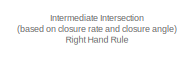
[diagram: root canvas - part 1/25, top center region]
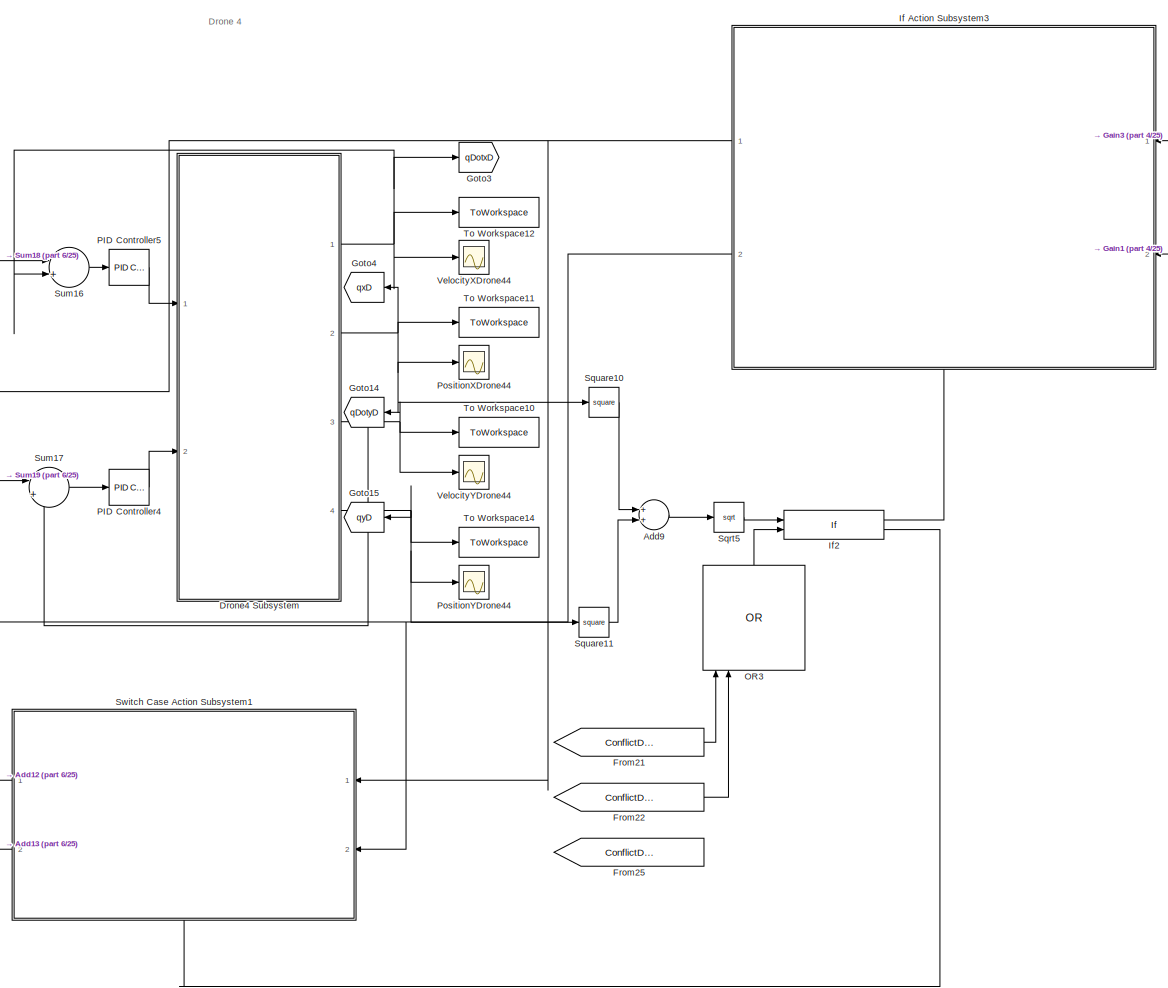
[diagram: root canvas - part 2/25, top center region]
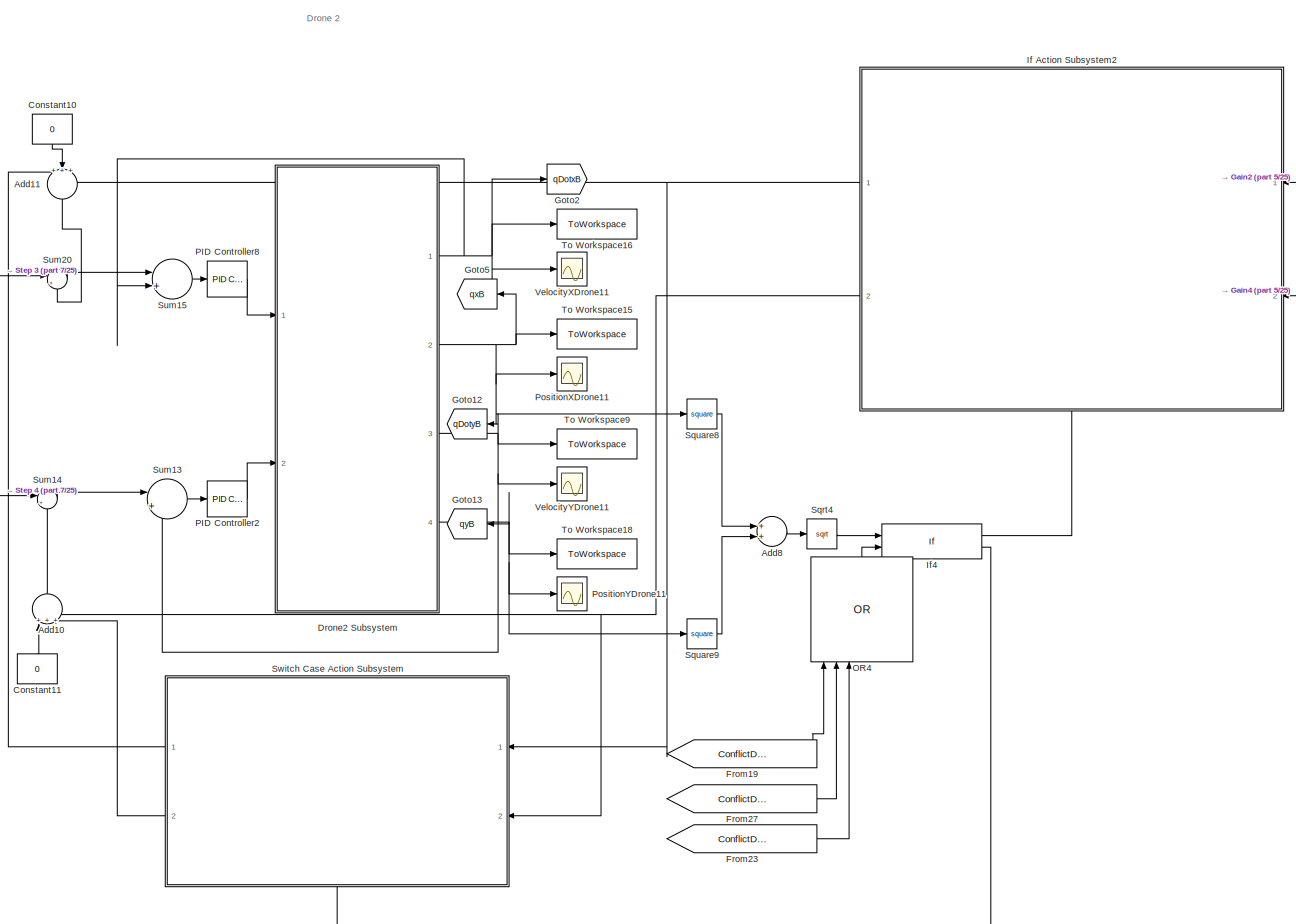
[diagram: root canvas - part 3/25, top center region]
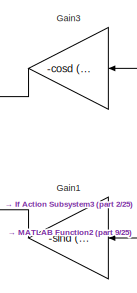
[diagram: root canvas - part 4/25, top center region]
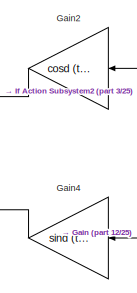
[diagram: root canvas - part 5/25, top center region]
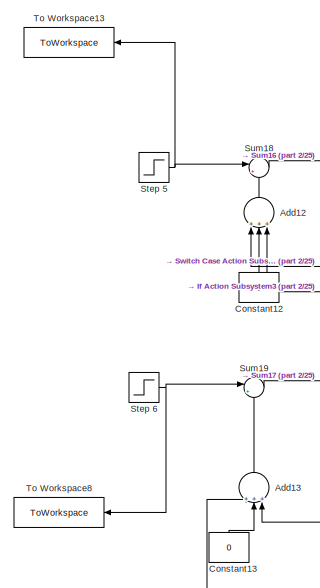
[diagram: root canvas - part 6/25, top center region]
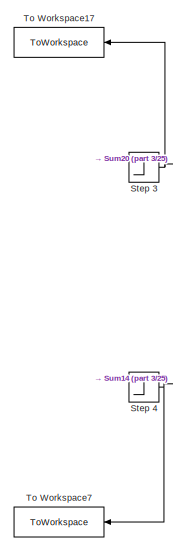
[diagram: root canvas - part 7/25, top left region]
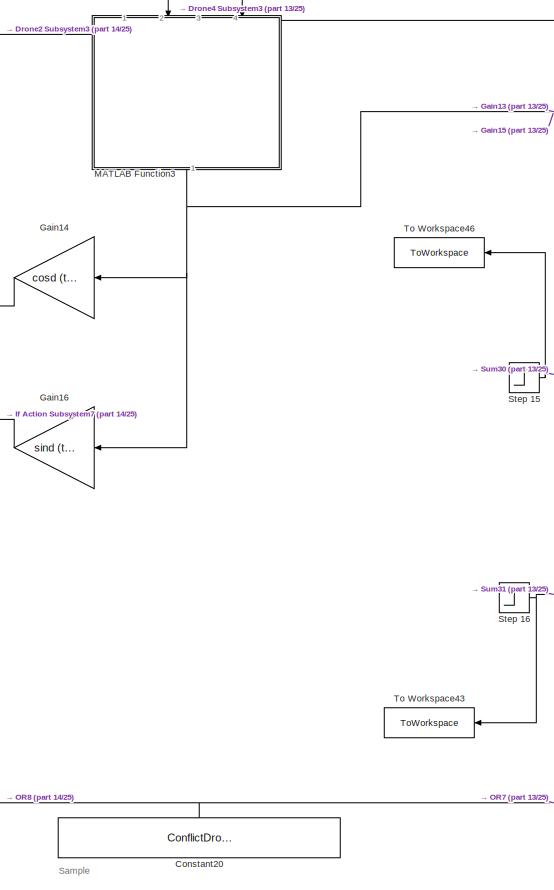
[diagram: root canvas - part 8/25, middle right region]
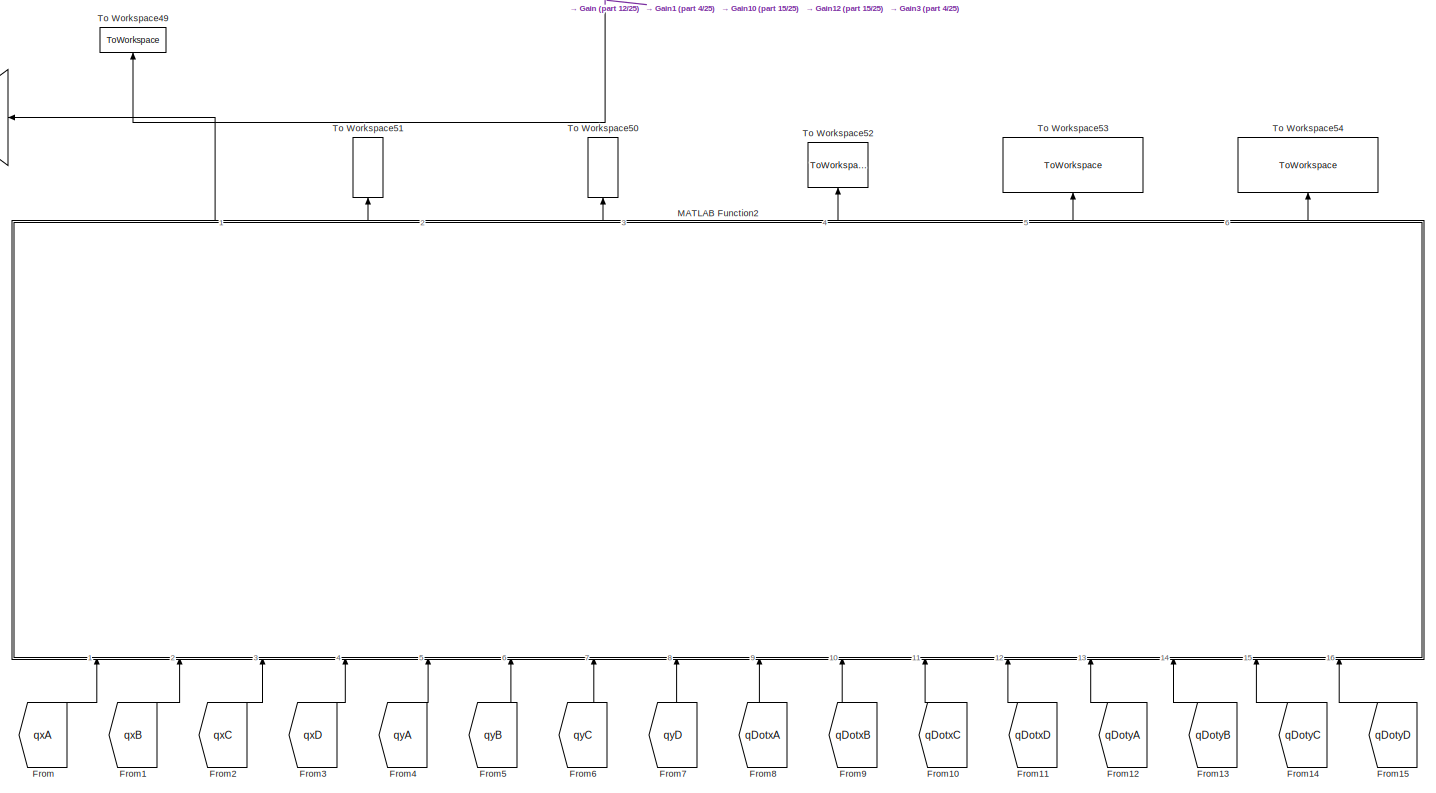
[diagram: root canvas - part 9/25, central region]
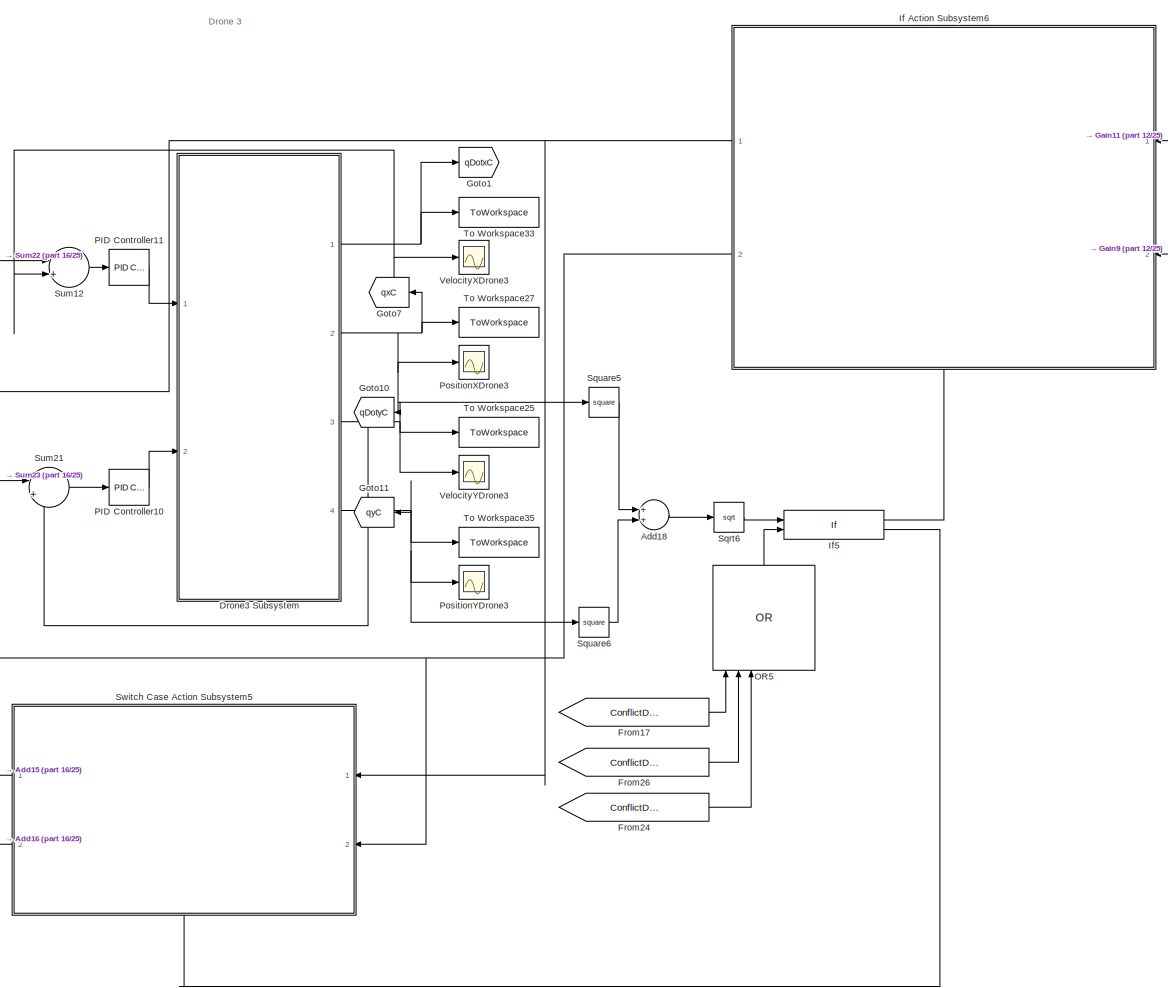
[diagram: root canvas - part 10/25, middle left region]
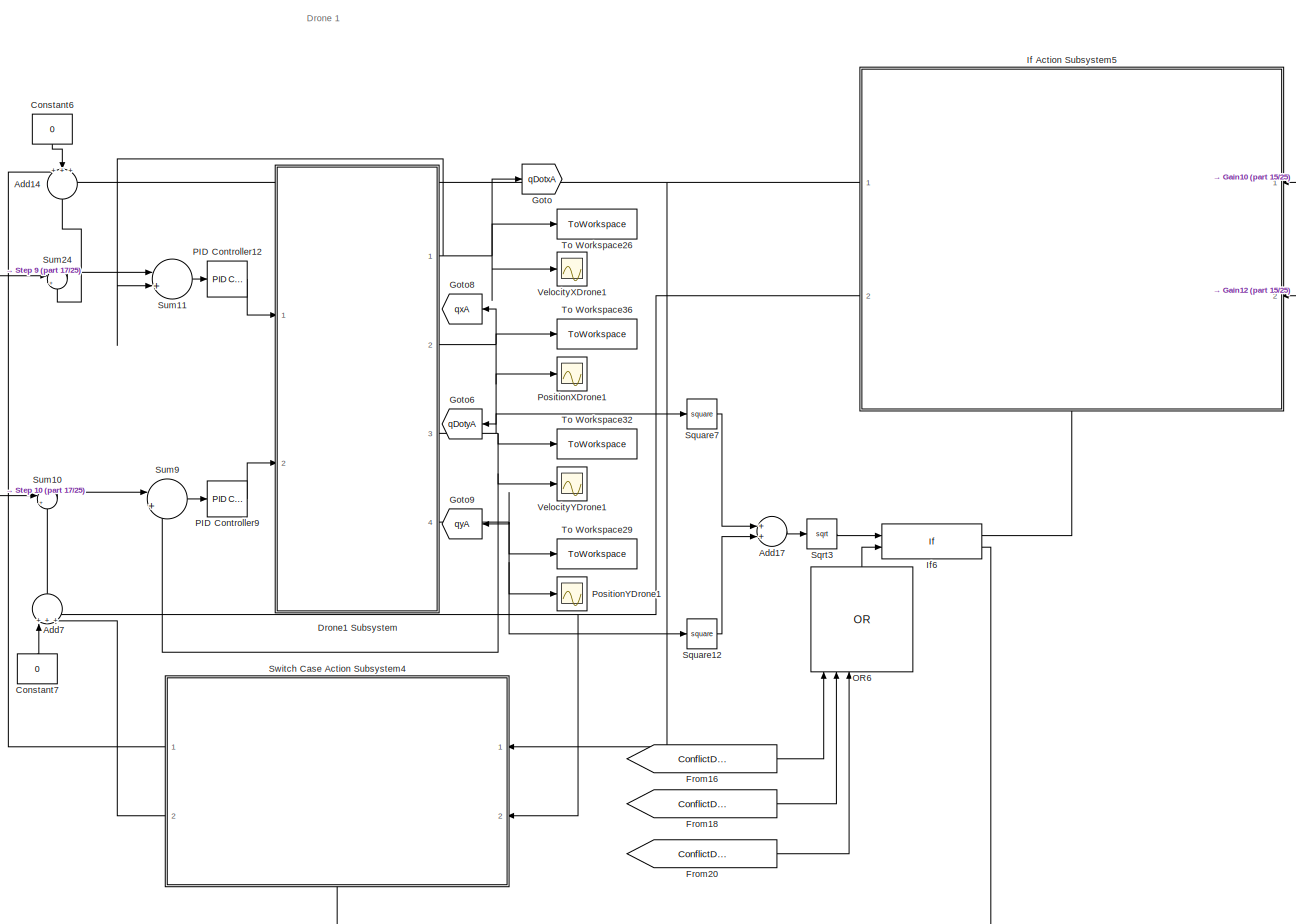
[diagram: root canvas - part 11/25, middle left region]
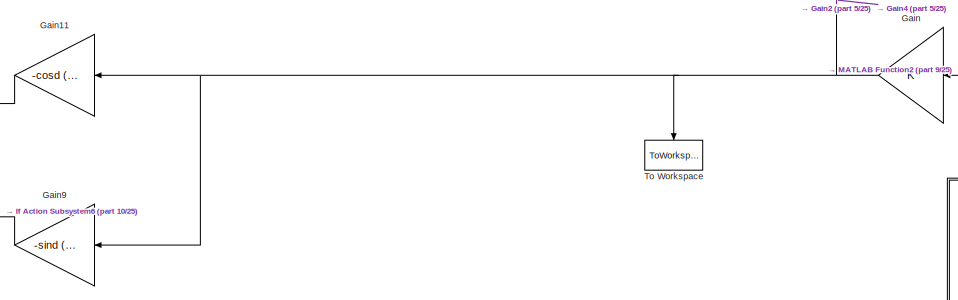
[diagram: root canvas - part 12/25, central region]
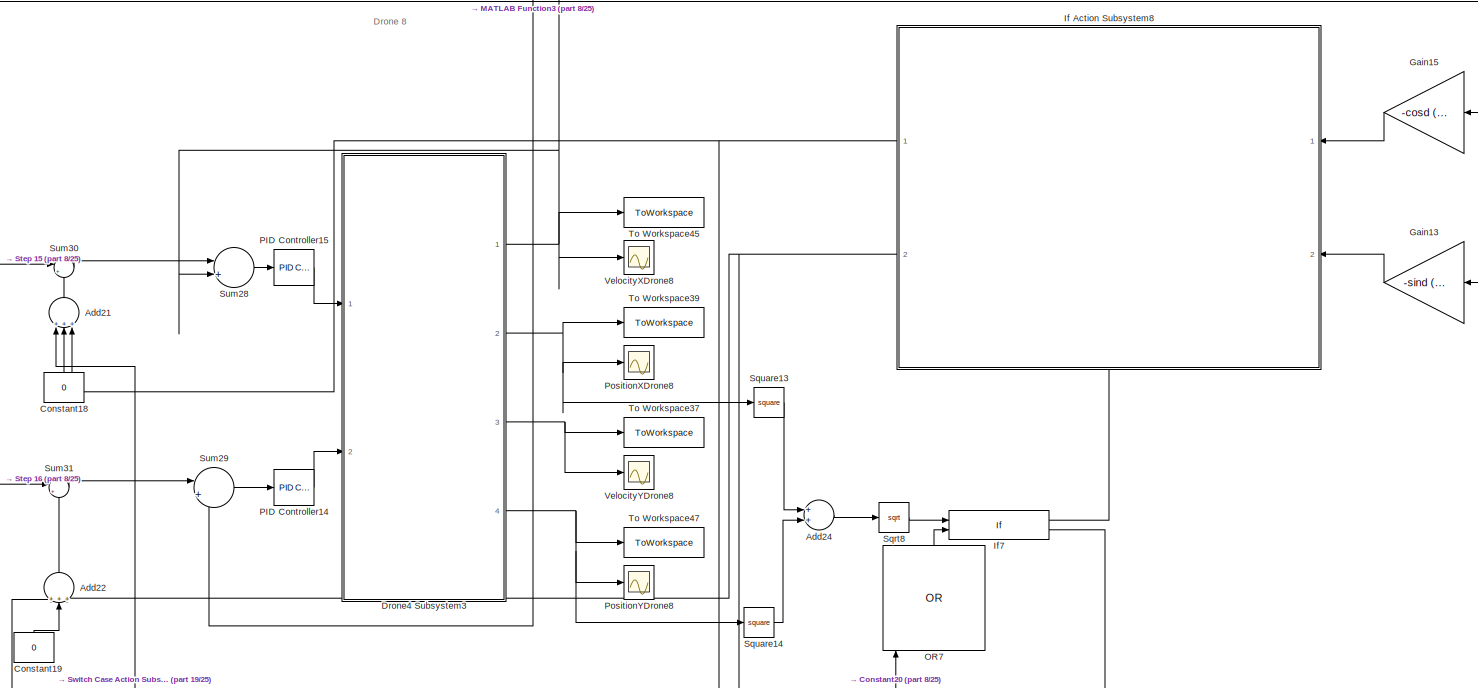
[diagram: root canvas - part 13/25, middle right region]
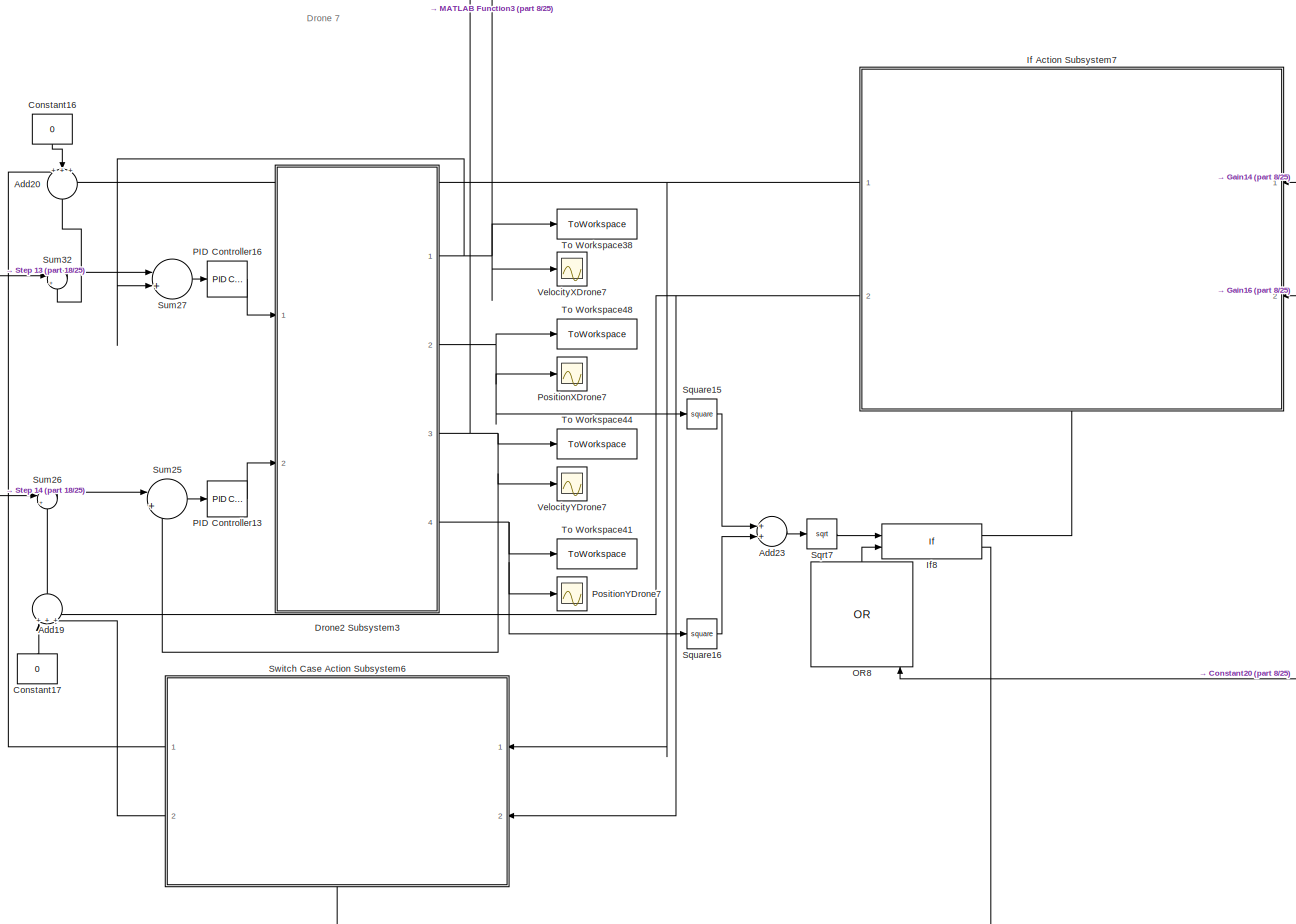
[diagram: root canvas - part 14/25, middle right region]
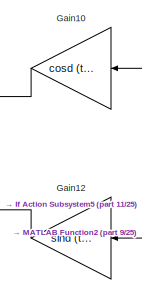
[diagram: root canvas - part 15/25, middle left region]
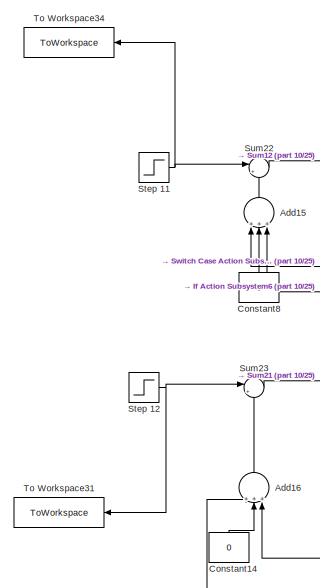
[diagram: root canvas - part 16/25, middle left region]
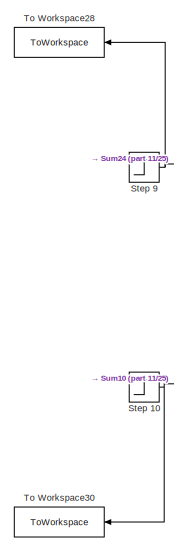
[diagram: root canvas - part 17/25, middle left region]
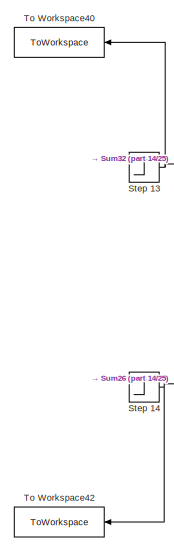
[diagram: root canvas - part 18/25, central region]
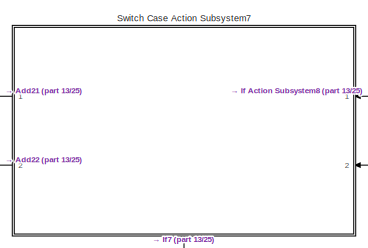
[diagram: root canvas - part 19/25, middle right region]
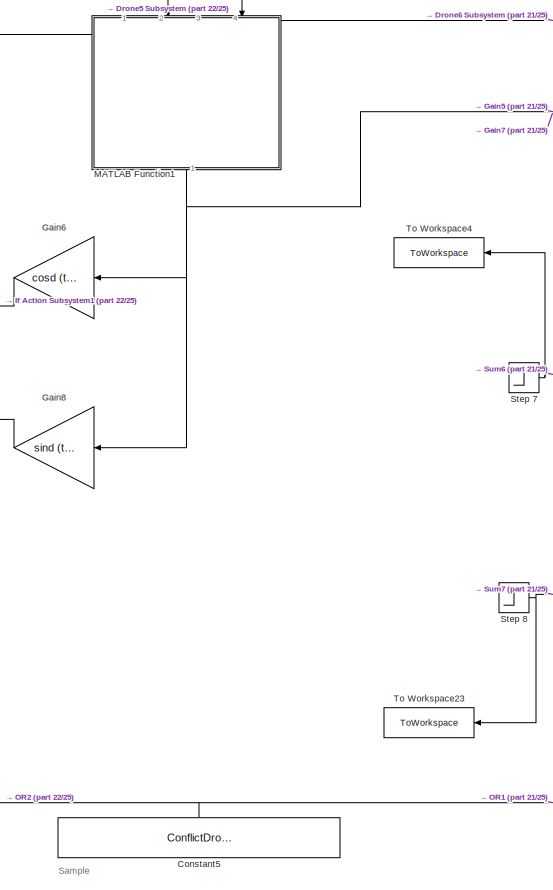
[diagram: root canvas - part 20/25, central region]
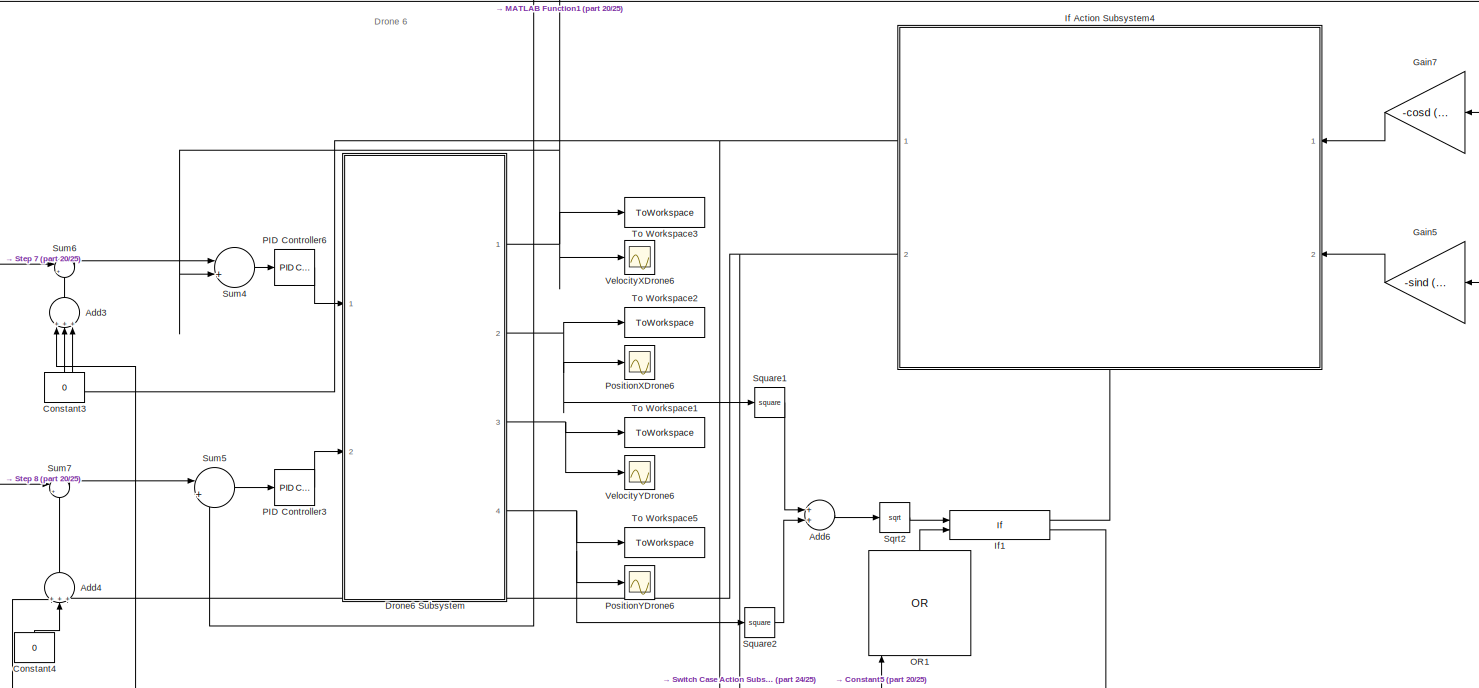
[diagram: root canvas - part 21/25, bottom center region]
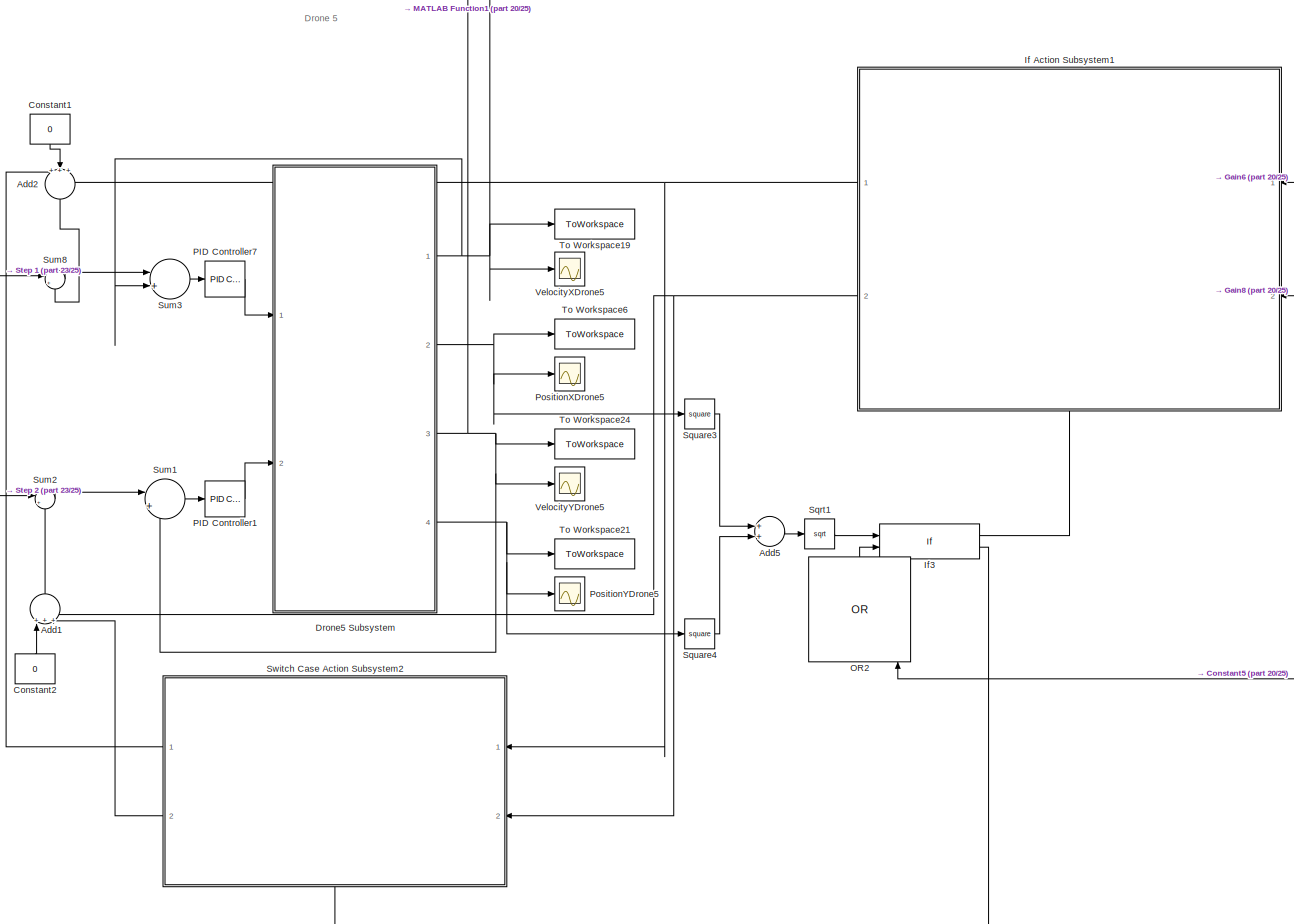
[diagram: root canvas - part 22/25, bottom center region]
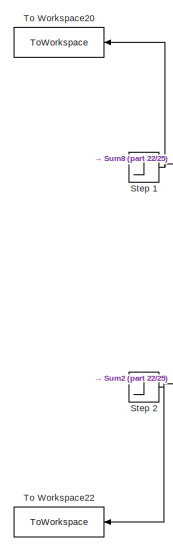
[diagram: root canvas - part 23/25, bottom left region]
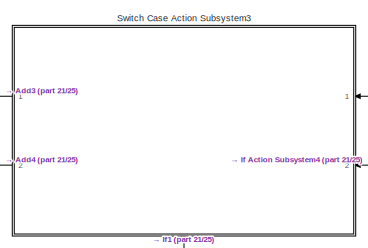
[diagram: root canvas - part 24/25, bottom center region]
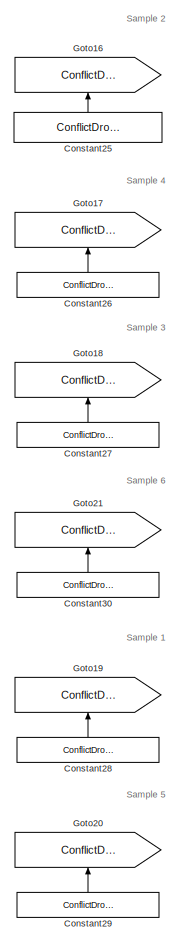
[diagram: root canvas - part 25/25, bottom center region]
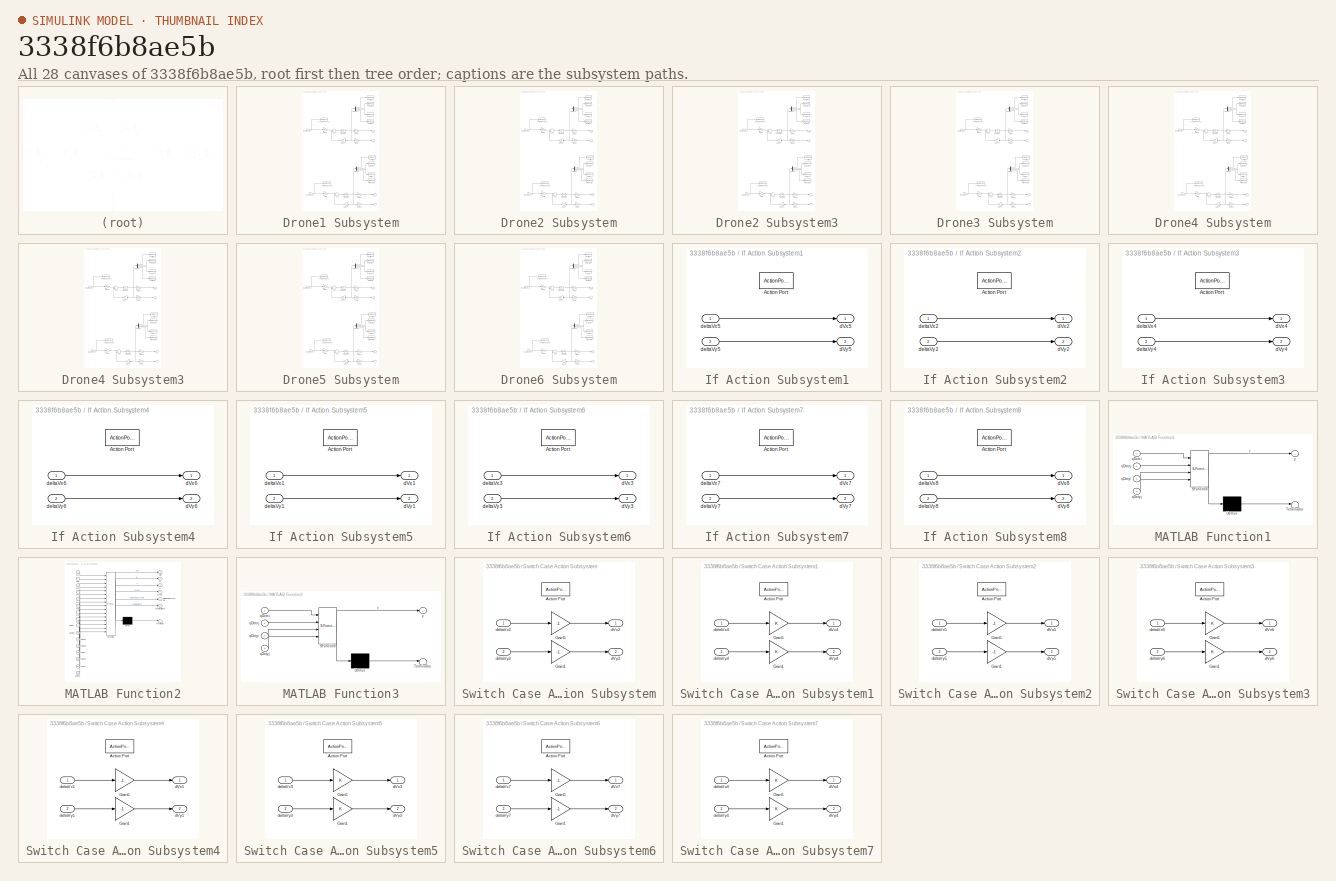
[diagram: thumbnail index - all 28 canvases of the model, root first then tree order]
MODEL slx_3338f6b8ae5b
KIND model
CONFIG AbsTol = auto
CONFIG EnableMultiTasking = off
CONFIG FixedStep = auto
CONFIG MaxStep = auto
CONFIG MinStep = auto
CONFIG RelTol = 1e-3
CONFIG SampleTimeConstraint = Unconstrained
CONFIG Solver = VariableStepAuto
CONFIG SolverName = VariableStepAuto
CONFIG StartTime = 0.0
CONFIG StopTime = 10.0
BLOCK [Sum] Add1
  InputSameDT = off
  Inputs = +++
  OutDataTypeStr = Inherit: Inherit via internal rule
  Ports = [3, 1]
  SaturateOnIntegerOverflow = off
BLOCK [Sum] Add10
  InputSameDT = off
  Inputs = +++
  OutDataTypeStr = Inherit: Inherit via internal rule
  Ports = [3, 1]
  SaturateOnIntegerOverflow = off
BLOCK [Sum] Add11
  InputSameDT = off
  Inputs = +++
  OutDataTypeStr = Inherit: Inherit via internal rule
  Ports = [3, 1]
  SaturateOnIntegerOverflow = off
BLOCK [Sum] Add12
  InputSameDT = off
  Inputs = +++
  OutDataTypeStr = Inherit: Inherit via internal rule
  Ports = [3, 1]
  SaturateOnIntegerOverflow = off
BLOCK [Sum] Add13
  InputSameDT = off
  Inputs = +++
  OutDataTypeStr = Inherit: Inherit via internal rule
  Ports = [3, 1]
  SaturateOnIntegerOverflow = off
BLOCK [Sum] Add14
  InputSameDT = off
  Inputs = +++
  OutDataTypeStr = Inherit: Inherit via internal rule
  Ports = [3, 1]
  SaturateOnIntegerOverflow = off
BLOCK [Sum] Add15
  InputSameDT = off
  Inputs = +++
  OutDataTypeStr = Inherit: Inherit via internal rule
  Ports = [3, 1]
  SaturateOnIntegerOverflow = off
BLOCK [Sum] Add16
  InputSameDT = off
  Inputs = +++
  OutDataTypeStr = Inherit: Inherit via internal rule
  Ports = [3, 1]
  SaturateOnIntegerOverflow = off
BLOCK [Sum] Add17
  InputSameDT = off
  OutDataTypeStr = Inherit: Inherit via internal rule
  Ports = [2, 1]
  SaturateOnIntegerOverflow = off
BLOCK [Sum] Add18
  InputSameDT = off
  OutDataTypeStr = Inherit: Inherit via internal rule
  Ports = [2, 1]
  SaturateOnIntegerOverflow = off
BLOCK [Sum] Add19
  InputSameDT = off
  Inputs = +++
  OutDataTypeStr = Inherit: Inherit via internal rule
  Ports = [3, 1]
  SaturateOnIntegerOverflow = off
BLOCK [Sum] Add2
  InputSameDT = off
  Inputs = +++
  OutDataTypeStr = Inherit: Inherit via internal rule
  Ports = [3, 1]
  SaturateOnIntegerOverflow = off
BLOCK [Sum] Add20
  InputSameDT = off
  Inputs = +++
  OutDataTypeStr = Inherit: Inherit via internal rule
  Ports = [3, 1]
  SaturateOnIntegerOverflow = off
BLOCK [Sum] Add21
  InputSameDT = off
  Inputs = +++
  OutDataTypeStr = Inherit: Inherit via internal rule
  Ports = [3, 1]
  SaturateOnIntegerOverflow = off
BLOCK [Sum] Add22
  InputSameDT = off
  Inputs = +++
  OutDataTypeStr = Inherit: Inherit via internal rule
  Ports = [3, 1]
  SaturateOnIntegerOverflow = off
BLOCK [Sum] Add23
  InputSameDT = off
  OutDataTypeStr = Inherit: Inherit via internal rule
  Ports = [2, 1]
  SaturateOnIntegerOverflow = off
BLOCK [Sum] Add24
  InputSameDT = off
  OutDataTypeStr = Inherit: Inherit via internal rule
  Ports = [2, 1]
  SaturateOnIntegerOverflow = off
BLOCK [Sum] Add3
  InputSameDT = off
  Inputs = +++
  OutDataTypeStr = Inherit: Inherit via internal rule
  Ports = [3, 1]
  SaturateOnIntegerOverflow = off
BLOCK [Sum] Add4
  InputSameDT = off
  Inputs = +++
  OutDataTypeStr = Inherit: Inherit via internal rule
  Ports = [3, 1]
  SaturateOnIntegerOverflow = off
BLOCK [Sum] Add5
  InputSameDT = off
  OutDataTypeStr = Inherit: Inherit via internal rule
  Ports = [2, 1]
  SaturateOnIntegerOverflow = off
BLOCK [Sum] Add6
  InputSameDT = off
  OutDataTypeStr = Inherit: Inherit via internal rule
  Ports = [2, 1]
  SaturateOnIntegerOverflow = off
BLOCK [Sum] Add7
  InputSameDT = off
  Inputs = +++
  OutDataTypeStr = Inherit: Inherit via internal rule
  Ports = [3, 1]
  SaturateOnIntegerOverflow = off
BLOCK [Sum] Add8
  InputSameDT = off
  OutDataTypeStr = Inherit: Inherit via internal rule
  Ports = [2, 1]
  SaturateOnIntegerOverflow = off
BLOCK [Sum] Add9
  InputSameDT = off
  OutDataTypeStr = Inherit: Inherit via internal rule
  Ports = [2, 1]
  SaturateOnIntegerOverflow = off
BLOCK [Constant] Constant1
  Value = 0
BLOCK [Constant] Constant10
  Value = 0
BLOCK [Constant] Constant11
  Value = 0
BLOCK [Constant] Constant12
  Value = 0
BLOCK [Constant] Constant13
  Value = 0
BLOCK [Constant] Constant14
  Value = 0
BLOCK [Constant] Constant16
  Value = 0
BLOCK [Constant] Constant17
  Value = 0
BLOCK [Constant] Constant18
  Value = 0
BLOCK [Constant] Constant19
  Value = 0
BLOCK [Constant] Constant2
  Value = 0
BLOCK [Constant] Constant20
  Value = ConflictDrone7andDrone8
BLOCK [Constant] Constant25
  Value = ConflictDrone1andDrone3
BLOCK [Constant] Constant26
  Value = ConflictDrone1andDrone2
BLOCK [Constant] Constant27
  Value = ConflictDrone1andDrone4
BLOCK [Constant] Constant28
  Value = ConflictDrone2andDrone4
BLOCK [Constant] Constant29
  Value = ConflictDrone3andDrone4
BLOCK [Constant] Constant3
  Value = 0
BLOCK [Constant] Constant30
  Value = ConflictDrone2andDrone3
  VectorParams1D = off
BLOCK [Constant] Constant4
  Value = 0
BLOCK [Constant] Constant5
  Value = ConflictDrone5andDrone6
BLOCK [Constant] Constant6
  Value = 0
BLOCK [Constant] Constant7
  Value = 0
BLOCK [Constant] Constant8
  Value = 0
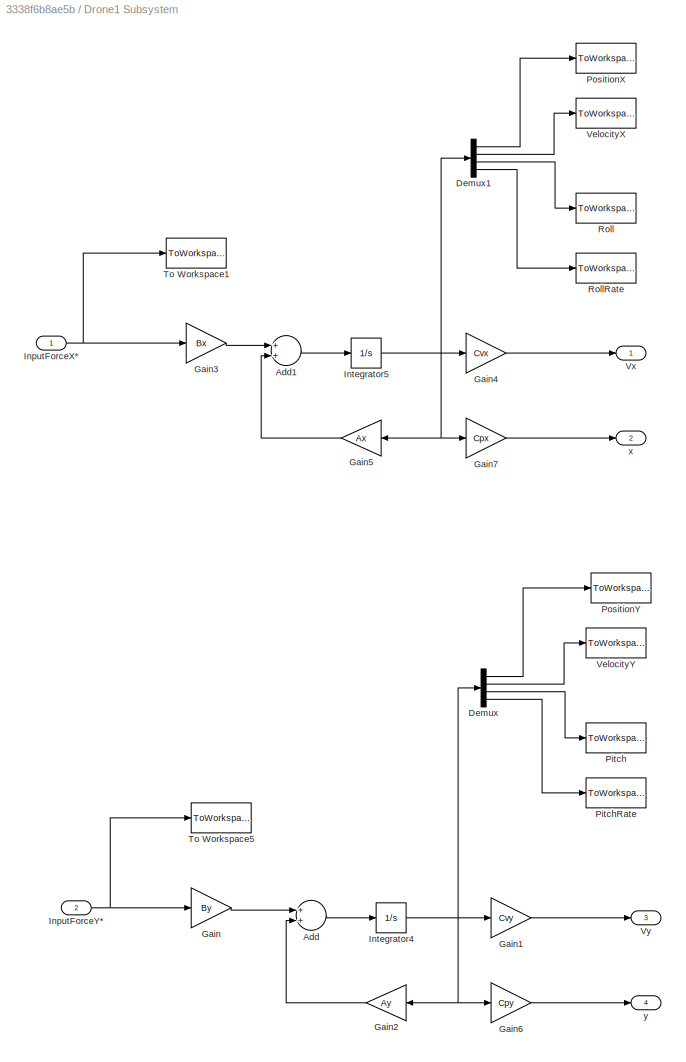
BLOCK [SubSystem] Drone1 Subsystem
  Ports = [2, 4]
  RequestExecContextInheritance = off
BLOCK [Sum] Drone1 Subsystem/Add
  InputSameDT = off
  OutDataTypeStr = Inherit: Inherit via internal rule
  Ports = [2, 1]
  SaturateOnIntegerOverflow = off
BLOCK [Sum] Drone1 Subsystem/Add1
  InputSameDT = off
  OutDataTypeStr = Inherit: Inherit via internal rule
  Ports = [2, 1]
  SaturateOnIntegerOverflow = off
BLOCK [Demux] Drone1 Subsystem/Demux
  DisplayOption = bar
  Ports = [1, 4]
BLOCK [Demux] Drone1 Subsystem/Demux1
  DisplayOption = bar
  Ports = [1, 4]
BLOCK [Gain] Drone1 Subsystem/Gain
  Gain = By
  Multiplication = Matrix(K*u)
  OutDataTypeStr = Inherit: Inherit via internal rule
  ParamDataTypeStr = Inherit: Inherit via internal rule
  SaturateOnIntegerOverflow = off
BLOCK [Gain] Drone1 Subsystem/Gain1
  Gain = Cvy
  Multiplication = Matrix(K*u)
  OutDataTypeStr = Inherit: Inherit via internal rule
  ParamDataTypeStr = Inherit: Inherit via internal rule
  SaturateOnIntegerOverflow = off
BLOCK [Gain] Drone1 Subsystem/Gain2
  Gain = Ay
  Multiplication = Matrix(K*u)
  OutDataTypeStr = Inherit: Inherit via internal rule
  ParamDataTypeStr = Inherit: Inherit via internal rule
  SaturateOnIntegerOverflow = off
BLOCK [Gain] Drone1 Subsystem/Gain3
  Gain = Bx
  Multiplication = Matrix(K*u)
  OutDataTypeStr = Inherit: Inherit via internal rule
  ParamDataTypeStr = Inherit: Inherit via internal rule
  SaturateOnIntegerOverflow = off
BLOCK [Gain] Drone1 Subsystem/Gain4
  Gain = Cvx
  Multiplication = Matrix(K*u)
  OutDataTypeStr = Inherit: Inherit via internal rule
  ParamDataTypeStr = Inherit: Inherit via internal rule
  SaturateOnIntegerOverflow = off
BLOCK [Gain] Drone1 Subsystem/Gain5
  Gain = Ax
  Multiplication = Matrix(K*u)
  OutDataTypeStr = Inherit: Inherit via internal rule
  ParamDataTypeStr = Inherit: Inherit via internal rule
  SaturateOnIntegerOverflow = off
BLOCK [Gain] Drone1 Subsystem/Gain6
  Gain = Cpy
  Multiplication = Matrix(K*u)
  OutDataTypeStr = Inherit: Inherit via internal rule
  ParamDataTypeStr = Inherit: Inherit via internal rule
  SaturateOnIntegerOverflow = off
BLOCK [Gain] Drone1 Subsystem/Gain7
  Gain = Cpx
  Multiplication = Matrix(K*u)
  OutDataTypeStr = Inherit: Inherit via internal rule
  ParamDataTypeStr = Inherit: Inherit via internal rule
  SaturateOnIntegerOverflow = off
BLOCK [Inport] Drone1 Subsystem/InputForceX*
  IconDisplay = Port number
BLOCK [Inport] Drone1 Subsystem/InputForceY* 
  IconDisplay = Port number
  Port = 2
BLOCK [Integrator] Drone1 Subsystem/Integrator4
  InitialCondition = Y10
  Ports = [1, 1]
BLOCK [Integrator] Drone1 Subsystem/Integrator5
  InitialCondition = X10
  Ports = [1, 1]
BLOCK [ToWorkspace] Drone1 Subsystem/Pitch
  FixptAsFi = on
  MaxDataPoints = inf
  Ports = [1]
  SampleTime = -1
  Save2DSignal = 3-D array (concatenate along third dimension)
  VariableName = Theta1
BLOCK [ToWorkspace] Drone1 Subsystem/PitchRate
  FixptAsFi = on
  MaxDataPoints = inf
  Ports = [1]
  SampleTime = -1
  Save2DSignal = 3-D array (concatenate along third dimension)
  VariableName = ThetaDot1
BLOCK [ToWorkspace] Drone1 Subsystem/PositionX
  FixptAsFi = on
  MaxDataPoints = inf
  Ports = [1]
  SampleTime = -1
  Save2DSignal = 3-D array (concatenate along third dimension)
  VariableName = x1
BLOCK [ToWorkspace] Drone1 Subsystem/PositionY
  FixptAsFi = on
  MaxDataPoints = inf
  Ports = [1]
  SampleTime = -1
  Save2DSignal = 3-D array (concatenate along third dimension)
  VariableName = y1
BLOCK [ToWorkspace] Drone1 Subsystem/Roll
  FixptAsFi = on
  MaxDataPoints = inf
  Ports = [1]
  SampleTime = -1
  Save2DSignal = 3-D array (concatenate along third dimension)
  VariableName = Psi1
BLOCK [ToWorkspace] Drone1 Subsystem/RollRate
  FixptAsFi = on
  MaxDataPoints = inf
  Ports = [1]
  SampleTime = -1
  Save2DSignal = 3-D array (concatenate along third dimension)
  VariableName = PsiDot1
BLOCK [ToWorkspace] Drone1 Subsystem/To Workspace1
  FixptAsFi = on
  MaxDataPoints = inf
  Ports = [1]
  SampleTime = -1
  Save2DSignal = 3-D array (concatenate along third dimension)
  VariableName = RollReference1
BLOCK [ToWorkspace] Drone1 Subsystem/To Workspace5
  FixptAsFi = on
  MaxDataPoints = inf
  Ports = [1]
  SampleTime = -1
  Save2DSignal = 3-D array (concatenate along third dimension)
  VariableName = PitchReference1
BLOCK [ToWorkspace] Drone1 Subsystem/VelocityX
  FixptAsFi = on
  MaxDataPoints = inf
  Ports = [1]
  SampleTime = -1
  Save2DSignal = 3-D array (concatenate along third dimension)
  VariableName = vx1
BLOCK [ToWorkspace] Drone1 Subsystem/VelocityY
  FixptAsFi = on
  MaxDataPoints = inf
  Ports = [1]
  SampleTime = -1
  Save2DSignal = 3-D array (concatenate along third dimension)
  VariableName = vy1
BLOCK [Outport] Drone1 Subsystem/Vx
  IconDisplay = Port number
BLOCK [Outport] Drone1 Subsystem/Vy
  IconDisplay = Port number
  Port = 3
BLOCK [Outport] Drone1 Subsystem/x
  IconDisplay = Port number
  Port = 2
BLOCK [Outport] Drone1 Subsystem/y
  IconDisplay = Port number
  Port = 4
BLOCK [SubSystem] Drone2 Subsystem
  Ports = [2, 4]
  RequestExecContextInheritance = off
BLOCK [Sum] Drone2 Subsystem/Add
  InputSameDT = off
  OutDataTypeStr = Inherit: Inherit via internal rule
  Ports = [2, 1]
  SaturateOnIntegerOverflow = off
BLOCK [Sum] Drone2 Subsystem/Add1
  InputSameDT = off
  OutDataTypeStr = Inherit: Inherit via internal rule
  Ports = [2, 1]
  SaturateOnIntegerOverflow = off
BLOCK [Demux] Drone2 Subsystem/Demux
  DisplayOption = bar
  Ports = [1, 4]
BLOCK [Demux] Drone2 Subsystem/Demux1
  DisplayOption = bar
  Ports = [1, 4]
BLOCK [Gain] Drone2 Subsystem/Gain
  Gain = By
  Multiplication = Matrix(K*u)
  OutDataTypeStr = Inherit: Inherit via internal rule
  ParamDataTypeStr = Inherit: Inherit via internal rule
  SaturateOnIntegerOverflow = off
BLOCK [Gain] Drone2 Subsystem/Gain1
  Gain = Cvy
  Multiplication = Matrix(K*u)
  OutDataTypeStr = Inherit: Inherit via internal rule
  ParamDataTypeStr = Inherit: Inherit via internal rule
  SaturateOnIntegerOverflow = off
BLOCK [Gain] Drone2 Subsystem/Gain2
  Gain = Ay
  Multiplication = Matrix(K*u)
  OutDataTypeStr = Inherit: Inherit via internal rule
  ParamDataTypeStr = Inherit: Inherit via internal rule
  SaturateOnIntegerOverflow = off
BLOCK [Gain] Drone2 Subsystem/Gain3
  Gain = Bx
  Multiplication = Matrix(K*u)
  OutDataTypeStr = Inherit: Inherit via internal rule
  ParamDataTypeStr = Inherit: Inherit via internal rule
  SaturateOnIntegerOverflow = off
BLOCK [Gain] Drone2 Subsystem/Gain4
  Gain = Cvx
  Multiplication = Matrix(K*u)
  OutDataTypeStr = Inherit: Inherit via internal rule
  ParamDataTypeStr = Inherit: Inherit via internal rule
  SaturateOnIntegerOverflow = off
BLOCK [Gain] Drone2 Subsystem/Gain5
  Gain = Ax
  Multiplication = Matrix(K*u)
  OutDataTypeStr = Inherit: Inherit via internal rule
  ParamDataTypeStr = Inherit: Inherit via internal rule
  SaturateOnIntegerOverflow = off
BLOCK [Gain] Drone2 Subsystem/Gain6
  Gain = Cpy
  Multiplication = Matrix(K*u)
  OutDataTypeStr = Inherit: Inherit via internal rule
  ParamDataTypeStr = Inherit: Inherit via internal rule
  SaturateOnIntegerOverflow = off
BLOCK [Gain] Drone2 Subsystem/Gain7
  Gain = Cpx
  Multiplication = Matrix(K*u)
  OutDataTypeStr = Inherit: Inherit via internal rule
  ParamDataTypeStr = Inherit: Inherit via internal rule
  SaturateOnIntegerOverflow = off
BLOCK [Inport] Drone2 Subsystem/InputForceX*
  IconDisplay = Port number
BLOCK [Inport] Drone2 Subsystem/InputForceY* 
  IconDisplay = Port number
  Port = 2
BLOCK [Integrator] Drone2 Subsystem/Integrator4
  InitialCondition = Y20
  Ports = [1, 1]
BLOCK [Integrator] Drone2 Subsystem/Integrator5
  InitialCondition = X20
  Ports = [1, 1]
BLOCK [ToWorkspace] Drone2 Subsystem/Pitch
  FixptAsFi = on
  MaxDataPoints = inf
  Ports = [1]
  SampleTime = -1
  Save2DSignal = 3-D array (concatenate along third dimension)
  VariableName = Theta2
BLOCK [ToWorkspace] Drone2 Subsystem/PitchRate
  FixptAsFi = on
  MaxDataPoints = inf
  Ports = [1]
  SampleTime = -1
  Save2DSignal = 3-D array (concatenate along third dimension)
  VariableName = ThetaDot2
BLOCK [ToWorkspace] Drone2 Subsystem/PositionX
  FixptAsFi = on
  MaxDataPoints = inf
  Ports = [1]
  SampleTime = -1
  Save2DSignal = 3-D array (concatenate along third dimension)
  VariableName = x2
BLOCK [ToWorkspace] Drone2 Subsystem/PositionY
  FixptAsFi = on
  MaxDataPoints = inf
  Ports = [1]
  SampleTime = -1
  Save2DSignal = 3-D array (concatenate along third dimension)
  VariableName = y2
BLOCK [ToWorkspace] Drone2 Subsystem/Roll
  FixptAsFi = on
  MaxDataPoints = inf
  Ports = [1]
  SampleTime = -1
  Save2DSignal = 3-D array (concatenate along third dimension)
  VariableName = Psi2
BLOCK [ToWorkspace] Drone2 Subsystem/RollRate
  FixptAsFi = on
  MaxDataPoints = inf
  Ports = [1]
  SampleTime = -1
  Save2DSignal = 3-D array (concatenate along third dimension)
  VariableName = PsiDot2
BLOCK [ToWorkspace] Drone2 Subsystem/To Workspace1
  FixptAsFi = on
  MaxDataPoints = inf
  Ports = [1]
  SampleTime = -1
  Save2DSignal = 3-D array (concatenate along third dimension)
  VariableName = RollReference2
BLOCK [ToWorkspace] Drone2 Subsystem/To Workspace5
  FixptAsFi = on
  MaxDataPoints = inf
  Ports = [1]
  SampleTime = -1
  Save2DSignal = 3-D array (concatenate along third dimension)
  VariableName = PitchReference2
BLOCK [ToWorkspace] Drone2 Subsystem/VelocityX
  FixptAsFi = on
  MaxDataPoints = inf
  Ports = [1]
  SampleTime = -1
  Save2DSignal = 3-D array (concatenate along third dimension)
  VariableName = vx2
BLOCK [ToWorkspace] Drone2 Subsystem/VelocityY
  FixptAsFi = on
  MaxDataPoints = inf
  Ports = [1]
  SampleTime = -1
  Save2DSignal = 3-D array (concatenate along third dimension)
  VariableName = vy2
BLOCK [Outport] Drone2 Subsystem/Vx
  IconDisplay = Port number
BLOCK [Outport] Drone2 Subsystem/Vy
  IconDisplay = Port number
  Port = 3
BLOCK [Outport] Drone2 Subsystem/x
  IconDisplay = Port number
  Port = 2
BLOCK [Outport] Drone2 Subsystem/y
  IconDisplay = Port number
  Port = 4
BLOCK [SubSystem] Drone2 Subsystem3
  Ports = [2, 4]
  RequestExecContextInheritance = off
BLOCK [Sum] Drone2 Subsystem3/Add
  InputSameDT = off
  OutDataTypeStr = Inherit: Inherit via internal rule
  Ports = [2, 1]
  SaturateOnIntegerOverflow = off
BLOCK [Sum] Drone2 Subsystem3/Add1
  InputSameDT = off
  OutDataTypeStr = Inherit: Inherit via internal rule
  Ports = [2, 1]
  SaturateOnIntegerOverflow = off
BLOCK [Demux] Drone2 Subsystem3/Demux
  DisplayOption = bar
  Ports = [1, 4]
BLOCK [Demux] Drone2 Subsystem3/Demux1
  DisplayOption = bar
  Ports = [1, 4]
BLOCK [Gain] Drone2 Subsystem3/Gain
  Gain = By
  Multiplication = Matrix(K*u)
  OutDataTypeStr = Inherit: Inherit via internal rule
  ParamDataTypeStr = Inherit: Inherit via internal rule
  SaturateOnIntegerOverflow = off
BLOCK [Gain] Drone2 Subsystem3/Gain1
  Gain = Cvy
  Multiplication = Matrix(K*u)
  OutDataTypeStr = Inherit: Inherit via internal rule
  ParamDataTypeStr = Inherit: Inherit via internal rule
  SaturateOnIntegerOverflow = off
BLOCK [Gain] Drone2 Subsystem3/Gain2
  Gain = Ay
  Multiplication = Matrix(K*u)
  OutDataTypeStr = Inherit: Inherit via internal rule
  ParamDataTypeStr = Inherit: Inherit via internal rule
  SaturateOnIntegerOverflow = off
BLOCK [Gain] Drone2 Subsystem3/Gain3
  Gain = Bx
  Multiplication = Matrix(K*u)
  OutDataTypeStr = Inherit: Inherit via internal rule
  ParamDataTypeStr = Inherit: Inherit via internal rule
  SaturateOnIntegerOverflow = off
BLOCK [Gain] Drone2 Subsystem3/Gain4
  Gain = Cvx
  Multiplication = Matrix(K*u)
  OutDataTypeStr = Inherit: Inherit via internal rule
  ParamDataTypeStr = Inherit: Inherit via internal rule
  SaturateOnIntegerOverflow = off
BLOCK [Gain] Drone2 Subsystem3/Gain5
  Gain = Ax
  Multiplication = Matrix(K*u)
  OutDataTypeStr = Inherit: Inherit via internal rule
  ParamDataTypeStr = Inherit: Inherit via internal rule
  SaturateOnIntegerOverflow = off
BLOCK [Gain] Drone2 Subsystem3/Gain6
  Gain = Cpy
  Multiplication = Matrix(K*u)
  OutDataTypeStr = Inherit: Inherit via internal rule
  ParamDataTypeStr = Inherit: Inherit via internal rule
  SaturateOnIntegerOverflow = off
BLOCK [Gain] Drone2 Subsystem3/Gain7
  Gain = Cpx
  Multiplication = Matrix(K*u)
  OutDataTypeStr = Inherit: Inherit via internal rule
  ParamDataTypeStr = Inherit: Inherit via internal rule
  SaturateOnIntegerOverflow = off
BLOCK [Inport] Drone2 Subsystem3/InputForceX*
  IconDisplay = Port number
BLOCK [Inport] Drone2 Subsystem3/InputForceY* 
  IconDisplay = Port number
  Port = 2
BLOCK [Integrator] Drone2 Subsystem3/Integrator4
  InitialCondition = Y70
  Ports = [1, 1]
BLOCK [Integrator] Drone2 Subsystem3/Integrator5
  InitialCondition = X70
  Ports = [1, 1]
BLOCK [ToWorkspace] Drone2 Subsystem3/Pitch
  FixptAsFi = on
  MaxDataPoints = inf
  Ports = [1]
  SampleTime = -1
  Save2DSignal = 3-D array (concatenate along third dimension)
  VariableName = Theta2
BLOCK [ToWorkspace] Drone2 Subsystem3/PitchRate
  FixptAsFi = on
  MaxDataPoints = inf
  Ports = [1]
  SampleTime = -1
  Save2DSignal = 3-D array (concatenate along third dimension)
  VariableName = ThetaDot2
BLOCK [ToWorkspace] Drone2 Subsystem3/PositionX
  FixptAsFi = on
  MaxDataPoints = inf
  Ports = [1]
  SampleTime = -1
  Save2DSignal = 3-D array (concatenate along third dimension)
  VariableName = x2
BLOCK [ToWorkspace] Drone2 Subsystem3/PositionY
  FixptAsFi = on
  MaxDataPoints = inf
  Ports = [1]
  SampleTime = -1
  Save2DSignal = 3-D array (concatenate along third dimension)
  VariableName = y2
BLOCK [ToWorkspace] Drone2 Subsystem3/Roll
  FixptAsFi = on
  MaxDataPoints = inf
  Ports = [1]
  SampleTime = -1
  Save2DSignal = 3-D array (concatenate along third dimension)
  VariableName = Psi2
BLOCK [ToWorkspace] Drone2 Subsystem3/RollRate
  FixptAsFi = on
  MaxDataPoints = inf
  Ports = [1]
  SampleTime = -1
  Save2DSignal = 3-D array (concatenate along third dimension)
  VariableName = PsiDot2
BLOCK [ToWorkspace] Drone2 Subsystem3/To Workspace1
  FixptAsFi = on
  MaxDataPoints = inf
  Ports = [1]
  SampleTime = -1
  Save2DSignal = 3-D array (concatenate along third dimension)
  VariableName = RollReference2
BLOCK [ToWorkspace] Drone2 Subsystem3/To Workspace5
  FixptAsFi = on
  MaxDataPoints = inf
  Ports = [1]
  SampleTime = -1
  Save2DSignal = 3-D array (concatenate along third dimension)
  VariableName = PitchReference2
BLOCK [ToWorkspace] Drone2 Subsystem3/VelocityX
  FixptAsFi = on
  MaxDataPoints = inf
  Ports = [1]
  SampleTime = -1
  Save2DSignal = 3-D array (concatenate along third dimension)
  VariableName = vx2
BLOCK [ToWorkspace] Drone2 Subsystem3/VelocityY
  FixptAsFi = on
  MaxDataPoints = inf
  Ports = [1]
  SampleTime = -1
  Save2DSignal = 3-D array (concatenate along third dimension)
  VariableName = vy2
BLOCK [Outport] Drone2 Subsystem3/Vx
  IconDisplay = Port number
BLOCK [Outport] Drone2 Subsystem3/Vy
  IconDisplay = Port number
  Port = 3
BLOCK [Outport] Drone2 Subsystem3/x
  IconDisplay = Port number
  Port = 2
BLOCK [Outport] Drone2 Subsystem3/y
  IconDisplay = Port number
  Port = 4
BLOCK [SubSystem] Drone3 Subsystem
  Ports = [2, 4]
  RequestExecContextInheritance = off
BLOCK [Sum] Drone3 Subsystem/Add
  InputSameDT = off
  OutDataTypeStr = Inherit: Inherit via internal rule
  Ports = [2, 1]
  SaturateOnIntegerOverflow = off
BLOCK [Sum] Drone3 Subsystem/Add1
  InputSameDT = off
  OutDataTypeStr = Inherit: Inherit via internal rule
  Ports = [2, 1]
  SaturateOnIntegerOverflow = off
BLOCK [Demux] Drone3 Subsystem/Demux
  DisplayOption = bar
  Ports = [1, 4]
BLOCK [Demux] Drone3 Subsystem/Demux1
  DisplayOption = bar
  Ports = [1, 4]
BLOCK [Gain] Drone3 Subsystem/Gain
  Gain = By
  Multiplication = Matrix(K*u)
  OutDataTypeStr = Inherit: Inherit via internal rule
  ParamDataTypeStr = Inherit: Inherit via internal rule
  SaturateOnIntegerOverflow = off
BLOCK [Gain] Drone3 Subsystem/Gain1
  Gain = Cvy
  Multiplication = Matrix(K*u)
  OutDataTypeStr = Inherit: Inherit via internal rule
  ParamDataTypeStr = Inherit: Inherit via internal rule
  SaturateOnIntegerOverflow = off
BLOCK [Gain] Drone3 Subsystem/Gain2
  Gain = Ay
  Multiplication = Matrix(K*u)
  OutDataTypeStr = Inherit: Inherit via internal rule
  ParamDataTypeStr = Inherit: Inherit via internal rule
  SaturateOnIntegerOverflow = off
BLOCK [Gain] Drone3 Subsystem/Gain3
  Gain = Bx
  Multiplication = Matrix(K*u)
  OutDataTypeStr = Inherit: Inherit via internal rule
  ParamDataTypeStr = Inherit: Inherit via internal rule
  SaturateOnIntegerOverflow = off
BLOCK [Gain] Drone3 Subsystem/Gain4
  Gain = Cvx
  Multiplication = Matrix(K*u)
  OutDataTypeStr = Inherit: Inherit via internal rule
  ParamDataTypeStr = Inherit: Inherit via internal rule
  SaturateOnIntegerOverflow = off
BLOCK [Gain] Drone3 Subsystem/Gain5
  Gain = Ax
  Multiplication = Matrix(K*u)
  OutDataTypeStr = Inherit: Inherit via internal rule
  ParamDataTypeStr = Inherit: Inherit via internal rule
  SaturateOnIntegerOverflow = off
BLOCK [Gain] Drone3 Subsystem/Gain6
  Gain = Cpy
  Multiplication = Matrix(K*u)
  OutDataTypeStr = Inherit: Inherit via internal rule
  ParamDataTypeStr = Inherit: Inherit via internal rule
  SaturateOnIntegerOverflow = off
BLOCK [Gain] Drone3 Subsystem/Gain7
  Gain = Cpx
  Multiplication = Matrix(K*u)
  OutDataTypeStr = Inherit: Inherit via internal rule
  ParamDataTypeStr = Inherit: Inherit via internal rule
  SaturateOnIntegerOverflow = off
BLOCK [Inport] Drone3 Subsystem/InputForceX*
  IconDisplay = Port number
BLOCK [Inport] Drone3 Subsystem/InputForceY* 
  IconDisplay = Port number
  Port = 2
BLOCK [Integrator] Drone3 Subsystem/Integrator4
  InitialCondition = Y30
  Ports = [1, 1]
BLOCK [Integrator] Drone3 Subsystem/Integrator5
  InitialCondition = X30
  Ports = [1, 1]
BLOCK [ToWorkspace] Drone3 Subsystem/Pitch
  FixptAsFi = on
  MaxDataPoints = inf
  Ports = [1]
  SampleTime = -1
  Save2DSignal = 3-D array (concatenate along third dimension)
  VariableName = Theta3
BLOCK [ToWorkspace] Drone3 Subsystem/PitchRate
  FixptAsFi = on
  MaxDataPoints = inf
  Ports = [1]
  SampleTime = -1
  Save2DSignal = 3-D array (concatenate along third dimension)
  VariableName = ThetaDot3
BLOCK [ToWorkspace] Drone3 Subsystem/PositionX
  FixptAsFi = on
  MaxDataPoints = inf
  Ports = [1]
  SampleTime = -1
  Save2DSignal = 3-D array (concatenate along third dimension)
  VariableName = x3
BLOCK [ToWorkspace] Drone3 Subsystem/PositionY
  FixptAsFi = on
  MaxDataPoints = inf
  Ports = [1]
  SampleTime = -1
  Save2DSignal = 3-D array (concatenate along third dimension)
  VariableName = y3
BLOCK [ToWorkspace] Drone3 Subsystem/Roll
  FixptAsFi = on
  MaxDataPoints = inf
  Ports = [1]
  SampleTime = -1
  Save2DSignal = 3-D array (concatenate along third dimension)
  VariableName = Psi3
BLOCK [ToWorkspace] Drone3 Subsystem/RollRate
  FixptAsFi = on
  MaxDataPoints = inf
  Ports = [1]
  SampleTime = -1
  Save2DSignal = 3-D array (concatenate along third dimension)
  VariableName = PsiDot3
BLOCK [ToWorkspace] Drone3 Subsystem/To Workspace1
  FixptAsFi = on
  MaxDataPoints = inf
  Ports = [1]
  SampleTime = -1
  Save2DSignal = 3-D array (concatenate along third dimension)
  VariableName = RollReference3
BLOCK [ToWorkspace] Drone3 Subsystem/To Workspace5
  FixptAsFi = on
  MaxDataPoints = inf
  Ports = [1]
  SampleTime = -1
  Save2DSignal = 3-D array (concatenate along third dimension)
  VariableName = PitchReference3
BLOCK [ToWorkspace] Drone3 Subsystem/VelocityX
  FixptAsFi = on
  MaxDataPoints = inf
  Ports = [1]
  SampleTime = -1
  Save2DSignal = 3-D array (concatenate along third dimension)
  VariableName = vx3
BLOCK [ToWorkspace] Drone3 Subsystem/VelocityY
  FixptAsFi = on
  MaxDataPoints = inf
  Ports = [1]
  SampleTime = -1
  Save2DSignal = 3-D array (concatenate along third dimension)
  VariableName = vy3
BLOCK [Outport] Drone3 Subsystem/Vx
  IconDisplay = Port number
BLOCK [Outport] Drone3 Subsystem/Vy
  IconDisplay = Port number
  Port = 3
BLOCK [Outport] Drone3 Subsystem/x
  IconDisplay = Port number
  Port = 2
BLOCK [Outport] Drone3 Subsystem/y
  IconDisplay = Port number
  Port = 4
BLOCK [SubSystem] Drone4 Subsystem
  Ports = [2, 4]
  RequestExecContextInheritance = off
BLOCK [Sum] Drone4 Subsystem/Add
  InputSameDT = off
  OutDataTypeStr = Inherit: Inherit via internal rule
  Ports = [2, 1]
  SaturateOnIntegerOverflow = off
BLOCK [Sum] Drone4 Subsystem/Add1
  InputSameDT = off
  OutDataTypeStr = Inherit: Inherit via internal rule
  Ports = [2, 1]
  SaturateOnIntegerOverflow = off
BLOCK [Demux] Drone4 Subsystem/Demux
  DisplayOption = bar
  Ports = [1, 4]
BLOCK [Demux] Drone4 Subsystem/Demux1
  DisplayOption = bar
  Ports = [1, 4]
BLOCK [Gain] Drone4 Subsystem/Gain
  Gain = By
  Multiplication = Matrix(K*u)
  OutDataTypeStr = Inherit: Inherit via internal rule
  ParamDataTypeStr = Inherit: Inherit via internal rule
  SaturateOnIntegerOverflow = off
BLOCK [Gain] Drone4 Subsystem/Gain1
  Gain = Cvy
  Multiplication = Matrix(K*u)
  OutDataTypeStr = Inherit: Inherit via internal rule
  ParamDataTypeStr = Inherit: Inherit via internal rule
  SaturateOnIntegerOverflow = off
BLOCK [Gain] Drone4 Subsystem/Gain2
  Gain = Ay
  Multiplication = Matrix(K*u)
  OutDataTypeStr = Inherit: Inherit via internal rule
  ParamDataTypeStr = Inherit: Inherit via internal rule
  SaturateOnIntegerOverflow = off
BLOCK [Gain] Drone4 Subsystem/Gain3
  Gain = Bx
  Multiplication = Matrix(K*u)
  OutDataTypeStr = Inherit: Inherit via internal rule
  ParamDataTypeStr = Inherit: Inherit via internal rule
  SaturateOnIntegerOverflow = off
BLOCK [Gain] Drone4 Subsystem/Gain4
  Gain = Cvx
  Multiplication = Matrix(K*u)
  OutDataTypeStr = Inherit: Inherit via internal rule
  ParamDataTypeStr = Inherit: Inherit via internal rule
  SaturateOnIntegerOverflow = off
BLOCK [Gain] Drone4 Subsystem/Gain5
  Gain = Ax
  Multiplication = Matrix(K*u)
  OutDataTypeStr = Inherit: Inherit via internal rule
  ParamDataTypeStr = Inherit: Inherit via internal rule
  SaturateOnIntegerOverflow = off
BLOCK [Gain] Drone4 Subsystem/Gain6
  Gain = Cpy
  Multiplication = Matrix(K*u)
  OutDataTypeStr = Inherit: Inherit via internal rule
  ParamDataTypeStr = Inherit: Inherit via internal rule
  SaturateOnIntegerOverflow = off
BLOCK [Gain] Drone4 Subsystem/Gain7
  Gain = Cpx
  Multiplication = Matrix(K*u)
  OutDataTypeStr = Inherit: Inherit via internal rule
  ParamDataTypeStr = Inherit: Inherit via internal rule
  SaturateOnIntegerOverflow = off
BLOCK [Inport] Drone4 Subsystem/InputForceX*
  IconDisplay = Port number
BLOCK [Inport] Drone4 Subsystem/InputForceY* 
  IconDisplay = Port number
  Port = 2
BLOCK [Integrator] Drone4 Subsystem/Integrator4
  InitialCondition = Y40
  Ports = [1, 1]
BLOCK [Integrator] Drone4 Subsystem/Integrator5
  InitialCondition = X40
  Ports = [1, 1]
BLOCK [ToWorkspace] Drone4 Subsystem/Pitch
  FixptAsFi = on
  MaxDataPoints = inf
  Ports = [1]
  SampleTime = -1
  Save2DSignal = 3-D array (concatenate along third dimension)
  VariableName = Theta4
BLOCK [ToWorkspace] Drone4 Subsystem/PitchRate
  FixptAsFi = on
  MaxDataPoints = inf
  Ports = [1]
  SampleTime = -1
  Save2DSignal = 3-D array (concatenate along third dimension)
  VariableName = ThetaDot4
BLOCK [ToWorkspace] Drone4 Subsystem/PositionX
  FixptAsFi = on
  MaxDataPoints = inf
  Ports = [1]
  SampleTime = -1
  Save2DSignal = 3-D array (concatenate along third dimension)
  VariableName = x4
BLOCK [ToWorkspace] Drone4 Subsystem/PositionY
  FixptAsFi = on
  MaxDataPoints = inf
  Ports = [1]
  SampleTime = -1
  Save2DSignal = 3-D array (concatenate along third dimension)
  VariableName = y4
BLOCK [ToWorkspace] Drone4 Subsystem/Roll
  FixptAsFi = on
  MaxDataPoints = inf
  Ports = [1]
  SampleTime = -1
  Save2DSignal = 3-D array (concatenate along third dimension)
  VariableName = Psi4
BLOCK [ToWorkspace] Drone4 Subsystem/RollRate
  FixptAsFi = on
  MaxDataPoints = inf
  Ports = [1]
  SampleTime = -1
  Save2DSignal = 3-D array (concatenate along third dimension)
  VariableName = PsiDot4
BLOCK [ToWorkspace] Drone4 Subsystem/To Workspace1
  FixptAsFi = on
  MaxDataPoints = inf
  Ports = [1]
  SampleTime = -1
  Save2DSignal = 3-D array (concatenate along third dimension)
  VariableName = RollReference4
BLOCK [ToWorkspace] Drone4 Subsystem/To Workspace5
  FixptAsFi = on
  MaxDataPoints = inf
  Ports = [1]
  SampleTime = -1
  Save2DSignal = 3-D array (concatenate along third dimension)
  VariableName = PitchReference4
BLOCK [ToWorkspace] Drone4 Subsystem/VelocityX
  FixptAsFi = on
  MaxDataPoints = inf
  Ports = [1]
  SampleTime = -1
  Save2DSignal = 3-D array (concatenate along third dimension)
  VariableName = vx4
BLOCK [ToWorkspace] Drone4 Subsystem/VelocityY
  FixptAsFi = on
  MaxDataPoints = inf
  Ports = [1]
  SampleTime = -1
  Save2DSignal = 3-D array (concatenate along third dimension)
  VariableName = vy4
BLOCK [Outport] Drone4 Subsystem/Vx
  IconDisplay = Port number
BLOCK [Outport] Drone4 Subsystem/Vy
  IconDisplay = Port number
  Port = 3
BLOCK [Outport] Drone4 Subsystem/x
  IconDisplay = Port number
  Port = 2
BLOCK [Outport] Drone4 Subsystem/y
  IconDisplay = Port number
  Port = 4
BLOCK [SubSystem] Drone4 Subsystem3
  Ports = [2, 4]
  RequestExecContextInheritance = off
BLOCK [Sum] Drone4 Subsystem3/Add
  InputSameDT = off
  OutDataTypeStr = Inherit: Inherit via internal rule
  Ports = [2, 1]
  SaturateOnIntegerOverflow = off
BLOCK [Sum] Drone4 Subsystem3/Add1
  InputSameDT = off
  OutDataTypeStr = Inherit: Inherit via internal rule
  Ports = [2, 1]
  SaturateOnIntegerOverflow = off
BLOCK [Demux] Drone4 Subsystem3/Demux
  DisplayOption = bar
  Ports = [1, 4]
BLOCK [Demux] Drone4 Subsystem3/Demux1
  DisplayOption = bar
  Ports = [1, 4]
BLOCK [Gain] Drone4 Subsystem3/Gain
  Gain = By
  Multiplication = Matrix(K*u)
  OutDataTypeStr = Inherit: Inherit via internal rule
  ParamDataTypeStr = Inherit: Inherit via internal rule
  SaturateOnIntegerOverflow = off
BLOCK [Gain] Drone4 Subsystem3/Gain1
  Gain = Cvy
  Multiplication = Matrix(K*u)
  OutDataTypeStr = Inherit: Inherit via internal rule
  ParamDataTypeStr = Inherit: Inherit via internal rule
  SaturateOnIntegerOverflow = off
BLOCK [Gain] Drone4 Subsystem3/Gain2
  Gain = Ay
  Multiplication = Matrix(K*u)
  OutDataTypeStr = Inherit: Inherit via internal rule
  ParamDataTypeStr = Inherit: Inherit via internal rule
  SaturateOnIntegerOverflow = off
BLOCK [Gain] Drone4 Subsystem3/Gain3
  Gain = Bx
  Multiplication = Matrix(K*u)
  OutDataTypeStr = Inherit: Inherit via internal rule
  ParamDataTypeStr = Inherit: Inherit via internal rule
  SaturateOnIntegerOverflow = off
BLOCK [Gain] Drone4 Subsystem3/Gain4
  Gain = Cvx
  Multiplication = Matrix(K*u)
  OutDataTypeStr = Inherit: Inherit via internal rule
  ParamDataTypeStr = Inherit: Inherit via internal rule
  SaturateOnIntegerOverflow = off
BLOCK [Gain] Drone4 Subsystem3/Gain5
  Gain = Ax
  Multiplication = Matrix(K*u)
  OutDataTypeStr = Inherit: Inherit via internal rule
  ParamDataTypeStr = Inherit: Inherit via internal rule
  SaturateOnIntegerOverflow = off
BLOCK [Gain] Drone4 Subsystem3/Gain6
  Gain = Cpy
  Multiplication = Matrix(K*u)
  OutDataTypeStr = Inherit: Inherit via internal rule
  ParamDataTypeStr = Inherit: Inherit via internal rule
  SaturateOnIntegerOverflow = off
BLOCK [Gain] Drone4 Subsystem3/Gain7
  Gain = Cpx
  Multiplication = Matrix(K*u)
  OutDataTypeStr = Inherit: Inherit via internal rule
  ParamDataTypeStr = Inherit: Inherit via internal rule
  SaturateOnIntegerOverflow = off
BLOCK [Inport] Drone4 Subsystem3/InputForceX*
  IconDisplay = Port number
BLOCK [Inport] Drone4 Subsystem3/InputForceY* 
  IconDisplay = Port number
  Port = 2
BLOCK [Integrator] Drone4 Subsystem3/Integrator4
  InitialCondition = Y80
  Ports = [1, 1]
BLOCK [Integrator] Drone4 Subsystem3/Integrator5
  InitialCondition = X80
  Ports = [1, 1]
BLOCK [ToWorkspace] Drone4 Subsystem3/Pitch
  FixptAsFi = on
  MaxDataPoints = inf
  Ports = [1]
  SampleTime = -1
  Save2DSignal = 3-D array (concatenate along third dimension)
  VariableName = Theta
BLOCK [ToWorkspace] Drone4 Subsystem3/PitchRate
  FixptAsFi = on
  MaxDataPoints = inf
  Ports = [1]
  SampleTime = -1
  Save2DSignal = 3-D array (concatenate along third dimension)
  VariableName = ThetaDot
BLOCK [ToWorkspace] Drone4 Subsystem3/PositionX
  FixptAsFi = on
  MaxDataPoints = inf
  Ports = [1]
  SampleTime = -1
  Save2DSignal = 3-D array (concatenate along third dimension)
  VariableName = x
BLOCK [ToWorkspace] Drone4 Subsystem3/PositionY
  FixptAsFi = on
  MaxDataPoints = inf
  Ports = [1]
  SampleTime = -1
  Save2DSignal = 3-D array (concatenate along third dimension)
  VariableName = y
BLOCK [ToWorkspace] Drone4 Subsystem3/Roll
  FixptAsFi = on
  MaxDataPoints = inf
  Ports = [1]
  SampleTime = -1
  Save2DSignal = 3-D array (concatenate along third dimension)
  VariableName = Psi
BLOCK [ToWorkspace] Drone4 Subsystem3/RollRate
  FixptAsFi = on
  MaxDataPoints = inf
  Ports = [1]
  SampleTime = -1
  Save2DSignal = 3-D array (concatenate along third dimension)
  VariableName = PsiDot
BLOCK [ToWorkspace] Drone4 Subsystem3/To Workspace1
  FixptAsFi = on
  MaxDataPoints = inf
  Ports = [1]
  SampleTime = -1
  Save2DSignal = 3-D array (concatenate along third dimension)
  VariableName = RollReference
BLOCK [ToWorkspace] Drone4 Subsystem3/To Workspace5
  FixptAsFi = on
  MaxDataPoints = inf
  Ports = [1]
  SampleTime = -1
  Save2DSignal = 3-D array (concatenate along third dimension)
  VariableName = PitchReference
BLOCK [ToWorkspace] Drone4 Subsystem3/VelocityX
  FixptAsFi = on
  MaxDataPoints = inf
  Ports = [1]
  SampleTime = -1
  Save2DSignal = 3-D array (concatenate along third dimension)
  VariableName = vx
BLOCK [ToWorkspace] Drone4 Subsystem3/VelocityY
  FixptAsFi = on
  MaxDataPoints = inf
  Ports = [1]
  SampleTime = -1
  Save2DSignal = 3-D array (concatenate along third dimension)
  VariableName = vy
BLOCK [Outport] Drone4 Subsystem3/Vx
  IconDisplay = Port number
BLOCK [Outport] Drone4 Subsystem3/Vy
  IconDisplay = Port number
  Port = 3
BLOCK [Outport] Drone4 Subsystem3/x
  IconDisplay = Port number
  Port = 2
BLOCK [Outport] Drone4 Subsystem3/y
  IconDisplay = Port number
  Port = 4
BLOCK [SubSystem] Drone5 Subsystem
  Ports = [2, 4]
  RequestExecContextInheritance = off
BLOCK [Sum] Drone5 Subsystem/Add
  InputSameDT = off
  OutDataTypeStr = Inherit: Inherit via internal rule
  Ports = [2, 1]
  SaturateOnIntegerOverflow = off
BLOCK [Sum] Drone5 Subsystem/Add1
  InputSameDT = off
  OutDataTypeStr = Inherit: Inherit via internal rule
  Ports = [2, 1]
  SaturateOnIntegerOverflow = off
BLOCK [Demux] Drone5 Subsystem/Demux
  DisplayOption = bar
  Ports = [1, 4]
BLOCK [Demux] Drone5 Subsystem/Demux1
  DisplayOption = bar
  Ports = [1, 4]
BLOCK [Gain] Drone5 Subsystem/Gain
  Gain = By
  Multiplication = Matrix(K*u)
  OutDataTypeStr = Inherit: Inherit via internal rule
  ParamDataTypeStr = Inherit: Inherit via internal rule
  SaturateOnIntegerOverflow = off
BLOCK [Gain] Drone5 Subsystem/Gain1
  Gain = Cvy
  Multiplication = Matrix(K*u)
  OutDataTypeStr = Inherit: Inherit via internal rule
  ParamDataTypeStr = Inherit: Inherit via internal rule
  SaturateOnIntegerOverflow = off
BLOCK [Gain] Drone5 Subsystem/Gain2
  Gain = Ay
  Multiplication = Matrix(K*u)
  OutDataTypeStr = Inherit: Inherit via internal rule
  ParamDataTypeStr = Inherit: Inherit via internal rule
  SaturateOnIntegerOverflow = off
BLOCK [Gain] Drone5 Subsystem/Gain3
  Gain = Bx
  Multiplication = Matrix(K*u)
  OutDataTypeStr = Inherit: Inherit via internal rule
  ParamDataTypeStr = Inherit: Inherit via internal rule
  SaturateOnIntegerOverflow = off
BLOCK [Gain] Drone5 Subsystem/Gain4
  Gain = Cvx
  Multiplication = Matrix(K*u)
  OutDataTypeStr = Inherit: Inherit via internal rule
  ParamDataTypeStr = Inherit: Inherit via internal rule
  SaturateOnIntegerOverflow = off
BLOCK [Gain] Drone5 Subsystem/Gain5
  Gain = Ax
  Multiplication = Matrix(K*u)
  OutDataTypeStr = Inherit: Inherit via internal rule
  ParamDataTypeStr = Inherit: Inherit via internal rule
  SaturateOnIntegerOverflow = off
BLOCK [Gain] Drone5 Subsystem/Gain6
  Gain = Cpy
  Multiplication = Matrix(K*u)
  OutDataTypeStr = Inherit: Inherit via internal rule
  ParamDataTypeStr = Inherit: Inherit via internal rule
  SaturateOnIntegerOverflow = off
BLOCK [Gain] Drone5 Subsystem/Gain7
  Gain = Cpx
  Multiplication = Matrix(K*u)
  OutDataTypeStr = Inherit: Inherit via internal rule
  ParamDataTypeStr = Inherit: Inherit via internal rule
  SaturateOnIntegerOverflow = off
BLOCK [Inport] Drone5 Subsystem/InputForceX*
  IconDisplay = Port number
BLOCK [Inport] Drone5 Subsystem/InputForceY* 
  IconDisplay = Port number
  Port = 2
BLOCK [Integrator] Drone5 Subsystem/Integrator4
  InitialCondition = Y50
  Ports = [1, 1]
BLOCK [Integrator] Drone5 Subsystem/Integrator5
  InitialCondition = X50
  Ports = [1, 1]
BLOCK [ToWorkspace] Drone5 Subsystem/Pitch
  FixptAsFi = on
  MaxDataPoints = inf
  Ports = [1]
  SampleTime = -1
  Save2DSignal = 3-D array (concatenate along third dimension)
  VariableName = Theta2
BLOCK [ToWorkspace] Drone5 Subsystem/PitchRate
  FixptAsFi = on
  MaxDataPoints = inf
  Ports = [1]
  SampleTime = -1
  Save2DSignal = 3-D array (concatenate along third dimension)
  VariableName = ThetaDot2
BLOCK [ToWorkspace] Drone5 Subsystem/PositionX
  FixptAsFi = on
  MaxDataPoints = inf
  Ports = [1]
  SampleTime = -1
  Save2DSignal = 3-D array (concatenate along third dimension)
  VariableName = x2
BLOCK [ToWorkspace] Drone5 Subsystem/PositionY
  FixptAsFi = on
  MaxDataPoints = inf
  Ports = [1]
  SampleTime = -1
  Save2DSignal = 3-D array (concatenate along third dimension)
  VariableName = y2
BLOCK [ToWorkspace] Drone5 Subsystem/Roll
  FixptAsFi = on
  MaxDataPoints = inf
  Ports = [1]
  SampleTime = -1
  Save2DSignal = 3-D array (concatenate along third dimension)
  VariableName = Psi2
BLOCK [ToWorkspace] Drone5 Subsystem/RollRate
  FixptAsFi = on
  MaxDataPoints = inf
  Ports = [1]
  SampleTime = -1
  Save2DSignal = 3-D array (concatenate along third dimension)
  VariableName = PsiDot2
BLOCK [ToWorkspace] Drone5 Subsystem/To Workspace1
  FixptAsFi = on
  MaxDataPoints = inf
  Ports = [1]
  SampleTime = -1
  Save2DSignal = 3-D array (concatenate along third dimension)
  VariableName = RollReference2
BLOCK [ToWorkspace] Drone5 Subsystem/To Workspace5
  FixptAsFi = on
  MaxDataPoints = inf
  Ports = [1]
  SampleTime = -1
  Save2DSignal = 3-D array (concatenate along third dimension)
  VariableName = PitchReference2
BLOCK [ToWorkspace] Drone5 Subsystem/VelocityX
  FixptAsFi = on
  MaxDataPoints = inf
  Ports = [1]
  SampleTime = -1
  Save2DSignal = 3-D array (concatenate along third dimension)
  VariableName = vx2
BLOCK [ToWorkspace] Drone5 Subsystem/VelocityY
  FixptAsFi = on
  MaxDataPoints = inf
  Ports = [1]
  SampleTime = -1
  Save2DSignal = 3-D array (concatenate along third dimension)
  VariableName = vy2
BLOCK [Outport] Drone5 Subsystem/Vx
  IconDisplay = Port number
BLOCK [Outport] Drone5 Subsystem/Vy
  IconDisplay = Port number
  Port = 3
BLOCK [Outport] Drone5 Subsystem/x
  IconDisplay = Port number
  Port = 2
BLOCK [Outport] Drone5 Subsystem/y
  IconDisplay = Port number
  Port = 4
BLOCK [SubSystem] Drone6 Subsystem
  Ports = [2, 4]
  RequestExecContextInheritance = off
BLOCK [Sum] Drone6 Subsystem/Add
  InputSameDT = off
  OutDataTypeStr = Inherit: Inherit via internal rule
  Ports = [2, 1]
  SaturateOnIntegerOverflow = off
BLOCK [Sum] Drone6 Subsystem/Add1
  InputSameDT = off
  OutDataTypeStr = Inherit: Inherit via internal rule
  Ports = [2, 1]
  SaturateOnIntegerOverflow = off
BLOCK [Demux] Drone6 Subsystem/Demux
  DisplayOption = bar
  Ports = [1, 4]
BLOCK [Demux] Drone6 Subsystem/Demux1
  DisplayOption = bar
  Ports = [1, 4]
BLOCK [Gain] Drone6 Subsystem/Gain
  Gain = By
  Multiplication = Matrix(K*u)
  OutDataTypeStr = Inherit: Inherit via internal rule
  ParamDataTypeStr = Inherit: Inherit via internal rule
  SaturateOnIntegerOverflow = off
BLOCK [Gain] Drone6 Subsystem/Gain1
  Gain = Cvy
  Multiplication = Matrix(K*u)
  OutDataTypeStr = Inherit: Inherit via internal rule
  ParamDataTypeStr = Inherit: Inherit via internal rule
  SaturateOnIntegerOverflow = off
BLOCK [Gain] Drone6 Subsystem/Gain2
  Gain = Ay
  Multiplication = Matrix(K*u)
  OutDataTypeStr = Inherit: Inherit via internal rule
  ParamDataTypeStr = Inherit: Inherit via internal rule
  SaturateOnIntegerOverflow = off
BLOCK [Gain] Drone6 Subsystem/Gain3
  Gain = Bx
  Multiplication = Matrix(K*u)
  OutDataTypeStr = Inherit: Inherit via internal rule
  ParamDataTypeStr = Inherit: Inherit via internal rule
  SaturateOnIntegerOverflow = off
BLOCK [Gain] Drone6 Subsystem/Gain4
  Gain = Cvx
  Multiplication = Matrix(K*u)
  OutDataTypeStr = Inherit: Inherit via internal rule
  ParamDataTypeStr = Inherit: Inherit via internal rule
  SaturateOnIntegerOverflow = off
BLOCK [Gain] Drone6 Subsystem/Gain5
  Gain = Ax
  Multiplication = Matrix(K*u)
  OutDataTypeStr = Inherit: Inherit via internal rule
  ParamDataTypeStr = Inherit: Inherit via internal rule
  SaturateOnIntegerOverflow = off
BLOCK [Gain] Drone6 Subsystem/Gain6
  Gain = Cpy
  Multiplication = Matrix(K*u)
  OutDataTypeStr = Inherit: Inherit via internal rule
  ParamDataTypeStr = Inherit: Inherit via internal rule
  SaturateOnIntegerOverflow = off
BLOCK [Gain] Drone6 Subsystem/Gain7
  Gain = Cpx
  Multiplication = Matrix(K*u)
  OutDataTypeStr = Inherit: Inherit via internal rule
  ParamDataTypeStr = Inherit: Inherit via internal rule
  SaturateOnIntegerOverflow = off
BLOCK [Inport] Drone6 Subsystem/InputForceX*
  IconDisplay = Port number
BLOCK [Inport] Drone6 Subsystem/InputForceY* 
  IconDisplay = Port number
  Port = 2
BLOCK [Integrator] Drone6 Subsystem/Integrator4
  InitialCondition = Y60
  Ports = [1, 1]
BLOCK [Integrator] Drone6 Subsystem/Integrator5
  InitialCondition = X60
  Ports = [1, 1]
BLOCK [ToWorkspace] Drone6 Subsystem/Pitch
  FixptAsFi = on
  MaxDataPoints = inf
  Ports = [1]
  SampleTime = -1
  Save2DSignal = 3-D array (concatenate along third dimension)
  VariableName = Theta
BLOCK [ToWorkspace] Drone6 Subsystem/PitchRate
  FixptAsFi = on
  MaxDataPoints = inf
  Ports = [1]
  SampleTime = -1
  Save2DSignal = 3-D array (concatenate along third dimension)
  VariableName = ThetaDot
BLOCK [ToWorkspace] Drone6 Subsystem/PositionX
  FixptAsFi = on
  MaxDataPoints = inf
  Ports = [1]
  SampleTime = -1
  Save2DSignal = 3-D array (concatenate along third dimension)
  VariableName = x
BLOCK [ToWorkspace] Drone6 Subsystem/PositionY
  FixptAsFi = on
  MaxDataPoints = inf
  Ports = [1]
  SampleTime = -1
  Save2DSignal = 3-D array (concatenate along third dimension)
  VariableName = y
BLOCK [ToWorkspace] Drone6 Subsystem/Roll
  FixptAsFi = on
  MaxDataPoints = inf
  Ports = [1]
  SampleTime = -1
  Save2DSignal = 3-D array (concatenate along third dimension)
  VariableName = Psi
BLOCK [ToWorkspace] Drone6 Subsystem/RollRate
  FixptAsFi = on
  MaxDataPoints = inf
  Ports = [1]
  SampleTime = -1
  Save2DSignal = 3-D array (concatenate along third dimension)
  VariableName = PsiDot
BLOCK [ToWorkspace] Drone6 Subsystem/To Workspace1
  FixptAsFi = on
  MaxDataPoints = inf
  Ports = [1]
  SampleTime = -1
  Save2DSignal = 3-D array (concatenate along third dimension)
  VariableName = RollReference
BLOCK [ToWorkspace] Drone6 Subsystem/To Workspace5
  FixptAsFi = on
  MaxDataPoints = inf
  Ports = [1]
  SampleTime = -1
  Save2DSignal = 3-D array (concatenate along third dimension)
  VariableName = PitchReference
BLOCK [ToWorkspace] Drone6 Subsystem/VelocityX
  FixptAsFi = on
  MaxDataPoints = inf
  Ports = [1]
  SampleTime = -1
  Save2DSignal = 3-D array (concatenate along third dimension)
  VariableName = vx
BLOCK [ToWorkspace] Drone6 Subsystem/VelocityY
  FixptAsFi = on
  MaxDataPoints = inf
  Ports = [1]
  SampleTime = -1
  Save2DSignal = 3-D array (concatenate along third dimension)
  VariableName = vy
BLOCK [Outport] Drone6 Subsystem/Vx
  IconDisplay = Port number
BLOCK [Outport] Drone6 Subsystem/Vy
  IconDisplay = Port number
  Port = 3
BLOCK [Outport] Drone6 Subsystem/x
  IconDisplay = Port number
  Port = 2
BLOCK [Outport] Drone6 Subsystem/y
  IconDisplay = Port number
  Port = 4
BLOCK [From] From
  GotoTag = qxA
BLOCK [From] From1
  GotoTag = qxB
BLOCK [From] From10
  GotoTag = qDotxC
BLOCK [From] From11
  GotoTag = qDotxD
BLOCK [From] From12
  GotoTag = qDotyA
BLOCK [From] From13
  GotoTag = qDotyB
BLOCK [From] From14
  GotoTag = qDotyC
BLOCK [From] From15
  GotoTag = qDotyD
BLOCK [From] From16
  GotoTag = ConflictDrone1andDrone3
BLOCK [From] From17
  GotoTag = ConflictDrone1andDrone3
BLOCK [From] From18
  GotoTag = ConflictDrone1andDrone2
BLOCK [From] From19
  GotoTag = ConflictDrone1andDrone2
BLOCK [From] From2
  GotoTag = qxC
BLOCK [From] From20
  GotoTag = ConflictDrone1andDrone4
BLOCK [From] From21
  GotoTag = ConflictDrone1andDrone4
BLOCK [From] From22
  GotoTag = ConflictDrone2andDrone4
BLOCK [From] From23
  GotoTag = ConflictDrone2andDrone4
BLOCK [From] From24
  GotoTag = ConflictDrone3andDrone4
BLOCK [From] From25
  GotoTag = ConflictDrone3andDrone4
BLOCK [From] From26
  GotoTag = ConflictDrone2andDrone3
BLOCK [From] From27
  GotoTag = ConflictDrone2andDrone3
BLOCK [From] From3
  GotoTag = qxD
BLOCK [From] From4
  GotoTag = qyA
BLOCK [From] From5
  GotoTag = qyB
BLOCK [From] From6
  GotoTag = qyC
BLOCK [From] From7
  GotoTag = qyD
BLOCK [From] From8
  GotoTag = qDotxA
BLOCK [From] From9
  GotoTag = qDotxB
BLOCK [Gain] Gain
  Gain = K
  OutDataTypeStr = Inherit: Inherit via internal rule
  ParamDataTypeStr = Inherit: Inherit via internal rule
  SaturateOnIntegerOverflow = off
BLOCK [Gain] Gain1
  Gain = -sind (theta4)
  OutDataTypeStr = Inherit: Inherit via internal rule
  ParamDataTypeStr = Inherit: Inherit via internal rule
  SaturateOnIntegerOverflow = off
BLOCK [Gain] Gain10
  Gain = cosd (theta1)
  OutDataTypeStr = Inherit: Inherit via internal rule
  ParamDataTypeStr = Inherit: Inherit via internal rule
  SaturateOnIntegerOverflow = off
BLOCK [Gain] Gain11
  Gain = -cosd (theta3)
  OutDataTypeStr = Inherit: Inherit via internal rule
  ParamDataTypeStr = Inherit: Inherit via internal rule
  SaturateOnIntegerOverflow = off
BLOCK [Gain] Gain12
  Gain = sind (theta1)
  OutDataTypeStr = Inherit: Inherit via internal rule
  ParamDataTypeStr = Inherit: Inherit via internal rule
  SaturateOnIntegerOverflow = off
BLOCK [Gain] Gain13
  Gain = -sind (theta8)
  OutDataTypeStr = Inherit: Inherit via internal rule
  ParamDataTypeStr = Inherit: Inherit via internal rule
  SaturateOnIntegerOverflow = off
BLOCK [Gain] Gain14
  Gain = cosd (theta7)
  OutDataTypeStr = Inherit: Inherit via internal rule
  ParamDataTypeStr = Inherit: Inherit via internal rule
  SaturateOnIntegerOverflow = off
BLOCK [Gain] Gain15
  Gain = -cosd (theta8)
  OutDataTypeStr = Inherit: Inherit via internal rule
  ParamDataTypeStr = Inherit: Inherit via internal rule
  SaturateOnIntegerOverflow = off
BLOCK [Gain] Gain16
  Gain = sind (theta7)
  OutDataTypeStr = Inherit: Inherit via internal rule
  ParamDataTypeStr = Inherit: Inherit via internal rule
  SaturateOnIntegerOverflow = off
BLOCK [Gain] Gain2
  Gain = cosd (theta2)
  OutDataTypeStr = Inherit: Inherit via internal rule
  ParamDataTypeStr = Inherit: Inherit via internal rule
  SaturateOnIntegerOverflow = off
BLOCK [Gain] Gain3
  Gain = -cosd (theta4)
  OutDataTypeStr = Inherit: Inherit via internal rule
  ParamDataTypeStr = Inherit: Inherit via internal rule
  SaturateOnIntegerOverflow = off
BLOCK [Gain] Gain4
  Gain = sind (theta2)
  OutDataTypeStr = Inherit: Inherit via internal rule
  ParamDataTypeStr = Inherit: Inherit via internal rule
  SaturateOnIntegerOverflow = off
BLOCK [Gain] Gain5
  Gain = -sind (theta6)
  OutDataTypeStr = Inherit: Inherit via internal rule
  ParamDataTypeStr = Inherit: Inherit via internal rule
  SaturateOnIntegerOverflow = off
BLOCK [Gain] Gain6
  Gain = cosd (theta5)
  OutDataTypeStr = Inherit: Inherit via internal rule
  ParamDataTypeStr = Inherit: Inherit via internal rule
  SaturateOnIntegerOverflow = off
BLOCK [Gain] Gain7
  Gain = -cosd (theta6)
  OutDataTypeStr = Inherit: Inherit via internal rule
  ParamDataTypeStr = Inherit: Inherit via internal rule
  SaturateOnIntegerOverflow = off
BLOCK [Gain] Gain8
  Gain = sind (theta5)
  OutDataTypeStr = Inherit: Inherit via internal rule
  ParamDataTypeStr = Inherit: Inherit via internal rule
  SaturateOnIntegerOverflow = off
BLOCK [Gain] Gain9
  Gain = -sind (theta3)
  OutDataTypeStr = Inherit: Inherit via internal rule
  ParamDataTypeStr = Inherit: Inherit via internal rule
  SaturateOnIntegerOverflow = off
BLOCK [Goto] Goto
  GotoTag = qDotxA
BLOCK [Goto] Goto1
  GotoTag = qDotxC
BLOCK [Goto] Goto10
  GotoTag = qDotyC
BLOCK [Goto] Goto11
  GotoTag = qyC
BLOCK [Goto] Goto12
  GotoTag = qDotyB
BLOCK [Goto] Goto13
  GotoTag = qyB
BLOCK [Goto] Goto14
  GotoTag = qDotyD
BLOCK [Goto] Goto15
  GotoTag = qyD
BLOCK [Goto] Goto16
  GotoTag = ConflictDrone1andDrone3
BLOCK [Goto] Goto17
  GotoTag = ConflictDrone1andDrone2
BLOCK [Goto] Goto18
  GotoTag = ConflictDrone1andDrone4
BLOCK [Goto] Goto19
  GotoTag = ConflictDrone2andDrone4
BLOCK [Goto] Goto2
  GotoTag = qDotxB
BLOCK [Goto] Goto20
  GotoTag = ConflictDrone3andDrone4
BLOCK [Goto] Goto21
  GotoTag = ConflictDrone2andDrone3
BLOCK [Goto] Goto3
  GotoTag = qDotxD
BLOCK [Goto] Goto4
  GotoTag = qxD
BLOCK [Goto] Goto5
  GotoTag = qxB
BLOCK [Goto] Goto6
  GotoTag = qDotyA
BLOCK [Goto] Goto7
  GotoTag = qxC
BLOCK [Goto] Goto8
  GotoTag = qxA
BLOCK [Goto] Goto9
  GotoTag = qyA
BLOCK [SubSystem] If Action Subsystem1
  Ports = [2, 2, 0, 0, 0, 0, 0, 1]
  RequestExecContextInheritance = off
  TreatAsAtomicUnit = on
BLOCK [ActionPort] If Action Subsystem1/Action Port
  ActionType = then
BLOCK [Outport] If Action Subsystem1/dVx5
  IconDisplay = Port number
BLOCK [Outport] If Action Subsystem1/dVy5
  IconDisplay = Port number
  Port = 2
BLOCK [Inport] If Action Subsystem1/deltaVx5
  IconDisplay = Port number
BLOCK [Inport] If Action Subsystem1/deltaVy5
  IconDisplay = Port number
  Port = 2
BLOCK [SubSystem] If Action Subsystem2
  Ports = [2, 2, 0, 0, 0, 0, 0, 1]
  RequestExecContextInheritance = off
  TreatAsAtomicUnit = on
BLOCK [ActionPort] If Action Subsystem2/Action Port
  ActionType = then
BLOCK [Outport] If Action Subsystem2/dVx2
  IconDisplay = Port number
BLOCK [Outport] If Action Subsystem2/dVy2
  IconDisplay = Port number
  Port = 2
BLOCK [Inport] If Action Subsystem2/deltaVx2
  IconDisplay = Port number
BLOCK [Inport] If Action Subsystem2/deltaVy2
  IconDisplay = Port number
  Port = 2
BLOCK [SubSystem] If Action Subsystem3
  Ports = [2, 2, 0, 0, 0, 0, 0, 1]
  RequestExecContextInheritance = off
  TreatAsAtomicUnit = on
BLOCK [ActionPort] If Action Subsystem3/Action Port
  ActionType = then
BLOCK [Outport] If Action Subsystem3/dVx4
  IconDisplay = Port number
BLOCK [Outport] If Action Subsystem3/dVy4
  IconDisplay = Port number
  Port = 2
BLOCK [Inport] If Action Subsystem3/deltaVx4
  IconDisplay = Port number
BLOCK [Inport] If Action Subsystem3/deltaVy4
  IconDisplay = Port number
  Port = 2
BLOCK [SubSystem] If Action Subsystem4
  Ports = [2, 2, 0, 0, 0, 0, 0, 1]
  RequestExecContextInheritance = off
  TreatAsAtomicUnit = on
BLOCK [ActionPort] If Action Subsystem4/Action Port
  ActionType = then
BLOCK [Outport] If Action Subsystem4/dVx6
  IconDisplay = Port number
BLOCK [Outport] If Action Subsystem4/dVy6
  IconDisplay = Port number
  Port = 2
BLOCK [Inport] If Action Subsystem4/deltaVx6
  IconDisplay = Port number
BLOCK [Inport] If Action Subsystem4/deltaVy6
  IconDisplay = Port number
  Port = 2
BLOCK [SubSystem] If Action Subsystem5
  Ports = [2, 2, 0, 0, 0, 0, 0, 1]
  RequestExecContextInheritance = off
  TreatAsAtomicUnit = on
BLOCK [ActionPort] If Action Subsystem5/Action Port
  ActionType = then
BLOCK [Outport] If Action Subsystem5/dVx1
  IconDisplay = Port number
BLOCK [Outport] If Action Subsystem5/dVy1
  IconDisplay = Port number
  Port = 2
BLOCK [Inport] If Action Subsystem5/deltaVx1
  IconDisplay = Port number
BLOCK [Inport] If Action Subsystem5/deltaVy1
  IconDisplay = Port number
  Port = 2
BLOCK [SubSystem] If Action Subsystem6
  Ports = [2, 2, 0, 0, 0, 0, 0, 1]
  RequestExecContextInheritance = off
  TreatAsAtomicUnit = on
BLOCK [ActionPort] If Action Subsystem6/Action Port
  ActionType = then
BLOCK [Outport] If Action Subsystem6/dVx3
  IconDisplay = Port number
BLOCK [Outport] If Action Subsystem6/dVy3
  IconDisplay = Port number
  Port = 2
BLOCK [Inport] If Action Subsystem6/deltaVx3
  IconDisplay = Port number
BLOCK [Inport] If Action Subsystem6/deltaVy3
  IconDisplay = Port number
  Port = 2
BLOCK [SubSystem] If Action Subsystem7
  Ports = [2, 2, 0, 0, 0, 0, 0, 1]
  RequestExecContextInheritance = off
  TreatAsAtomicUnit = on
BLOCK [ActionPort] If Action Subsystem7/Action Port
  ActionType = then
BLOCK [Outport] If Action Subsystem7/dVx7
  IconDisplay = Port number
BLOCK [Outport] If Action Subsystem7/dVy7
  IconDisplay = Port number
  Port = 2
BLOCK [Inport] If Action Subsystem7/deltaVx7
  IconDisplay = Port number
BLOCK [Inport] If Action Subsystem7/deltaVy7
  IconDisplay = Port number
  Port = 2
BLOCK [SubSystem] If Action Subsystem8
  Ports = [2, 2, 0, 0, 0, 0, 0, 1]
  RequestExecContextInheritance = off
  TreatAsAtomicUnit = on
BLOCK [ActionPort] If Action Subsystem8/Action Port
  ActionType = then
BLOCK [Outport] If Action Subsystem8/dVx8
  IconDisplay = Port number
BLOCK [Outport] If Action Subsystem8/dVy8
  IconDisplay = Port number
  Port = 2
BLOCK [Inport] If Action Subsystem8/deltaVx8
  IconDisplay = Port number
BLOCK [Inport] If Action Subsystem8/deltaVy8
  IconDisplay = Port number
  Port = 2
BLOCK [If] If1
  ElseIfExpressions = (u1 > R)&(u2 == 1)
  IfExpression = (u1 <= R)&(u2 == 1)
  NumInputs = 2
  Ports = [2, 2]
  ShowElse = off
BLOCK [If] If2
  ElseIfExpressions = (u1 > R)&(u2 == 1)
  IfExpression = (u1 <= R)&(u2 == 1)
  NumInputs = 2
  Ports = [2, 2]
  ShowElse = off
BLOCK [If] If3
  ElseIfExpressions = (u1 > R)&(u2 == 1)
  IfExpression = (u1 <= R)&(u2 == 1)
  NumInputs = 2
  Ports = [2, 2]
  ShowElse = off
BLOCK [If] If4
  ElseIfExpressions = (u1 > R)&(u2 == 1)
  IfExpression = (u1 <= R)&(u2 == 1)
  NumInputs = 2
  Ports = [2, 2]
  ShowElse = off
BLOCK [If] If5
  ElseIfExpressions = (u1 > R)&(u2 == 1)
  IfExpression = (u1 <= R)&(u2 == 1)
  NumInputs = 2
  Ports = [2, 2]
  ShowElse = off
BLOCK [If] If6
  ElseIfExpressions = (u1 > R)&(u2 == 1)
  IfExpression = (u1 <= R)&(u2 == 1)
  NumInputs = 2
  Ports = [2, 2]
  ShowElse = off
BLOCK [If] If7
  ElseIfExpressions = (u1 > R)&(u2 == 1)
  IfExpression = (u1 <= R)&(u2 == 1)
  NumInputs = 2
  Ports = [2, 2]
  ShowElse = off
BLOCK [If] If8
  ElseIfExpressions = (u1 > R)&(u2 == 1)
  IfExpression = (u1 <= R)&(u2 == 1)
  NumInputs = 2
  Ports = [2, 2]
  ShowElse = off
BLOCK [SubSystem] MATLAB Function1
  ErrorFcn = Stateflow.Translate.translate
  PermitHierarchicalResolution = ExplicitOnly
  Ports = [4, 1]
  RequestExecContextInheritance = off
  SFBlockType = MATLAB Function
  TreatAsAtomicUnit = on
BLOCK [Demux] MATLAB Function1/ Demux 
  Outputs = 1
  Ports = [1, 1]
BLOCK [S-Function] MATLAB Function1/ SFunction 
  EnableBusSupport = on
  FunctionName = sf_sfun
  PortCounts = [4 2]
  Ports = [4, 2]
  SFcnIsStateOwnerBlock = off
  SFunctionDeploymentMode = off
  Tag = Stateflow S-Function NetworkModelIntermediateIntersectionCRCA 1
BLOCK [Terminator] MATLAB Function1/ Terminator 
BLOCK [Inport] MATLAB Function1/qDotxi
  IconDisplay = Port number
BLOCK [Inport] MATLAB Function1/qDotxj
  IconDisplay = Port number
  Port = 2
BLOCK [Inport] MATLAB Function1/qDotyi
  IconDisplay = Port number
  Port = 3
BLOCK [Inport] MATLAB Function1/qDotyj
  IconDisplay = Port number
  Port = 4
BLOCK [Outport] MATLAB Function1/y
  IconDisplay = Port number
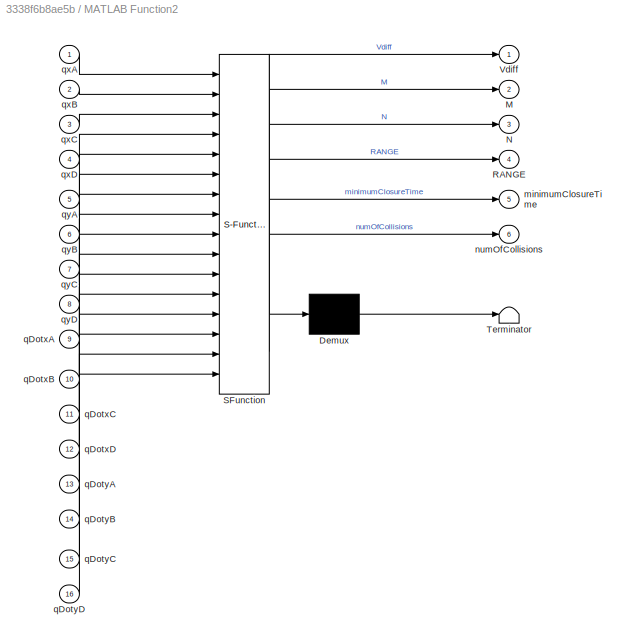
BLOCK [SubSystem] MATLAB Function2
  ErrorFcn = Stateflow.Translate.translate
  PermitHierarchicalResolution = ExplicitOnly
  Ports = [16, 6]
  RequestExecContextInheritance = off
  SFBlockType = MATLAB Function
  TreatAsAtomicUnit = on
BLOCK [Demux] MATLAB Function2/ Demux 
  Outputs = 1
  Ports = [1, 1]
BLOCK [S-Function] MATLAB Function2/ SFunction 
  EnableBusSupport = on
  FunctionName = sf_sfun
  PortCounts = [16 7]
  Ports = [16, 7]
  SFcnIsStateOwnerBlock = off
  SFunctionDeploymentMode = off
  Tag = Stateflow S-Function NetworkModelIntermediateIntersectionCRCA 3
BLOCK [Terminator] MATLAB Function2/ Terminator 
BLOCK [Outport] MATLAB Function2/M
  IconDisplay = Port number
  Port = 2
BLOCK [Outport] MATLAB Function2/N
  IconDisplay = Port number
  Port = 3
BLOCK [Outport] MATLAB Function2/RANGE
  IconDisplay = Port number
  Port = 4
BLOCK [Outport] MATLAB Function2/Vdiff
  IconDisplay = Port number
BLOCK [Outport] MATLAB Function2/minimumClosureTime
  IconDisplay = Port number
  Port = 5
BLOCK [Outport] MATLAB Function2/numOfCollisions
  IconDisplay = Port number
  Port = 6
BLOCK [Inport] MATLAB Function2/qDotxA
  IconDisplay = Port number
  Port = 9
BLOCK [Inport] MATLAB Function2/qDotxB
  IconDisplay = Port number
  Port = 10
BLOCK [Inport] MATLAB Function2/qDotxC
  IconDisplay = Port number
  Port = 11
BLOCK [Inport] MATLAB Function2/qDotxD
  IconDisplay = Port number
  Port = 12
BLOCK [Inport] MATLAB Function2/qDotyA
  IconDisplay = Port number
  Port = 13
BLOCK [Inport] MATLAB Function2/qDotyB
  IconDisplay = Port number
  Port = 14
BLOCK [Inport] MATLAB Function2/qDotyC
  IconDisplay = Port number
  Port = 15
BLOCK [Inport] MATLAB Function2/qDotyD
  IconDisplay = Port number
  Port = 16
BLOCK [Inport] MATLAB Function2/qxA
  IconDisplay = Port number
BLOCK [Inport] MATLAB Function2/qxB
  IconDisplay = Port number
  Port = 2
BLOCK [Inport] MATLAB Function2/qxC
  IconDisplay = Port number
  Port = 3
BLOCK [Inport] MATLAB Function2/qxD
  IconDisplay = Port number
  Port = 4
BLOCK [Inport] MATLAB Function2/qyA
  IconDisplay = Port number
  Port = 5
BLOCK [Inport] MATLAB Function2/qyB
  IconDisplay = Port number
  Port = 6
BLOCK [Inport] MATLAB Function2/qyC
  IconDisplay = Port number
  Port = 7
BLOCK [Inport] MATLAB Function2/qyD
  IconDisplay = Port number
  Port = 8
BLOCK [SubSystem] MATLAB Function3
  ErrorFcn = Stateflow.Translate.translate
  PermitHierarchicalResolution = ExplicitOnly
  Ports = [4, 1]
  RequestExecContextInheritance = off
  SFBlockType = MATLAB Function
  TreatAsAtomicUnit = on
BLOCK [Demux] MATLAB Function3/ Demux 
  Outputs = 1
  Ports = [1, 1]
BLOCK [S-Function] MATLAB Function3/ SFunction 
  EnableBusSupport = on
  FunctionName = sf_sfun
  PortCounts = [4 2]
  Ports = [4, 2]
  SFcnIsStateOwnerBlock = off
  SFunctionDeploymentMode = off
  Tag = Stateflow S-Function NetworkModelIntermediateIntersectionCRCA 4
BLOCK [Terminator] MATLAB Function3/ Terminator 
BLOCK [Inport] MATLAB Function3/qDotxi
  IconDisplay = Port number
BLOCK [Inport] MATLAB Function3/qDotxj
  IconDisplay = Port number
  Port = 2
BLOCK [Inport] MATLAB Function3/qDotyi
  IconDisplay = Port number
  Port = 3
BLOCK [Inport] MATLAB Function3/qDotyj
  IconDisplay = Port number
  Port = 4
BLOCK [Outport] MATLAB Function3/y
  IconDisplay = Port number
BLOCK [Logic] OR1
  AllPortsSameDT = off
  IconShape = distinctive
  Inputs = 7
  Operator = OR
  OutDataTypeStr = 'double'
  Ports = [7, 1]
BLOCK [Logic] OR2
  AllPortsSameDT = off
  IconShape = distinctive
  Inputs = 7
  Operator = OR
  OutDataTypeStr = 'double'
  Ports = [7, 1]
BLOCK [Logic] OR3
  AllPortsSameDT = off
  IconShape = distinctive
  Inputs = 7
  Operator = OR
  OutDataTypeStr = 'double'
  Ports = [7, 1]
BLOCK [Logic] OR4
  AllPortsSameDT = off
  IconShape = distinctive
  Inputs = 7
  Operator = OR
  OutDataTypeStr = 'double'
  Ports = [7, 1]
BLOCK [Logic] OR5
  AllPortsSameDT = off
  IconShape = distinctive
  Inputs = 7
  Operator = OR
  OutDataTypeStr = 'double'
  Ports = [7, 1]
BLOCK [Logic] OR6
  AllPortsSameDT = off
  IconShape = distinctive
  Inputs = 7
  Operator = OR
  OutDataTypeStr = 'double'
  Ports = [7, 1]
BLOCK [Logic] OR7
  AllPortsSameDT = off
  IconShape = distinctive
  Inputs = 7
  Operator = OR
  OutDataTypeStr = 'double'
  Ports = [7, 1]
BLOCK [Logic] OR8
  AllPortsSameDT = off
  IconShape = distinctive
  Inputs = 7
  Operator = OR
  OutDataTypeStr = 'double'
  Ports = [7, 1]
BLOCK [Reference] PID Controller1  REF=simulink/Continuous/PID Controller
  Ports = [1, 1]
  SourceBlock = simulink/Continuous/PID Controller
  SourceProductBaseCode = SL
  SourceProductName = Simulink
  SourceType = PID 1dof
BLOCK [Reference] PID Controller10  REF=simulink/Continuous/PID Controller
  Ports = [1, 1]
  SourceBlock = simulink/Continuous/PID Controller
  SourceProductBaseCode = SL
  SourceProductName = Simulink
  SourceType = PID 1dof
BLOCK [Reference] PID Controller11  REF=simulink/Continuous/PID Controller
  Ports = [1, 1]
  SourceBlock = simulink/Continuous/PID Controller
  SourceProductBaseCode = SL
  SourceProductName = Simulink
  SourceType = PID 1dof
BLOCK [Reference] PID Controller12  REF=simulink/Continuous/PID Controller
  Ports = [1, 1]
  SourceBlock = simulink/Continuous/PID Controller
  SourceProductBaseCode = SL
  SourceProductName = Simulink
  SourceType = PID 1dof
BLOCK [Reference] PID Controller13  REF=simulink/Continuous/PID Controller
  Ports = [1, 1]
  SourceBlock = simulink/Continuous/PID Controller
  SourceProductBaseCode = SL
  SourceProductName = Simulink
  SourceType = PID 1dof
BLOCK [Reference] PID Controller14  REF=simulink/Continuous/PID Controller
  Ports = [1, 1]
  SourceBlock = simulink/Continuous/PID Controller
  SourceProductBaseCode = SL
  SourceProductName = Simulink
  SourceType = PID 1dof
BLOCK [Reference] PID Controller15  REF=simulink/Continuous/PID Controller
  Ports = [1, 1]
  SourceBlock = simulink/Continuous/PID Controller
  SourceProductBaseCode = SL
  SourceProductName = Simulink
  SourceType = PID 1dof
BLOCK [Reference] PID Controller16  REF=simulink/Continuous/PID Controller
  Ports = [1, 1]
  SourceBlock = simulink/Continuous/PID Controller
  SourceProductBaseCode = SL
  SourceProductName = Simulink
  SourceType = PID 1dof
BLOCK [Reference] PID Controller2  REF=simulink/Continuous/PID Controller
  Ports = [1, 1]
  SourceBlock = simulink/Continuous/PID Controller
  SourceProductBaseCode = SL
  SourceProductName = Simulink
  SourceType = PID 1dof
BLOCK [Reference] PID Controller3  REF=simulink/Continuous/PID Controller
  Ports = [1, 1]
  SourceBlock = simulink/Continuous/PID Controller
  SourceProductBaseCode = SL
  SourceProductName = Simulink
  SourceType = PID 1dof
BLOCK [Reference] PID Controller4  REF=simulink/Continuous/PID Controller
  Ports = [1, 1]
  SourceBlock = simulink/Continuous/PID Controller
  SourceProductBaseCode = SL
  SourceProductName = Simulink
  SourceType = PID 1dof
BLOCK [Reference] PID Controller5  REF=simulink/Continuous/PID Controller
  Ports = [1, 1]
  SourceBlock = simulink/Continuous/PID Controller
  SourceProductBaseCode = SL
  SourceProductName = Simulink
  SourceType = PID 1dof
BLOCK [Reference] PID Controller6  REF=simulink/Continuous/PID Controller
  Ports = [1, 1]
  SourceBlock = simulink/Continuous/PID Controller
  SourceProductBaseCode = SL
  SourceProductName = Simulink
  SourceType = PID 1dof
BLOCK [Reference] PID Controller7  REF=simulink/Continuous/PID Controller
  Ports = [1, 1]
  SourceBlock = simulink/Continuous/PID Controller
  SourceProductBaseCode = SL
  SourceProductName = Simulink
  SourceType = PID 1dof
BLOCK [Reference] PID Controller8  REF=simulink/Continuous/PID Controller
  Ports = [1, 1]
  SourceBlock = simulink/Continuous/PID Controller
  SourceProductBaseCode = SL
  SourceProductName = Simulink
  SourceType = PID 1dof
BLOCK [Reference] PID Controller9  REF=simulink/Continuous/PID Controller
  Ports = [1, 1]
  SourceBlock = simulink/Continuous/PID Controller
  SourceProductBaseCode = SL
  SourceProductName = Simulink
  SourceType = PID 1dof
BLOCK [Scope] PositionXDrone1
  Floating = off
  NumInputPorts = 1
  Ports = [1]
  ScopeSpecificationString = Simulink.scopes.TimeScopeBlockCfg('CurrentConfiguration', extmgr.ConfigurationSet(extmgr.Configuration('Core','General UI',true),extmgr.Configuration('Core','Source UI',true),extmgr.Configuration('Sources','WiredSimulink',true,'DataLoggingVariableName','ScopeData16'),extmgr.Configuration('Visuals','Time Domain',true,'SerializedDisplays',{struct('MinYLimReal','-13.93778','MaxYLimReal','12.65975','Y...<+1456ch>
BLOCK [Scope] PositionXDrone11
  Floating = off
  NumInputPorts = 1
  Ports = [1]
  ScopeSpecificationString = Simulink.scopes.TimeScopeBlockCfg('CurrentConfiguration', extmgr.ConfigurationSet(extmgr.Configuration('Core','General UI',true),extmgr.Configuration('Core','Source UI',true),extmgr.Configuration('Sources','WiredSimulink',true,'DataLoggingVariableName','ScopeData1'),extmgr.Configuration('Visuals','Time Domain',true,'SerializedDisplays',{struct('MinYLimReal','-13.93778','MaxYLimReal','12.65975','YL...<+1455ch>
BLOCK [Scope] PositionXDrone3
  Floating = off
  NumInputPorts = 1
  Ports = [1]
  ScopeSpecificationString = Simulink.scopes.TimeScopeBlockCfg('CurrentConfiguration', extmgr.ConfigurationSet(extmgr.Configuration('Core','General UI',true),extmgr.Configuration('Core','Source UI',true),extmgr.Configuration('Sources','WiredSimulink',true,'DataLoggingVariableName','ScopeData17'),extmgr.Configuration('Visuals','Time Domain',true,'SerializedDisplays',{struct('MinYLimReal','-23.95767','MaxYLimReal','115.61905','...<+1460ch>
BLOCK [Scope] PositionXDrone44
  Floating = off
  NumInputPorts = 1
  Ports = [1]
  ScopeSpecificationString = Simulink.scopes.TimeScopeBlockCfg('CurrentConfiguration', extmgr.ConfigurationSet(extmgr.Configuration('Core','General UI',true),extmgr.Configuration('Core','Source UI',true),extmgr.Configuration('Sources','WiredSimulink',true,'DataLoggingVariableName','ScopeData2'),extmgr.Configuration('Visuals','Time Domain',true,'SerializedDisplays',{struct('MinYLimReal','-23.95767','MaxYLimReal','115.61905','Y...<+1459ch>
BLOCK [Scope] PositionXDrone5
  Floating = off
  NumInputPorts = 1
  Ports = [1]
  ScopeSpecificationString = Simulink.scopes.TimeScopeBlockCfg('CurrentConfiguration', extmgr.ConfigurationSet(extmgr.Configuration('Core','General UI',true),extmgr.Configuration('Core','Source UI',true),extmgr.Configuration('Sources','WiredSimulink',true,'DataLoggingVariableName','ScopeData8'),extmgr.Configuration('Visuals','Time Domain',true,'SerializedDisplays',{struct('MinYLimReal','-13.93778','MaxYLimReal','12.65975','YL...<+1455ch>
BLOCK [Scope] PositionXDrone6
  Floating = off
  NumInputPorts = 1
  Ports = [1]
  ScopeSpecificationString = Simulink.scopes.TimeScopeBlockCfg('CurrentConfiguration', extmgr.ConfigurationSet(extmgr.Configuration('Core','General UI',true),extmgr.Configuration('Core','Source UI',true),extmgr.Configuration('Sources','WiredSimulink',true,'DataLoggingVariableName','ScopeData9'),extmgr.Configuration('Visuals','Time Domain',true,'SerializedDisplays',{struct('MinYLimReal','-23.95767','MaxYLimReal','115.61905','Y...<+1459ch>
BLOCK [Scope] PositionXDrone7
  Floating = off
  NumInputPorts = 1
  Ports = [1]
  ScopeSpecificationString = Simulink.scopes.TimeScopeBlockCfg('CurrentConfiguration', extmgr.ConfigurationSet(extmgr.Configuration('Core','General UI',true),extmgr.Configuration('Core','Source UI',true),extmgr.Configuration('Sources','WiredSimulink',true,'DataLoggingVariableName','ScopeData24'),extmgr.Configuration('Visuals','Time Domain',true,'SerializedDisplays',{struct('MinYLimReal','-13.93778','MaxYLimReal','12.65975','Y...<+1456ch>
BLOCK [Scope] PositionXDrone8
  Floating = off
  NumInputPorts = 1
  Ports = [1]
  ScopeSpecificationString = Simulink.scopes.TimeScopeBlockCfg('CurrentConfiguration', extmgr.ConfigurationSet(extmgr.Configuration('Core','General UI',true),extmgr.Configuration('Core','Source UI',true),extmgr.Configuration('Sources','WiredSimulink',true,'DataLoggingVariableName','ScopeData25'),extmgr.Configuration('Visuals','Time Domain',true,'SerializedDisplays',{struct('MinYLimReal','-23.95767','MaxYLimReal','115.61905','...<+1460ch>
BLOCK [Scope] PositionYDrone1
  Floating = off
  NumInputPorts = 1
  Ports = [1]
  ScopeSpecificationString = Simulink.scopes.TimeScopeBlockCfg('CurrentConfiguration', extmgr.ConfigurationSet(extmgr.Configuration('Core','General UI',true),extmgr.Configuration('Core','Source UI',true),extmgr.Configuration('Sources','WiredSimulink',true,'DataLoggingVariableName','ScopeData18'),extmgr.Configuration('Visuals','Time Domain',true,'SerializedDisplays',{struct('MinYLimReal','-12488.44039','MaxYLimReal','112495.93...<+1760ch>
BLOCK [Scope] PositionYDrone11
  Floating = off
  NumInputPorts = 1
  Ports = [1]
  ScopeSpecificationString = Simulink.scopes.TimeScopeBlockCfg('CurrentConfiguration', extmgr.ConfigurationSet(extmgr.Configuration('Core','General UI',true),extmgr.Configuration('Core','Source UI',true),extmgr.Configuration('Sources','WiredSimulink',true,'DataLoggingVariableName','ScopeData3'),extmgr.Configuration('Visuals','Time Domain',true,'SerializedDisplays',{struct('MinYLimReal','-12488.44039','MaxYLimReal','112495.937...<+1759ch>
BLOCK [Scope] PositionYDrone3
  Floating = off
  NumInputPorts = 1
  Ports = [1]
  ScopeSpecificationString = Simulink.scopes.TimeScopeBlockCfg('CurrentConfiguration', extmgr.ConfigurationSet(extmgr.Configuration('Core','General UI',true),extmgr.Configuration('Core','Source UI',true),extmgr.Configuration('Sources','WiredSimulink',true,'DataLoggingVariableName','ScopeData19'),extmgr.Configuration('Visuals','Time Domain',true,'SerializedDisplays',{struct('MinYLimReal','-115.61905','MaxYLimReal','23.95767','...<+1462ch>
BLOCK [Scope] PositionYDrone44
  Floating = off
  NumInputPorts = 1
  Ports = [1]
  ScopeSpecificationString = Simulink.scopes.TimeScopeBlockCfg('CurrentConfiguration', extmgr.ConfigurationSet(extmgr.Configuration('Core','General UI',true),extmgr.Configuration('Core','Source UI',true),extmgr.Configuration('Sources','WiredSimulink',true,'DataLoggingVariableName','ScopeData4'),extmgr.Configuration('Visuals','Time Domain',true,'SerializedDisplays',{struct('MinYLimReal','-115.61905','MaxYLimReal','23.95767','Y...<+1461ch>
BLOCK [Scope] PositionYDrone5
  Floating = off
  NumInputPorts = 1
  Ports = [1]
  ScopeSpecificationString = Simulink.scopes.TimeScopeBlockCfg('CurrentConfiguration', extmgr.ConfigurationSet(extmgr.Configuration('Core','General UI',true),extmgr.Configuration('Core','Source UI',true),extmgr.Configuration('Sources','WiredSimulink',true,'DataLoggingVariableName','ScopeData10'),extmgr.Configuration('Visuals','Time Domain',true,'SerializedDisplays',{struct('MinYLimReal','-12488.44039','MaxYLimReal','112495.93...<+1760ch>
BLOCK [Scope] PositionYDrone6
  Floating = off
  NumInputPorts = 1
  Ports = [1]
  ScopeSpecificationString = Simulink.scopes.TimeScopeBlockCfg('CurrentConfiguration', extmgr.ConfigurationSet(extmgr.Configuration('Core','General UI',true),extmgr.Configuration('Core','Source UI',true),extmgr.Configuration('Sources','WiredSimulink',true,'DataLoggingVariableName','ScopeData11'),extmgr.Configuration('Visuals','Time Domain',true,'SerializedDisplays',{struct('MinYLimReal','-115.61905','MaxYLimReal','23.95767','...<+1462ch>
BLOCK [Scope] PositionYDrone7
  Floating = off
  NumInputPorts = 1
  Ports = [1]
  ScopeSpecificationString = Simulink.scopes.TimeScopeBlockCfg('CurrentConfiguration', extmgr.ConfigurationSet(extmgr.Configuration('Core','General UI',true),extmgr.Configuration('Core','Source UI',true),extmgr.Configuration('Sources','WiredSimulink',true,'DataLoggingVariableName','ScopeData26'),extmgr.Configuration('Visuals','Time Domain',true,'SerializedDisplays',{struct('MinYLimReal','-12488.44039','MaxYLimReal','112495.93...<+1760ch>
BLOCK [Scope] PositionYDrone8
  Floating = off
  NumInputPorts = 1
  Ports = [1]
  ScopeSpecificationString = Simulink.scopes.TimeScopeBlockCfg('CurrentConfiguration', extmgr.ConfigurationSet(extmgr.Configuration('Core','General UI',true),extmgr.Configuration('Core','Source UI',true),extmgr.Configuration('Sources','WiredSimulink',true,'DataLoggingVariableName','ScopeData27'),extmgr.Configuration('Visuals','Time Domain',true,'SerializedDisplays',{struct('MinYLimReal','-115.61905','MaxYLimReal','23.95767','...<+1462ch>
BLOCK [Sqrt] Sqrt1
BLOCK [Sqrt] Sqrt2
BLOCK [Sqrt] Sqrt3
BLOCK [Sqrt] Sqrt4
BLOCK [Sqrt] Sqrt5
BLOCK [Sqrt] Sqrt6
BLOCK [Sqrt] Sqrt7
BLOCK [Sqrt] Sqrt8
BLOCK [Math] Square1
  Operator = square
  Ports = [1, 1]
BLOCK [Math] Square10
  Operator = square
  Ports = [1, 1]
BLOCK [Math] Square11
  Operator = square
  Ports = [1, 1]
BLOCK [Math] Square12
  Operator = square
  Ports = [1, 1]
BLOCK [Math] Square13
  Operator = square
  Ports = [1, 1]
BLOCK [Math] Square14
  Operator = square
  Ports = [1, 1]
BLOCK [Math] Square15
  Operator = square
  Ports = [1, 1]
BLOCK [Math] Square16
  Operator = square
  Ports = [1, 1]
BLOCK [Math] Square2
  Operator = square
  Ports = [1, 1]
BLOCK [Math] Square3
  Operator = square
  Ports = [1, 1]
BLOCK [Math] Square4
  Operator = square
  Ports = [1, 1]
BLOCK [Math] Square5
  Operator = square
  Ports = [1, 1]
BLOCK [Math] Square6
  Operator = square
  Ports = [1, 1]
BLOCK [Math] Square7
  Operator = square
  Ports = [1, 1]
BLOCK [Math] Square8
  Operator = square
  Ports = [1, 1]
BLOCK [Math] Square9
  Operator = square
  Ports = [1, 1]
BLOCK [Step] Step 1
  After = VelocityStarX5
  SampleTime = 0
  Time = 0
BLOCK [Step] Step 10
  After = VelocityStarY1
  SampleTime = 0
  Time = 0
BLOCK [Step] Step 11
  After = VelocityStarX3
  SampleTime = 0
  Time = 0
BLOCK [Step] Step 12
  After = VelocityStarY3
  SampleTime = 0
  Time = 0
BLOCK [Step] Step 13
  After = VelocityStarX7
  SampleTime = 0
  Time = 0
BLOCK [Step] Step 14
  After = VelocityStarY7
  SampleTime = 0
  Time = 0
BLOCK [Step] Step 15
  After = VelocityStarX8
  SampleTime = 0
  Time = 0
BLOCK [Step] Step 16
  After = VelocityStarY8
  SampleTime = 0
  Time = 0
BLOCK [Step] Step 2
  After = VelocityStarY5
  SampleTime = 0
  Time = 0
BLOCK [Step] Step 3
  After = VelocityStarX2
  SampleTime = 0
  Time = 0
BLOCK [Step] Step 4
  After = VelocityStarY2
  SampleTime = 0
  Time = 0
BLOCK [Step] Step 5
  After = VelocityStarX4
  SampleTime = 0
  Time = 0
BLOCK [Step] Step 6
  After = VelocityStarY4
  SampleTime = 0
  Time = 0
BLOCK [Step] Step 7
  After = VelocityStarX6
  SampleTime = 0
  Time = 0
BLOCK [Step] Step 8
  After = VelocityStarY6
  SampleTime = 0
  Time = 0
BLOCK [Step] Step 9
  After = VelocityStarX1
  SampleTime = 0
  Time = 0
BLOCK [Sum] Sum1
  IconShape = round
  InputSameDT = off
  Inputs = |+-
  OutDataTypeStr = Inherit: Inherit via internal rule
  Ports = [2, 1]
  SaturateOnIntegerOverflow = off
BLOCK [Sum] Sum10
  IconShape = round
  InputSameDT = off
  Inputs = |+-
  OutDataTypeStr = Inherit: Inherit via internal rule
  Ports = [2, 1]
  SaturateOnIntegerOverflow = off
BLOCK [Sum] Sum11
  IconShape = round
  InputSameDT = off
  Inputs = |+-
  OutDataTypeStr = Inherit: Inherit via internal rule
  Ports = [2, 1]
  SaturateOnIntegerOverflow = off
BLOCK [Sum] Sum12
  IconShape = round
  InputSameDT = off
  Inputs = |+-
  OutDataTypeStr = Inherit: Inherit via internal rule
  Ports = [2, 1]
  SaturateOnIntegerOverflow = off
BLOCK [Sum] Sum13
  IconShape = round
  InputSameDT = off
  Inputs = |+-
  OutDataTypeStr = Inherit: Inherit via internal rule
  Ports = [2, 1]
  SaturateOnIntegerOverflow = off
BLOCK [Sum] Sum14
  IconShape = round
  InputSameDT = off
  Inputs = |+-
  OutDataTypeStr = Inherit: Inherit via internal rule
  Ports = [2, 1]
  SaturateOnIntegerOverflow = off
BLOCK [Sum] Sum15
  IconShape = round
  InputSameDT = off
  Inputs = |+-
  OutDataTypeStr = Inherit: Inherit via internal rule
  Ports = [2, 1]
  SaturateOnIntegerOverflow = off
BLOCK [Sum] Sum16
  IconShape = round
  InputSameDT = off
  Inputs = |+-
  OutDataTypeStr = Inherit: Inherit via internal rule
  Ports = [2, 1]
  SaturateOnIntegerOverflow = off
BLOCK [Sum] Sum17
  IconShape = round
  InputSameDT = off
  Inputs = |+-
  OutDataTypeStr = Inherit: Inherit via internal rule
  Ports = [2, 1]
  SaturateOnIntegerOverflow = off
BLOCK [Sum] Sum18
  IconShape = round
  InputSameDT = off
  Inputs = |+-
  OutDataTypeStr = Inherit: Inherit via internal rule
  Ports = [2, 1]
  SaturateOnIntegerOverflow = off
BLOCK [Sum] Sum19
  IconShape = round
  InputSameDT = off
  Inputs = |+-
  OutDataTypeStr = Inherit: Inherit via internal rule
  Ports = [2, 1]
  SaturateOnIntegerOverflow = off
BLOCK [Sum] Sum2
  IconShape = round
  InputSameDT = off
  Inputs = |+-
  OutDataTypeStr = Inherit: Inherit via internal rule
  Ports = [2, 1]
  SaturateOnIntegerOverflow = off
BLOCK [Sum] Sum20
  IconShape = round
  InputSameDT = off
  Inputs = |+-
  OutDataTypeStr = Inherit: Inherit via internal rule
  Ports = [2, 1]
  SaturateOnIntegerOverflow = off
BLOCK [Sum] Sum21
  IconShape = round
  InputSameDT = off
  Inputs = |+-
  OutDataTypeStr = Inherit: Inherit via internal rule
  Ports = [2, 1]
  SaturateOnIntegerOverflow = off
BLOCK [Sum] Sum22
  IconShape = round
  InputSameDT = off
  Inputs = |+-
  OutDataTypeStr = Inherit: Inherit via internal rule
  Ports = [2, 1]
  SaturateOnIntegerOverflow = off
BLOCK [Sum] Sum23
  IconShape = round
  InputSameDT = off
  Inputs = |+-
  OutDataTypeStr = Inherit: Inherit via internal rule
  Ports = [2, 1]
  SaturateOnIntegerOverflow = off
BLOCK [Sum] Sum24
  IconShape = round
  InputSameDT = off
  Inputs = |+-
  OutDataTypeStr = Inherit: Inherit via internal rule
  Ports = [2, 1]
  SaturateOnIntegerOverflow = off
BLOCK [Sum] Sum25
  IconShape = round
  InputSameDT = off
  Inputs = |+-
  OutDataTypeStr = Inherit: Inherit via internal rule
  Ports = [2, 1]
  SaturateOnIntegerOverflow = off
BLOCK [Sum] Sum26
  IconShape = round
  InputSameDT = off
  Inputs = |+-
  OutDataTypeStr = Inherit: Inherit via internal rule
  Ports = [2, 1]
  SaturateOnIntegerOverflow = off
BLOCK [Sum] Sum27
  IconShape = round
  InputSameDT = off
  Inputs = |+-
  OutDataTypeStr = Inherit: Inherit via internal rule
  Ports = [2, 1]
  SaturateOnIntegerOverflow = off
BLOCK [Sum] Sum28
  IconShape = round
  InputSameDT = off
  Inputs = |+-
  OutDataTypeStr = Inherit: Inherit via internal rule
  Ports = [2, 1]
  SaturateOnIntegerOverflow = off
BLOCK [Sum] Sum29
  IconShape = round
  InputSameDT = off
  Inputs = |+-
  OutDataTypeStr = Inherit: Inherit via internal rule
  Ports = [2, 1]
  SaturateOnIntegerOverflow = off
BLOCK [Sum] Sum3
  IconShape = round
  InputSameDT = off
  Inputs = |+-
  OutDataTypeStr = Inherit: Inherit via internal rule
  Ports = [2, 1]
  SaturateOnIntegerOverflow = off
BLOCK [Sum] Sum30
  IconShape = round
  InputSameDT = off
  Inputs = |+-
  OutDataTypeStr = Inherit: Inherit via internal rule
  Ports = [2, 1]
  SaturateOnIntegerOverflow = off
BLOCK [Sum] Sum31
  IconShape = round
  InputSameDT = off
  Inputs = |+-
  OutDataTypeStr = Inherit: Inherit via internal rule
  Ports = [2, 1]
  SaturateOnIntegerOverflow = off
BLOCK [Sum] Sum32
  IconShape = round
  InputSameDT = off
  Inputs = |+-
  OutDataTypeStr = Inherit: Inherit via internal rule
  Ports = [2, 1]
  SaturateOnIntegerOverflow = off
BLOCK [Sum] Sum4
  IconShape = round
  InputSameDT = off
  Inputs = |+-
  OutDataTypeStr = Inherit: Inherit via internal rule
  Ports = [2, 1]
  SaturateOnIntegerOverflow = off
BLOCK [Sum] Sum5
  IconShape = round
  InputSameDT = off
  Inputs = |+-
  OutDataTypeStr = Inherit: Inherit via internal rule
  Ports = [2, 1]
  SaturateOnIntegerOverflow = off
BLOCK [Sum] Sum6
  IconShape = round
  InputSameDT = off
  Inputs = |+-
  OutDataTypeStr = Inherit: Inherit via internal rule
  Ports = [2, 1]
  SaturateOnIntegerOverflow = off
BLOCK [Sum] Sum7
  IconShape = round
  InputSameDT = off
  Inputs = |+-
  OutDataTypeStr = Inherit: Inherit via internal rule
  Ports = [2, 1]
  SaturateOnIntegerOverflow = off
BLOCK [Sum] Sum8
  IconShape = round
  InputSameDT = off
  Inputs = |+-
  OutDataTypeStr = Inherit: Inherit via internal rule
  Ports = [2, 1]
  SaturateOnIntegerOverflow = off
BLOCK [Sum] Sum9
  IconShape = round
  InputSameDT = off
  Inputs = |+-
  OutDataTypeStr = Inherit: Inherit via internal rule
  Ports = [2, 1]
  SaturateOnIntegerOverflow = off
BLOCK [SubSystem] Switch Case Action Subsystem
  Ports = [2, 2, 0, 0, 0, 0, 0, 1]
  RequestExecContextInheritance = off
  TreatAsAtomicUnit = on
BLOCK [ActionPort] Switch Case Action Subsystem/Action Port
  ActionType = elseif
BLOCK [Gain] Switch Case Action Subsystem/Gain1
  Gain = -1
  OutDataTypeStr = Inherit: Inherit via internal rule
  ParamDataTypeStr = Inherit: Inherit via internal rule
  SaturateOnIntegerOverflow = off
BLOCK [Gain] Switch Case Action Subsystem/Gain5
  Gain = -1
  OutDataTypeStr = Inherit: Inherit via internal rule
  ParamDataTypeStr = Inherit: Inherit via internal rule
  SaturateOnIntegerOverflow = off
BLOCK [Outport] Switch Case Action Subsystem/dVx2
  IconDisplay = Port number
BLOCK [Outport] Switch Case Action Subsystem/dVy2
  IconDisplay = Port number
  Port = 2
BLOCK [Inport] Switch Case Action Subsystem/deltaVx2
  IconDisplay = Port number
BLOCK [Inport] Switch Case Action Subsystem/deltaVy2
  IconDisplay = Port number
  Port = 2
BLOCK [SubSystem] Switch Case Action Subsystem1
  Ports = [2, 2, 0, 0, 0, 0, 0, 1]
  RequestExecContextInheritance = off
  TreatAsAtomicUnit = on
BLOCK [ActionPort] Switch Case Action Subsystem1/Action Port
  ActionType = elseif
BLOCK [Gain] Switch Case Action Subsystem1/Gain1
  OutDataTypeStr = Inherit: Inherit via internal rule
  ParamDataTypeStr = Inherit: Inherit via internal rule
  SaturateOnIntegerOverflow = off
BLOCK [Gain] Switch Case Action Subsystem1/Gain5
  OutDataTypeStr = Inherit: Inherit via internal rule
  ParamDataTypeStr = Inherit: Inherit via internal rule
  SaturateOnIntegerOverflow = off
BLOCK [Outport] Switch Case Action Subsystem1/dVx4
  IconDisplay = Port number
BLOCK [Outport] Switch Case Action Subsystem1/dVy4
  IconDisplay = Port number
  Port = 2
BLOCK [Inport] Switch Case Action Subsystem1/deltaVx4
  IconDisplay = Port number
BLOCK [Inport] Switch Case Action Subsystem1/deltaVy4
  IconDisplay = Port number
  Port = 2
BLOCK [SubSystem] Switch Case Action Subsystem2
  Ports = [2, 2, 0, 0, 0, 0, 0, 1]
  RequestExecContextInheritance = off
  TreatAsAtomicUnit = on
BLOCK [ActionPort] Switch Case Action Subsystem2/Action Port
  ActionType = elseif
BLOCK [Gain] Switch Case Action Subsystem2/Gain1
  Gain = -1
  OutDataTypeStr = Inherit: Inherit via internal rule
  ParamDataTypeStr = Inherit: Inherit via internal rule
  SaturateOnIntegerOverflow = off
BLOCK [Gain] Switch Case Action Subsystem2/Gain5
  Gain = -1
  OutDataTypeStr = Inherit: Inherit via internal rule
  ParamDataTypeStr = Inherit: Inherit via internal rule
  SaturateOnIntegerOverflow = off
BLOCK [Outport] Switch Case Action Subsystem2/dVx5
  IconDisplay = Port number
BLOCK [Outport] Switch Case Action Subsystem2/dVy5
  IconDisplay = Port number
  Port = 2
BLOCK [Inport] Switch Case Action Subsystem2/deltaVx5
  IconDisplay = Port number
BLOCK [Inport] Switch Case Action Subsystem2/deltaVy5
  IconDisplay = Port number
  Port = 2
BLOCK [SubSystem] Switch Case Action Subsystem3
  Ports = [2, 2, 0, 0, 0, 0, 0, 1]
  RequestExecContextInheritance = off
  TreatAsAtomicUnit = on
BLOCK [ActionPort] Switch Case Action Subsystem3/Action Port
  ActionType = elseif
BLOCK [Gain] Switch Case Action Subsystem3/Gain1
  OutDataTypeStr = Inherit: Inherit via internal rule
  ParamDataTypeStr = Inherit: Inherit via internal rule
  SaturateOnIntegerOverflow = off
BLOCK [Gain] Switch Case Action Subsystem3/Gain5
  OutDataTypeStr = Inherit: Inherit via internal rule
  ParamDataTypeStr = Inherit: Inherit via internal rule
  SaturateOnIntegerOverflow = off
BLOCK [Outport] Switch Case Action Subsystem3/dVx6
  IconDisplay = Port number
BLOCK [Outport] Switch Case Action Subsystem3/dVy6
  IconDisplay = Port number
  Port = 2
BLOCK [Inport] Switch Case Action Subsystem3/deltaVx6
  IconDisplay = Port number
BLOCK [Inport] Switch Case Action Subsystem3/deltaVy6
  IconDisplay = Port number
  Port = 2
BLOCK [SubSystem] Switch Case Action Subsystem4
  Ports = [2, 2, 0, 0, 0, 0, 0, 1]
  RequestExecContextInheritance = off
  TreatAsAtomicUnit = on
BLOCK [ActionPort] Switch Case Action Subsystem4/Action Port
  ActionType = elseif
BLOCK [Gain] Switch Case Action Subsystem4/Gain1
  Gain = -1
  OutDataTypeStr = Inherit: Inherit via internal rule
  ParamDataTypeStr = Inherit: Inherit via internal rule
  SaturateOnIntegerOverflow = off
BLOCK [Gain] Switch Case Action Subsystem4/Gain5
  Gain = -1
  OutDataTypeStr = Inherit: Inherit via internal rule
  ParamDataTypeStr = Inherit: Inherit via internal rule
  SaturateOnIntegerOverflow = off
BLOCK [Outport] Switch Case Action Subsystem4/dVx1
  IconDisplay = Port number
BLOCK [Outport] Switch Case Action Subsystem4/dVy1
  IconDisplay = Port number
  Port = 2
BLOCK [Inport] Switch Case Action Subsystem4/deltaVx1
  IconDisplay = Port number
BLOCK [Inport] Switch Case Action Subsystem4/deltaVy1
  IconDisplay = Port number
  Port = 2
BLOCK [SubSystem] Switch Case Action Subsystem5
  Ports = [2, 2, 0, 0, 0, 0, 0, 1]
  RequestExecContextInheritance = off
  TreatAsAtomicUnit = on
BLOCK [ActionPort] Switch Case Action Subsystem5/Action Port
  ActionType = elseif
BLOCK [Gain] Switch Case Action Subsystem5/Gain1
  OutDataTypeStr = Inherit: Inherit via internal rule
  ParamDataTypeStr = Inherit: Inherit via internal rule
  SaturateOnIntegerOverflow = off
BLOCK [Gain] Switch Case Action Subsystem5/Gain5
  OutDataTypeStr = Inherit: Inherit via internal rule
  ParamDataTypeStr = Inherit: Inherit via internal rule
  SaturateOnIntegerOverflow = off
BLOCK [Outport] Switch Case Action Subsystem5/dVx3
  IconDisplay = Port number
BLOCK [Outport] Switch Case Action Subsystem5/dVy3
  IconDisplay = Port number
  Port = 2
BLOCK [Inport] Switch Case Action Subsystem5/deltaVx3
  IconDisplay = Port number
BLOCK [Inport] Switch Case Action Subsystem5/deltaVy3
  IconDisplay = Port number
  Port = 2
BLOCK [SubSystem] Switch Case Action Subsystem6
  Ports = [2, 2, 0, 0, 0, 0, 0, 1]
  RequestExecContextInheritance = off
  TreatAsAtomicUnit = on
BLOCK [ActionPort] Switch Case Action Subsystem6/Action Port
  ActionType = elseif
BLOCK [Gain] Switch Case Action Subsystem6/Gain1
  Gain = -1
  OutDataTypeStr = Inherit: Inherit via internal rule
  ParamDataTypeStr = Inherit: Inherit via internal rule
  SaturateOnIntegerOverflow = off
BLOCK [Gain] Switch Case Action Subsystem6/Gain5
  Gain = -1
  OutDataTypeStr = Inherit: Inherit via internal rule
  ParamDataTypeStr = Inherit: Inherit via internal rule
  SaturateOnIntegerOverflow = off
BLOCK [Outport] Switch Case Action Subsystem6/dVx7
  IconDisplay = Port number
BLOCK [Outport] Switch Case Action Subsystem6/dVy7
  IconDisplay = Port number
  Port = 2
BLOCK [Inport] Switch Case Action Subsystem6/deltaVx7
  IconDisplay = Port number
BLOCK [Inport] Switch Case Action Subsystem6/deltaVy7
  IconDisplay = Port number
  Port = 2
BLOCK [SubSystem] Switch Case Action Subsystem7
  Ports = [2, 2, 0, 0, 0, 0, 0, 1]
  RequestExecContextInheritance = off
  TreatAsAtomicUnit = on
BLOCK [ActionPort] Switch Case Action Subsystem7/Action Port
  ActionType = elseif
BLOCK [Gain] Switch Case Action Subsystem7/Gain1
  OutDataTypeStr = Inherit: Inherit via internal rule
  ParamDataTypeStr = Inherit: Inherit via internal rule
  SaturateOnIntegerOverflow = off
BLOCK [Gain] Switch Case Action Subsystem7/Gain5
  OutDataTypeStr = Inherit: Inherit via internal rule
  ParamDataTypeStr = Inherit: Inherit via internal rule
  SaturateOnIntegerOverflow = off
BLOCK [Outport] Switch Case Action Subsystem7/dVx4
  IconDisplay = Port number
BLOCK [Outport] Switch Case Action Subsystem7/dVy4
  IconDisplay = Port number
  Port = 2
BLOCK [Inport] Switch Case Action Subsystem7/deltaVx4
  IconDisplay = Port number
BLOCK [Inport] Switch Case Action Subsystem7/deltaVy4
  IconDisplay = Port number
  Port = 2
BLOCK [ToWorkspace] To Workspace
  FixptAsFi = on
  MaxDataPoints = inf
  Ports = [1]
  SampleTime = -1
  Save2DSignal = 3-D array (concatenate along third dimension)
  VariableName = Vdiff2
BLOCK [ToWorkspace] To Workspace1
  FixptAsFi = on
  MaxDataPoints = inf
  Ports = [1]
  SampleTime = -1
  Save2DSignal = 3-D array (concatenate along third dimension)
  VariableName = VelocityYDrone6
BLOCK [ToWorkspace] To Workspace10
  FixptAsFi = on
  MaxDataPoints = inf
  Ports = [1]
  SampleTime = -1
  Save2DSignal = 3-D array (concatenate along third dimension)
  VariableName = VelocityYDrone4
BLOCK [ToWorkspace] To Workspace11
  FixptAsFi = on
  MaxDataPoints = inf
  Ports = [1]
  SampleTime = -1
  Save2DSignal = 3-D array (concatenate along third dimension)
  VariableName = PositionXDrone4
BLOCK [ToWorkspace] To Workspace12
  FixptAsFi = on
  MaxDataPoints = inf
  Ports = [1]
  SampleTime = -1
  Save2DSignal = 3-D array (concatenate along third dimension)
  VariableName = VelocityXDrone4
BLOCK [ToWorkspace] To Workspace13
  FixptAsFi = on
  MaxDataPoints = inf
  Ports = [1]
  SampleTime = -1
  Save2DSignal = 3-D array (concatenate along third dimension)
  VariableName = VelocityStarX4
BLOCK [ToWorkspace] To Workspace14
  FixptAsFi = on
  MaxDataPoints = inf
  Ports = [1]
  SampleTime = -1
  Save2DSignal = 3-D array (concatenate along third dimension)
  VariableName = PositionYDrone4
BLOCK [ToWorkspace] To Workspace15
  FixptAsFi = on
  MaxDataPoints = inf
  Ports = [1]
  SampleTime = -1
  Save2DSignal = 3-D array (concatenate along third dimension)
  VariableName = PositionXDrone2
BLOCK [ToWorkspace] To Workspace16
  FixptAsFi = on
  MaxDataPoints = inf
  Ports = [1]
  SampleTime = -1
  Save2DSignal = 3-D array (concatenate along third dimension)
  VariableName = VelocityXDrone2
BLOCK [ToWorkspace] To Workspace17
  FixptAsFi = on
  MaxDataPoints = inf
  Ports = [1]
  SampleTime = -1
  Save2DSignal = 3-D array (concatenate along third dimension)
  VariableName = VelocityStarX2
BLOCK [ToWorkspace] To Workspace18
  FixptAsFi = on
  MaxDataPoints = inf
  Ports = [1]
  SampleTime = -1
  Save2DSignal = 3-D array (concatenate along third dimension)
  VariableName = PositionYDrone2
BLOCK [ToWorkspace] To Workspace19
  FixptAsFi = on
  MaxDataPoints = inf
  Ports = [1]
  SampleTime = -1
  Save2DSignal = 3-D array (concatenate along third dimension)
  VariableName = VelocityXDrone5
BLOCK [ToWorkspace] To Workspace2
  FixptAsFi = on
  MaxDataPoints = inf
  Ports = [1]
  SampleTime = -1
  Save2DSignal = 3-D array (concatenate along third dimension)
  VariableName = PositionXDrone6
BLOCK [ToWorkspace] To Workspace20
  FixptAsFi = on
  MaxDataPoints = inf
  Ports = [1]
  SampleTime = -1
  Save2DSignal = 3-D array (concatenate along third dimension)
  VariableName = VelocityStarX5
BLOCK [ToWorkspace] To Workspace21
  FixptAsFi = on
  MaxDataPoints = inf
  Ports = [1]
  SampleTime = -1
  Save2DSignal = 3-D array (concatenate along third dimension)
  VariableName = PositionYDrone5
BLOCK [ToWorkspace] To Workspace22
  FixptAsFi = on
  MaxDataPoints = inf
  Ports = [1]
  SampleTime = -1
  Save2DSignal = 3-D array (concatenate along third dimension)
  VariableName = VelocityStarY5
BLOCK [ToWorkspace] To Workspace23
  FixptAsFi = on
  MaxDataPoints = inf
  Ports = [1]
  SampleTime = -1
  Save2DSignal = 3-D array (concatenate along third dimension)
  VariableName = VelocityStarY6
BLOCK [ToWorkspace] To Workspace24
  FixptAsFi = on
  MaxDataPoints = inf
  Ports = [1]
  SampleTime = -1
  Save2DSignal = 3-D array (concatenate along third dimension)
  VariableName = VelocityYDrone5
BLOCK [ToWorkspace] To Workspace25
  FixptAsFi = on
  MaxDataPoints = inf
  Ports = [1]
  SampleTime = -1
  Save2DSignal = 3-D array (concatenate along third dimension)
  VariableName = VelocityYDrone3
BLOCK [ToWorkspace] To Workspace26
  FixptAsFi = on
  MaxDataPoints = inf
  Ports = [1]
  SampleTime = -1
  Save2DSignal = 3-D array (concatenate along third dimension)
  VariableName = VelocityXDrone1
BLOCK [ToWorkspace] To Workspace27
  FixptAsFi = on
  MaxDataPoints = inf
  Ports = [1]
  SampleTime = -1
  Save2DSignal = 3-D array (concatenate along third dimension)
  VariableName = PositionXDrone3
BLOCK [ToWorkspace] To Workspace28
  FixptAsFi = on
  MaxDataPoints = inf
  Ports = [1]
  SampleTime = -1
  Save2DSignal = 3-D array (concatenate along third dimension)
  VariableName = VelocityStarX1
BLOCK [ToWorkspace] To Workspace29
  FixptAsFi = on
  MaxDataPoints = inf
  Ports = [1]
  SampleTime = -1
  Save2DSignal = 3-D array (concatenate along third dimension)
  VariableName = PositionYDrone1
BLOCK [ToWorkspace] To Workspace3
  FixptAsFi = on
  MaxDataPoints = inf
  Ports = [1]
  SampleTime = -1
  Save2DSignal = 3-D array (concatenate along third dimension)
  VariableName = VelocityXDrone6
BLOCK [ToWorkspace] To Workspace30
  FixptAsFi = on
  MaxDataPoints = inf
  Ports = [1]
  SampleTime = -1
  Save2DSignal = 3-D array (concatenate along third dimension)
  VariableName = VelocityStarY1
BLOCK [ToWorkspace] To Workspace31
  FixptAsFi = on
  MaxDataPoints = inf
  Ports = [1]
  SampleTime = -1
  Save2DSignal = 3-D array (concatenate along third dimension)
  VariableName = VelocityStarY3
BLOCK [ToWorkspace] To Workspace32
  FixptAsFi = on
  MaxDataPoints = inf
  Ports = [1]
  SampleTime = -1
  Save2DSignal = 3-D array (concatenate along third dimension)
  VariableName = VelocityYDrone1
BLOCK [ToWorkspace] To Workspace33
  FixptAsFi = on
  MaxDataPoints = inf
  Ports = [1]
  SampleTime = -1
  Save2DSignal = 3-D array (concatenate along third dimension)
  VariableName = VelocityXDrone3
BLOCK [ToWorkspace] To Workspace34
  FixptAsFi = on
  MaxDataPoints = inf
  Ports = [1]
  SampleTime = -1
  Save2DSignal = 3-D array (concatenate along third dimension)
  VariableName = VelocityStarX3
BLOCK [ToWorkspace] To Workspace35
  FixptAsFi = on
  MaxDataPoints = inf
  Ports = [1]
  SampleTime = -1
  Save2DSignal = 3-D array (concatenate along third dimension)
  VariableName = PositionYDrone3
BLOCK [ToWorkspace] To Workspace36
  FixptAsFi = on
  MaxDataPoints = inf
  Ports = [1]
  SampleTime = -1
  Save2DSignal = 3-D array (concatenate along third dimension)
  VariableName = PositionXDrone1
BLOCK [ToWorkspace] To Workspace37
  FixptAsFi = on
  MaxDataPoints = inf
  Ports = [1]
  SampleTime = -1
  Save2DSignal = 3-D array (concatenate along third dimension)
  VariableName = VelocityYDrone8
BLOCK [ToWorkspace] To Workspace38
  FixptAsFi = on
  MaxDataPoints = inf
  Ports = [1]
  SampleTime = -1
  Save2DSignal = 3-D array (concatenate along third dimension)
  VariableName = VelocityXDrone7
BLOCK [ToWorkspace] To Workspace39
  FixptAsFi = on
  MaxDataPoints = inf
  Ports = [1]
  SampleTime = -1
  Save2DSignal = 3-D array (concatenate along third dimension)
  VariableName = PositionXDrone8
BLOCK [ToWorkspace] To Workspace4
  FixptAsFi = on
  MaxDataPoints = inf
  Ports = [1]
  SampleTime = -1
  Save2DSignal = 3-D array (concatenate along third dimension)
  VariableName = VelocityStarX6
BLOCK [ToWorkspace] To Workspace40
  FixptAsFi = on
  MaxDataPoints = inf
  Ports = [1]
  SampleTime = -1
  Save2DSignal = 3-D array (concatenate along third dimension)
  VariableName = VelocityStarX7
BLOCK [ToWorkspace] To Workspace41
  FixptAsFi = on
  MaxDataPoints = inf
  Ports = [1]
  SampleTime = -1
  Save2DSignal = 3-D array (concatenate along third dimension)
  VariableName = PositionYDrone7
BLOCK [ToWorkspace] To Workspace42
  FixptAsFi = on
  MaxDataPoints = inf
  Ports = [1]
  SampleTime = -1
  Save2DSignal = 3-D array (concatenate along third dimension)
  VariableName = VelocityStarY7
BLOCK [ToWorkspace] To Workspace43
  FixptAsFi = on
  MaxDataPoints = inf
  Ports = [1]
  SampleTime = -1
  Save2DSignal = 3-D array (concatenate along third dimension)
  VariableName = VelocityStarY8
BLOCK [ToWorkspace] To Workspace44
  FixptAsFi = on
  MaxDataPoints = inf
  Ports = [1]
  SampleTime = -1
  Save2DSignal = 3-D array (concatenate along third dimension)
  VariableName = VelocityYDrone7
BLOCK [ToWorkspace] To Workspace45
  FixptAsFi = on
  MaxDataPoints = inf
  Ports = [1]
  SampleTime = -1
  Save2DSignal = 3-D array (concatenate along third dimension)
  VariableName = VelocityXDrone8
BLOCK [ToWorkspace] To Workspace46
  FixptAsFi = on
  MaxDataPoints = inf
  Ports = [1]
  SampleTime = -1
  Save2DSignal = 3-D array (concatenate along third dimension)
  VariableName = VelocityStarX8
BLOCK [ToWorkspace] To Workspace47
  FixptAsFi = on
  MaxDataPoints = inf
  Ports = [1]
  SampleTime = -1
  Save2DSignal = 3-D array (concatenate along third dimension)
  VariableName = PositionYDrone8
BLOCK [ToWorkspace] To Workspace48
  FixptAsFi = on
  MaxDataPoints = inf
  Ports = [1]
  SampleTime = -1
  Save2DSignal = 3-D array (concatenate along third dimension)
  VariableName = PositionXDrone7
BLOCK [ToWorkspace] To Workspace49
  FixptAsFi = on
  MaxDataPoints = inf
  Ports = [1]
  SampleTime = -1
  Save2DSignal = 3-D array (concatenate along third dimension)
  VariableName = Vdiff1
BLOCK [ToWorkspace] To Workspace5
  FixptAsFi = on
  MaxDataPoints = inf
  Ports = [1]
  SampleTime = -1
  Save2DSignal = 3-D array (concatenate along third dimension)
  VariableName = PositionYDrone6
BLOCK [ToWorkspace] To Workspace50
  FixptAsFi = on
  MaxDataPoints = inf
  Ports = [1]
  SampleTime = -1
  Save2DSignal = 3-D array (concatenate along third dimension)
  VariableName = N
BLOCK [ToWorkspace] To Workspace51
  FixptAsFi = on
  MaxDataPoints = inf
  Ports = [1]
  SampleTime = -1
  Save2DSignal = 3-D array (concatenate along third dimension)
  VariableName = M
BLOCK [ToWorkspace] To Workspace52
  FixptAsFi = on
  MaxDataPoints = inf
  Ports = [1]
  SampleTime = -1
  Save2DSignal = 3-D array (concatenate along third dimension)
  VariableName = RANGE
BLOCK [ToWorkspace] To Workspace53
  FixptAsFi = on
  MaxDataPoints = inf
  Ports = [1]
  SampleTime = -1
  Save2DSignal = 3-D array (concatenate along third dimension)
  VariableName = minimumClosureTime
BLOCK [ToWorkspace] To Workspace54
  FixptAsFi = on
  MaxDataPoints = inf
  Ports = [1]
  SampleTime = -1
  Save2DSignal = 3-D array (concatenate along third dimension)
  VariableName = numOfCollisions
BLOCK [ToWorkspace] To Workspace6
  FixptAsFi = on
  MaxDataPoints = inf
  Ports = [1]
  SampleTime = -1
  Save2DSignal = 3-D array (concatenate along third dimension)
  VariableName = PositionXDrone5
BLOCK [ToWorkspace] To Workspace7
  FixptAsFi = on
  MaxDataPoints = inf
  Ports = [1]
  SampleTime = -1
  Save2DSignal = 3-D array (concatenate along third dimension)
  VariableName = VelocityStarY2
BLOCK [ToWorkspace] To Workspace8
  FixptAsFi = on
  MaxDataPoints = inf
  Ports = [1]
  SampleTime = -1
  Save2DSignal = 3-D array (concatenate along third dimension)
  VariableName = VelocityStarY4
BLOCK [ToWorkspace] To Workspace9
  FixptAsFi = on
  MaxDataPoints = inf
  Ports = [1]
  SampleTime = -1
  Save2DSignal = 3-D array (concatenate along third dimension)
  VariableName = VelocityYDrone2
BLOCK [Scope] VelocityXDrone1
  Floating = off
  NumInputPorts = 1
  Ports = [1]
  ScopeSpecificationString = Simulink.scopes.TimeScopeBlockCfg('CurrentConfiguration', extmgr.ConfigurationSet(extmgr.Configuration('Core','General UI',true),extmgr.Configuration('Core','Source UI',true),extmgr.Configuration('Sources','WiredSimulink',true,'DataLoggingVariableName','ScopeData20'),extmgr.Configuration('Visuals','Time Domain',true,'SerializedDisplays',{struct('MinYLimReal','-0.0769','MaxYLimReal','-0.01503','YLa...<+1449ch>
BLOCK [Scope] VelocityXDrone11
  Floating = off
  NumInputPorts = 1
  Ports = [1]
  ScopeSpecificationString = Simulink.scopes.TimeScopeBlockCfg('CurrentConfiguration', extmgr.ConfigurationSet(extmgr.Configuration('Core','General UI',true),extmgr.Configuration('Core','Source UI',true),extmgr.Configuration('Sources','WiredSimulink',true,'DataLoggingVariableName','ScopeData5'),extmgr.Configuration('Visuals','Time Domain',true,'SerializedDisplays',{struct('MinYLimReal','-0.0769','MaxYLimReal','-0.01503','YLab...<+1448ch>
BLOCK [Scope] VelocityXDrone3
  Floating = off
  NumInputPorts = 1
  Ports = [1]
  ScopeSpecificationString = Simulink.scopes.TimeScopeBlockCfg('CurrentConfiguration', extmgr.ConfigurationSet(extmgr.Configuration('Core','General UI',true),extmgr.Configuration('Core','Source UI',true),extmgr.Configuration('Sources','WiredSimulink',true,'DataLoggingVariableName','ScopeData21'),extmgr.Configuration('Visuals','Time Domain',true,'SerializedDisplays',{struct('MinYLimReal','0.09945','MaxYLimReal','0.16564','YLab...<+1448ch>
BLOCK [Scope] VelocityXDrone44
  Floating = off
  NumInputPorts = 1
  Ports = [1]
  ScopeSpecificationString = Simulink.scopes.TimeScopeBlockCfg('CurrentConfiguration', extmgr.ConfigurationSet(extmgr.Configuration('Core','General UI',true),extmgr.Configuration('Core','Source UI',true),extmgr.Configuration('Sources','WiredSimulink',true,'DataLoggingVariableName','ScopeData6'),extmgr.Configuration('Visuals','Time Domain',true,'SerializedDisplays',{struct('MinYLimReal','0.09945','MaxYLimReal','0.16564','YLabe...<+1447ch>
BLOCK [Scope] VelocityXDrone5
  Floating = off
  NumInputPorts = 1
  Ports = [1]
  ScopeSpecificationString = Simulink.scopes.TimeScopeBlockCfg('CurrentConfiguration', extmgr.ConfigurationSet(extmgr.Configuration('Core','General UI',true),extmgr.Configuration('Core','Source UI',true),extmgr.Configuration('Sources','WiredSimulink',true,'DataLoggingVariableName','ScopeData12'),extmgr.Configuration('Visuals','Time Domain',true,'SerializedDisplays',{struct('MinYLimReal','-0.0769','MaxYLimReal','-0.01503','YLa...<+1449ch>
BLOCK [Scope] VelocityXDrone6
  Floating = off
  NumInputPorts = 1
  Ports = [1]
  ScopeSpecificationString = Simulink.scopes.TimeScopeBlockCfg('CurrentConfiguration', extmgr.ConfigurationSet(extmgr.Configuration('Core','General UI',true),extmgr.Configuration('Core','Source UI',true),extmgr.Configuration('Sources','WiredSimulink',true,'DataLoggingVariableName','ScopeData13'),extmgr.Configuration('Visuals','Time Domain',true,'SerializedDisplays',{struct('MinYLimReal','0.09945','MaxYLimReal','0.16564','YLab...<+1448ch>
BLOCK [Scope] VelocityXDrone7
  Floating = off
  NumInputPorts = 1
  Ports = [1]
  ScopeSpecificationString = Simulink.scopes.TimeScopeBlockCfg('CurrentConfiguration', extmgr.ConfigurationSet(extmgr.Configuration('Core','General UI',true),extmgr.Configuration('Core','Source UI',true),extmgr.Configuration('Sources','WiredSimulink',true,'DataLoggingVariableName','ScopeData28'),extmgr.Configuration('Visuals','Time Domain',true,'SerializedDisplays',{struct('MinYLimReal','-0.0769','MaxYLimReal','-0.01503','YLa...<+1449ch>
BLOCK [Scope] VelocityXDrone8
  Floating = off
  NumInputPorts = 1
  Ports = [1]
  ScopeSpecificationString = Simulink.scopes.TimeScopeBlockCfg('CurrentConfiguration', extmgr.ConfigurationSet(extmgr.Configuration('Core','General UI',true),extmgr.Configuration('Core','Source UI',true),extmgr.Configuration('Sources','WiredSimulink',true,'DataLoggingVariableName','ScopeData29'),extmgr.Configuration('Visuals','Time Domain',true,'SerializedDisplays',{struct('MinYLimReal','0.09945','MaxYLimReal','0.16564','YLab...<+1448ch>
BLOCK [Scope] VelocityYDrone1
  Floating = off
  NumInputPorts = 1
  Ports = [1]
  ScopeSpecificationString = Simulink.scopes.TimeScopeBlockCfg('CurrentConfiguration', extmgr.ConfigurationSet(extmgr.Configuration('Core','General UI',true),extmgr.Configuration('Core','Source UI',true),extmgr.Configuration('Sources','WiredSimulink',true,'DataLoggingVariableName','ScopeData22'),extmgr.Configuration('Visuals','Time Domain',true,'SerializedDisplays',{struct('MinYLimReal','-9.15911','MaxYLimReal','11.72136','YL...<+1731ch>
BLOCK [Scope] VelocityYDrone11
  Floating = off
  NumInputPorts = 1
  Ports = [1]
  ScopeSpecificationString = Simulink.scopes.TimeScopeBlockCfg('CurrentConfiguration', extmgr.ConfigurationSet(extmgr.Configuration('Core','General UI',true),extmgr.Configuration('Core','Source UI',true),extmgr.Configuration('Sources','WiredSimulink',true,'DataLoggingVariableName','ScopeData7'),extmgr.Configuration('Visuals','Time Domain',true,'SerializedDisplays',{struct('MinYLimReal','-9.15911','MaxYLimReal','11.72136','YLa...<+1730ch>
BLOCK [Scope] VelocityYDrone3
  Floating = off
  NumInputPorts = 1
  Ports = [1]
  ScopeSpecificationString = Simulink.scopes.TimeScopeBlockCfg('CurrentConfiguration', extmgr.ConfigurationSet(extmgr.Configuration('Core','General UI',true),extmgr.Configuration('Core','Source UI',true),extmgr.Configuration('Sources','WiredSimulink',true,'DataLoggingVariableName','ScopeData23'),extmgr.Configuration('Visuals','Time Domain',true,'SerializedDisplays',{struct('MinYLimReal','-0.23209','MaxYLimReal','0.02579','YLa...<+1450ch>
BLOCK [Scope] VelocityYDrone44
  Floating = off
  NumInputPorts = 1
  Ports = [1]
  ScopeSpecificationString = Simulink.scopes.TimeScopeBlockCfg('CurrentConfiguration', extmgr.ConfigurationSet(extmgr.Configuration('Core','General UI',true),extmgr.Configuration('Core','Source UI',true),extmgr.Configuration('Sources','WiredSimulink',true),extmgr.Configuration('Visuals','Time Domain',true,'SerializedDisplays',{struct('MinYLimReal','-0.23209','MaxYLimReal','0.02579','YLabelReal','','MinYLimMag','0.00000','MaxY...<+1410ch>
BLOCK [Scope] VelocityYDrone5
  Floating = off
  NumInputPorts = 1
  Ports = [1]
  ScopeSpecificationString = Simulink.scopes.TimeScopeBlockCfg('CurrentConfiguration', extmgr.ConfigurationSet(extmgr.Configuration('Core','General UI',true),extmgr.Configuration('Core','Source UI',true),extmgr.Configuration('Sources','WiredSimulink',true,'DataLoggingVariableName','ScopeData14'),extmgr.Configuration('Visuals','Time Domain',true,'SerializedDisplays',{struct('MinYLimReal','-9.15911','MaxYLimReal','11.72136','YL...<+1731ch>
BLOCK [Scope] VelocityYDrone6
  Floating = off
  NumInputPorts = 1
  Ports = [1]
  ScopeSpecificationString = Simulink.scopes.TimeScopeBlockCfg('CurrentConfiguration', extmgr.ConfigurationSet(extmgr.Configuration('Core','General UI',true),extmgr.Configuration('Core','Source UI',true),extmgr.Configuration('Sources','WiredSimulink',true,'DataLoggingVariableName','ScopeData15'),extmgr.Configuration('Visuals','Time Domain',true,'SerializedDisplays',{struct('MinYLimReal','-0.23209','MaxYLimReal','0.02579','YLa...<+1450ch>
BLOCK [Scope] VelocityYDrone7
  Floating = off
  NumInputPorts = 1
  Ports = [1]
  ScopeSpecificationString = Simulink.scopes.TimeScopeBlockCfg('CurrentConfiguration', extmgr.ConfigurationSet(extmgr.Configuration('Core','General UI',true),extmgr.Configuration('Core','Source UI',true),extmgr.Configuration('Sources','WiredSimulink',true,'DataLoggingVariableName','ScopeData30'),extmgr.Configuration('Visuals','Time Domain',true,'SerializedDisplays',{struct('MinYLimReal','-9.15911','MaxYLimReal','11.72136','YL...<+1731ch>
BLOCK [Scope] VelocityYDrone8
  Floating = off
  NumInputPorts = 1
  Ports = [1]
  ScopeSpecificationString = Simulink.scopes.TimeScopeBlockCfg('CurrentConfiguration', extmgr.ConfigurationSet(extmgr.Configuration('Core','General UI',true),extmgr.Configuration('Core','Source UI',true),extmgr.Configuration('Sources','WiredSimulink',true,'DataLoggingVariableName','ScopeData31'),extmgr.Configuration('Visuals','Time Domain',true,'SerializedDisplays',{struct('MinYLimReal','-0.23209','MaxYLimReal','0.02579','YLa...<+1450ch>
ANNOTATION (root): Intermediate Intersection (based on closure rate and closure angle) Right Hand Rule
ANNOTATION (root): Drone 1
ANNOTATION (root): Drone 2
ANNOTATION (root): Drone 3
ANNOTATION (root): Drone 4
ANNOTATION (root): Drone 5
ANNOTATION (root): Drone 6
ANNOTATION (root): Drone 7
ANNOTATION (root): Drone 8
ANNOTATION (root): Sample 1
ANNOTATION (root): Sample 2
ANNOTATION (root): Sample 3
ANNOTATION (root): Sample 4
ANNOTATION (root): Sample 5
ANNOTATION (root): Sample 6
ANNOTATION (root): Sample
LINE Add10:1 -> Sum14:2
LINE Add11:1 -> Sum20:2
LINE Add12:1 -> Sum18:2
LINE Add13:1 -> Sum19:2
LINE Add14:1 -> Sum24:2
LINE Add15:1 -> Sum22:2
LINE Add16:1 -> Sum23:2
LINE Add17:1 -> Sqrt3:1
LINE Add18:1 -> Sqrt6:1
LINE Add19:1 -> Sum26:2
LINE Add1:1 -> Sum2:2
LINE Add20:1 -> Sum32:2
LINE Add21:1 -> Sum30:2
LINE Add22:1 -> Sum31:2
LINE Add23:1 -> Sqrt7:1
LINE Add24:1 -> Sqrt8:1
LINE Add2:1 -> Sum8:2
LINE Add3:1 -> Sum6:2
LINE Add4:1 -> Sum7:2
LINE Add5:1 -> Sqrt1:1
LINE Add6:1 -> Sqrt2:1
LINE Add7:1 -> Sum10:2
LINE Add8:1 -> Sqrt4:1
LINE Add9:1 -> Sqrt5:1
LINE Constant10:1 -> Add11:2
LINE Constant11:1 -> Add10:1
LINE Constant12:1 -> Add12:2
LINE Constant13:1 -> Add13:2
LINE Constant14:1 -> Add16:2
LINE Constant16:1 -> Add20:2
LINE Constant17:1 -> Add19:1
LINE Constant18:1 -> Add21:2
LINE Constant19:1 -> Add22:2
LINE Constant1:1 -> Add2:2
NET Constant20:1 -> OR7:1, OR8:7
LINE Constant25:1 -> Goto16:1
LINE Constant26:1 -> Goto17:1
LINE Constant27:1 -> Goto18:1
LINE Constant28:1 -> Goto19:1
LINE Constant29:1 -> Goto20:1
LINE Constant2:1 -> Add1:1
LINE Constant30:1 -> Goto21:1
LINE Constant3:1 -> Add3:2
LINE Constant4:1 -> Add4:2
NET Constant5:1 -> OR1:1, OR2:7
LINE Constant6:1 -> Add14:2
LINE Constant7:1 -> Add7:1
LINE Constant8:1 -> Add15:2
LINE Drone1 Subsystem/Add1:1 -> Drone1 Subsystem/Integrator5:1
LINE Drone1 Subsystem/Add:1 -> Drone1 Subsystem/Integrator4:1
LINE Drone1 Subsystem/Demux1:1 -> Drone1 Subsystem/PositionX:1
LINE Drone1 Subsystem/Demux1:2 -> Drone1 Subsystem/VelocityX:1
LINE Drone1 Subsystem/Demux1:3 -> Drone1 Subsystem/Roll:1
LINE Drone1 Subsystem/Demux1:4 -> Drone1 Subsystem/RollRate:1
LINE Drone1 Subsystem/Demux:1 -> Drone1 Subsystem/PositionY:1
LINE Drone1 Subsystem/Demux:2 -> Drone1 Subsystem/VelocityY:1
LINE Drone1 Subsystem/Demux:3 -> Drone1 Subsystem/Pitch:1
LINE Drone1 Subsystem/Demux:4 -> Drone1 Subsystem/PitchRate:1
LINE Drone1 Subsystem/Gain1:1 -> Drone1 Subsystem/Vy:1
LINE Drone1 Subsystem/Gain2:1 -> Drone1 Subsystem/Add:2
LINE Drone1 Subsystem/Gain3:1 -> Drone1 Subsystem/Add1:1
LINE Drone1 Subsystem/Gain4:1 -> Drone1 Subsystem/Vx:1
LINE Drone1 Subsystem/Gain5:1 -> Drone1 Subsystem/Add1:2
LINE Drone1 Subsystem/Gain6:1 -> Drone1 Subsystem/y:1
LINE Drone1 Subsystem/Gain7:1 -> Drone1 Subsystem/x:1
LINE Drone1 Subsystem/Gain:1 -> Drone1 Subsystem/Add:1
NET Drone1 Subsystem/InputForceX*:1 -> Drone1 Subsystem/Gain3:1, Drone1 Subsystem/To Workspace1:1
NET Drone1 Subsystem/InputForceY* :1 -> Drone1 Subsystem/Gain:1, Drone1 Subsystem/To Workspace5:1
NET Drone1 Subsystem/Integrator4:1 -> Drone1 Subsystem/Demux:1, Drone1 Subsystem/Gain1:1, Drone1 Subsystem/Gain2:1, Drone1 Subsystem/Gain6:1
NET Drone1 Subsystem/Integrator5:1 -> Drone1 Subsystem/Demux1:1, Drone1 Subsystem/Gain4:1, Drone1 Subsystem/Gain5:1, Drone1 Subsystem/Gain7:1
NET Drone1 Subsystem:1 -> Goto:1, Sum11:2, To Workspace26:1, VelocityXDrone1:1
NET Drone1 Subsystem:2 -> Goto8:1, PositionXDrone1:1, Square7:1, To Workspace36:1
NET Drone1 Subsystem:3 -> Goto6:1, Sum9:2, To Workspace32:1, VelocityYDrone1:1
NET Drone1 Subsystem:4 -> Goto9:1, PositionYDrone1:1, Square12:1, To Workspace29:1
LINE Drone2 Subsystem/Add1:1 -> Drone2 Subsystem/Integrator5:1
LINE Drone2 Subsystem/Add:1 -> Drone2 Subsystem/Integrator4:1
LINE Drone2 Subsystem/Demux1:1 -> Drone2 Subsystem/PositionX:1
LINE Drone2 Subsystem/Demux1:2 -> Drone2 Subsystem/VelocityX:1
LINE Drone2 Subsystem/Demux1:3 -> Drone2 Subsystem/Roll:1
LINE Drone2 Subsystem/Demux1:4 -> Drone2 Subsystem/RollRate:1
LINE Drone2 Subsystem/Demux:1 -> Drone2 Subsystem/PositionY:1
LINE Drone2 Subsystem/Demux:2 -> Drone2 Subsystem/VelocityY:1
LINE Drone2 Subsystem/Demux:3 -> Drone2 Subsystem/Pitch:1
LINE Drone2 Subsystem/Demux:4 -> Drone2 Subsystem/PitchRate:1
LINE Drone2 Subsystem/Gain1:1 -> Drone2 Subsystem/Vy:1
LINE Drone2 Subsystem/Gain2:1 -> Drone2 Subsystem/Add:2
LINE Drone2 Subsystem/Gain3:1 -> Drone2 Subsystem/Add1:1
LINE Drone2 Subsystem/Gain4:1 -> Drone2 Subsystem/Vx:1
LINE Drone2 Subsystem/Gain5:1 -> Drone2 Subsystem/Add1:2
LINE Drone2 Subsystem/Gain6:1 -> Drone2 Subsystem/y:1
LINE Drone2 Subsystem/Gain7:1 -> Drone2 Subsystem/x:1
LINE Drone2 Subsystem/Gain:1 -> Drone2 Subsystem/Add:1
NET Drone2 Subsystem/InputForceX*:1 -> Drone2 Subsystem/Gain3:1, Drone2 Subsystem/To Workspace1:1
NET Drone2 Subsystem/InputForceY* :1 -> Drone2 Subsystem/Gain:1, Drone2 Subsystem/To Workspace5:1
NET Drone2 Subsystem/Integrator4:1 -> Drone2 Subsystem/Demux:1, Drone2 Subsystem/Gain1:1, Drone2 Subsystem/Gain2:1, Drone2 Subsystem/Gain6:1
NET Drone2 Subsystem/Integrator5:1 -> Drone2 Subsystem/Demux1:1, Drone2 Subsystem/Gain4:1, Drone2 Subsystem/Gain5:1, Drone2 Subsystem/Gain7:1
LINE Drone2 Subsystem3/Add1:1 -> Drone2 Subsystem3/Integrator5:1
LINE Drone2 Subsystem3/Add:1 -> Drone2 Subsystem3/Integrator4:1
LINE Drone2 Subsystem3/Demux1:1 -> Drone2 Subsystem3/PositionX:1
LINE Drone2 Subsystem3/Demux1:2 -> Drone2 Subsystem3/VelocityX:1
LINE Drone2 Subsystem3/Demux1:3 -> Drone2 Subsystem3/Roll:1
LINE Drone2 Subsystem3/Demux1:4 -> Drone2 Subsystem3/RollRate:1
LINE Drone2 Subsystem3/Demux:1 -> Drone2 Subsystem3/PositionY:1
LINE Drone2 Subsystem3/Demux:2 -> Drone2 Subsystem3/VelocityY:1
LINE Drone2 Subsystem3/Demux:3 -> Drone2 Subsystem3/Pitch:1
LINE Drone2 Subsystem3/Demux:4 -> Drone2 Subsystem3/PitchRate:1
LINE Drone2 Subsystem3/Gain1:1 -> Drone2 Subsystem3/Vy:1
LINE Drone2 Subsystem3/Gain2:1 -> Drone2 Subsystem3/Add:2
LINE Drone2 Subsystem3/Gain3:1 -> Drone2 Subsystem3/Add1:1
LINE Drone2 Subsystem3/Gain4:1 -> Drone2 Subsystem3/Vx:1
LINE Drone2 Subsystem3/Gain5:1 -> Drone2 Subsystem3/Add1:2
LINE Drone2 Subsystem3/Gain6:1 -> Drone2 Subsystem3/y:1
LINE Drone2 Subsystem3/Gain7:1 -> Drone2 Subsystem3/x:1
LINE Drone2 Subsystem3/Gain:1 -> Drone2 Subsystem3/Add:1
NET Drone2 Subsystem3/InputForceX*:1 -> Drone2 Subsystem3/Gain3:1, Drone2 Subsystem3/To Workspace1:1
NET Drone2 Subsystem3/InputForceY* :1 -> Drone2 Subsystem3/Gain:1, Drone2 Subsystem3/To Workspace5:1
NET Drone2 Subsystem3/Integrator4:1 -> Drone2 Subsystem3/Demux:1, Drone2 Subsystem3/Gain1:1, Drone2 Subsystem3/Gain2:1, Drone2 Subsystem3/Gain6:1
NET Drone2 Subsystem3/Integrator5:1 -> Drone2 Subsystem3/Demux1:1, Drone2 Subsystem3/Gain4:1, Drone2 Subsystem3/Gain5:1, Drone2 Subsystem3/Gain7:1
NET Drone2 Subsystem3:1 -> MATLAB Function3:1, Sum27:2, To Workspace38:1, VelocityXDrone7:1
NET Drone2 Subsystem3:2 -> PositionXDrone7:1, Square15:1, To Workspace48:1
NET Drone2 Subsystem3:3 -> MATLAB Function3:2, Sum25:2, To Workspace44:1, VelocityYDrone7:1
NET Drone2 Subsystem3:4 -> PositionYDrone7:1, Square16:1, To Workspace41:1
NET Drone2 Subsystem:1 -> Goto2:1, Sum15:2, To Workspace16:1, VelocityXDrone11:1
NET Drone2 Subsystem:2 -> Goto5:1, PositionXDrone11:1, Square8:1, To Workspace15:1
NET Drone2 Subsystem:3 -> Goto12:1, Sum13:2, To Workspace9:1, VelocityYDrone11:1
NET Drone2 Subsystem:4 -> Goto13:1, PositionYDrone11:1, Square9:1, To Workspace18:1
LINE Drone3 Subsystem/Add1:1 -> Drone3 Subsystem/Integrator5:1
LINE Drone3 Subsystem/Add:1 -> Drone3 Subsystem/Integrator4:1
LINE Drone3 Subsystem/Demux1:1 -> Drone3 Subsystem/PositionX:1
LINE Drone3 Subsystem/Demux1:2 -> Drone3 Subsystem/VelocityX:1
LINE Drone3 Subsystem/Demux1:3 -> Drone3 Subsystem/Roll:1
LINE Drone3 Subsystem/Demux1:4 -> Drone3 Subsystem/RollRate:1
LINE Drone3 Subsystem/Demux:1 -> Drone3 Subsystem/PositionY:1
LINE Drone3 Subsystem/Demux:2 -> Drone3 Subsystem/VelocityY:1
LINE Drone3 Subsystem/Demux:3 -> Drone3 Subsystem/Pitch:1
LINE Drone3 Subsystem/Demux:4 -> Drone3 Subsystem/PitchRate:1
LINE Drone3 Subsystem/Gain1:1 -> Drone3 Subsystem/Vy:1
LINE Drone3 Subsystem/Gain2:1 -> Drone3 Subsystem/Add:2
LINE Drone3 Subsystem/Gain3:1 -> Drone3 Subsystem/Add1:1
LINE Drone3 Subsystem/Gain4:1 -> Drone3 Subsystem/Vx:1
LINE Drone3 Subsystem/Gain5:1 -> Drone3 Subsystem/Add1:2
LINE Drone3 Subsystem/Gain6:1 -> Drone3 Subsystem/y:1
LINE Drone3 Subsystem/Gain7:1 -> Drone3 Subsystem/x:1
LINE Drone3 Subsystem/Gain:1 -> Drone3 Subsystem/Add:1
NET Drone3 Subsystem/InputForceX*:1 -> Drone3 Subsystem/Gain3:1, Drone3 Subsystem/To Workspace1:1
NET Drone3 Subsystem/InputForceY* :1 -> Drone3 Subsystem/Gain:1, Drone3 Subsystem/To Workspace5:1
NET Drone3 Subsystem/Integrator4:1 -> Drone3 Subsystem/Demux:1, Drone3 Subsystem/Gain1:1, Drone3 Subsystem/Gain2:1, Drone3 Subsystem/Gain6:1
NET Drone3 Subsystem/Integrator5:1 -> Drone3 Subsystem/Demux1:1, Drone3 Subsystem/Gain4:1, Drone3 Subsystem/Gain5:1, Drone3 Subsystem/Gain7:1
NET Drone3 Subsystem:1 -> Goto1:1, Sum12:2, To Workspace33:1, VelocityXDrone3:1
NET Drone3 Subsystem:2 -> Goto7:1, PositionXDrone3:1, Square5:1, To Workspace27:1
NET Drone3 Subsystem:3 -> Goto10:1, Sum21:2, To Workspace25:1, VelocityYDrone3:1
NET Drone3 Subsystem:4 -> Goto11:1, PositionYDrone3:1, Square6:1, To Workspace35:1
LINE Drone4 Subsystem/Add1:1 -> Drone4 Subsystem/Integrator5:1
LINE Drone4 Subsystem/Add:1 -> Drone4 Subsystem/Integrator4:1
LINE Drone4 Subsystem/Demux1:1 -> Drone4 Subsystem/PositionX:1
LINE Drone4 Subsystem/Demux1:2 -> Drone4 Subsystem/VelocityX:1
LINE Drone4 Subsystem/Demux1:3 -> Drone4 Subsystem/Roll:1
LINE Drone4 Subsystem/Demux1:4 -> Drone4 Subsystem/RollRate:1
LINE Drone4 Subsystem/Demux:1 -> Drone4 Subsystem/PositionY:1
LINE Drone4 Subsystem/Demux:2 -> Drone4 Subsystem/VelocityY:1
LINE Drone4 Subsystem/Demux:3 -> Drone4 Subsystem/Pitch:1
LINE Drone4 Subsystem/Demux:4 -> Drone4 Subsystem/PitchRate:1
LINE Drone4 Subsystem/Gain1:1 -> Drone4 Subsystem/Vy:1
LINE Drone4 Subsystem/Gain2:1 -> Drone4 Subsystem/Add:2
LINE Drone4 Subsystem/Gain3:1 -> Drone4 Subsystem/Add1:1
LINE Drone4 Subsystem/Gain4:1 -> Drone4 Subsystem/Vx:1
LINE Drone4 Subsystem/Gain5:1 -> Drone4 Subsystem/Add1:2
LINE Drone4 Subsystem/Gain6:1 -> Drone4 Subsystem/y:1
LINE Drone4 Subsystem/Gain7:1 -> Drone4 Subsystem/x:1
LINE Drone4 Subsystem/Gain:1 -> Drone4 Subsystem/Add:1
NET Drone4 Subsystem/InputForceX*:1 -> Drone4 Subsystem/Gain3:1, Drone4 Subsystem/To Workspace1:1
NET Drone4 Subsystem/InputForceY* :1 -> Drone4 Subsystem/Gain:1, Drone4 Subsystem/To Workspace5:1
NET Drone4 Subsystem/Integrator4:1 -> Drone4 Subsystem/Demux:1, Drone4 Subsystem/Gain1:1, Drone4 Subsystem/Gain2:1, Drone4 Subsystem/Gain6:1
NET Drone4 Subsystem/Integrator5:1 -> Drone4 Subsystem/Demux1:1, Drone4 Subsystem/Gain4:1, Drone4 Subsystem/Gain5:1, Drone4 Subsystem/Gain7:1
LINE Drone4 Subsystem3/Add1:1 -> Drone4 Subsystem3/Integrator5:1
LINE Drone4 Subsystem3/Add:1 -> Drone4 Subsystem3/Integrator4:1
LINE Drone4 Subsystem3/Demux1:1 -> Drone4 Subsystem3/PositionX:1
LINE Drone4 Subsystem3/Demux1:2 -> Drone4 Subsystem3/VelocityX:1
LINE Drone4 Subsystem3/Demux1:3 -> Drone4 Subsystem3/Roll:1
LINE Drone4 Subsystem3/Demux1:4 -> Drone4 Subsystem3/RollRate:1
LINE Drone4 Subsystem3/Demux:1 -> Drone4 Subsystem3/PositionY:1
LINE Drone4 Subsystem3/Demux:2 -> Drone4 Subsystem3/VelocityY:1
LINE Drone4 Subsystem3/Demux:3 -> Drone4 Subsystem3/Pitch:1
LINE Drone4 Subsystem3/Demux:4 -> Drone4 Subsystem3/PitchRate:1
LINE Drone4 Subsystem3/Gain1:1 -> Drone4 Subsystem3/Vy:1
LINE Drone4 Subsystem3/Gain2:1 -> Drone4 Subsystem3/Add:2
LINE Drone4 Subsystem3/Gain3:1 -> Drone4 Subsystem3/Add1:1
LINE Drone4 Subsystem3/Gain4:1 -> Drone4 Subsystem3/Vx:1
LINE Drone4 Subsystem3/Gain5:1 -> Drone4 Subsystem3/Add1:2
LINE Drone4 Subsystem3/Gain6:1 -> Drone4 Subsystem3/y:1
LINE Drone4 Subsystem3/Gain7:1 -> Drone4 Subsystem3/x:1
LINE Drone4 Subsystem3/Gain:1 -> Drone4 Subsystem3/Add:1
NET Drone4 Subsystem3/InputForceX*:1 -> Drone4 Subsystem3/Gain3:1, Drone4 Subsystem3/To Workspace1:1
NET Drone4 Subsystem3/InputForceY* :1 -> Drone4 Subsystem3/Gain:1, Drone4 Subsystem3/To Workspace5:1
NET Drone4 Subsystem3/Integrator4:1 -> Drone4 Subsystem3/Demux:1, Drone4 Subsystem3/Gain1:1, Drone4 Subsystem3/Gain2:1, Drone4 Subsystem3/Gain6:1
NET Drone4 Subsystem3/Integrator5:1 -> Drone4 Subsystem3/Demux1:1, Drone4 Subsystem3/Gain4:1, Drone4 Subsystem3/Gain5:1, Drone4 Subsystem3/Gain7:1
NET Drone4 Subsystem3:1 -> MATLAB Function3:3, Sum28:2, To Workspace45:1, VelocityXDrone8:1
NET Drone4 Subsystem3:2 -> PositionXDrone8:1, Square13:1, To Workspace39:1
NET Drone4 Subsystem3:3 -> MATLAB Function3:4, Sum29:2, To Workspace37:1, VelocityYDrone8:1
NET Drone4 Subsystem3:4 -> PositionYDrone8:1, Square14:1, To Workspace47:1
NET Drone4 Subsystem:1 -> Goto3:1, Sum16:2, To Workspace12:1, VelocityXDrone44:1
NET Drone4 Subsystem:2 -> Goto4:1, PositionXDrone44:1, Square10:1, To Workspace11:1
NET Drone4 Subsystem:3 -> Goto14:1, Sum17:2, To Workspace10:1, VelocityYDrone44:1
NET Drone4 Subsystem:4 -> Goto15:1, PositionYDrone44:1, Square11:1, To Workspace14:1
LINE Drone5 Subsystem/Add1:1 -> Drone5 Subsystem/Integrator5:1
LINE Drone5 Subsystem/Add:1 -> Drone5 Subsystem/Integrator4:1
LINE Drone5 Subsystem/Demux1:1 -> Drone5 Subsystem/PositionX:1
LINE Drone5 Subsystem/Demux1:2 -> Drone5 Subsystem/VelocityX:1
LINE Drone5 Subsystem/Demux1:3 -> Drone5 Subsystem/Roll:1
LINE Drone5 Subsystem/Demux1:4 -> Drone5 Subsystem/RollRate:1
LINE Drone5 Subsystem/Demux:1 -> Drone5 Subsystem/PositionY:1
LINE Drone5 Subsystem/Demux:2 -> Drone5 Subsystem/VelocityY:1
LINE Drone5 Subsystem/Demux:3 -> Drone5 Subsystem/Pitch:1
LINE Drone5 Subsystem/Demux:4 -> Drone5 Subsystem/PitchRate:1
LINE Drone5 Subsystem/Gain1:1 -> Drone5 Subsystem/Vy:1
LINE Drone5 Subsystem/Gain2:1 -> Drone5 Subsystem/Add:2
LINE Drone5 Subsystem/Gain3:1 -> Drone5 Subsystem/Add1:1
LINE Drone5 Subsystem/Gain4:1 -> Drone5 Subsystem/Vx:1
LINE Drone5 Subsystem/Gain5:1 -> Drone5 Subsystem/Add1:2
LINE Drone5 Subsystem/Gain6:1 -> Drone5 Subsystem/y:1
LINE Drone5 Subsystem/Gain7:1 -> Drone5 Subsystem/x:1
LINE Drone5 Subsystem/Gain:1 -> Drone5 Subsystem/Add:1
NET Drone5 Subsystem/InputForceX*:1 -> Drone5 Subsystem/Gain3:1, Drone5 Subsystem/To Workspace1:1
NET Drone5 Subsystem/InputForceY* :1 -> Drone5 Subsystem/Gain:1, Drone5 Subsystem/To Workspace5:1
NET Drone5 Subsystem/Integrator4:1 -> Drone5 Subsystem/Demux:1, Drone5 Subsystem/Gain1:1, Drone5 Subsystem/Gain2:1, Drone5 Subsystem/Gain6:1
NET Drone5 Subsystem/Integrator5:1 -> Drone5 Subsystem/Demux1:1, Drone5 Subsystem/Gain4:1, Drone5 Subsystem/Gain5:1, Drone5 Subsystem/Gain7:1
NET Drone5 Subsystem:1 -> MATLAB Function1:1, Sum3:2, To Workspace19:1, VelocityXDrone5:1
NET Drone5 Subsystem:2 -> PositionXDrone5:1, Square3:1, To Workspace6:1
NET Drone5 Subsystem:3 -> MATLAB Function1:2, Sum1:2, To Workspace24:1, VelocityYDrone5:1
NET Drone5 Subsystem:4 -> PositionYDrone5:1, Square4:1, To Workspace21:1
LINE Drone6 Subsystem/Add1:1 -> Drone6 Subsystem/Integrator5:1
LINE Drone6 Subsystem/Add:1 -> Drone6 Subsystem/Integrator4:1
LINE Drone6 Subsystem/Demux1:1 -> Drone6 Subsystem/PositionX:1
LINE Drone6 Subsystem/Demux1:2 -> Drone6 Subsystem/VelocityX:1
LINE Drone6 Subsystem/Demux1:3 -> Drone6 Subsystem/Roll:1
LINE Drone6 Subsystem/Demux1:4 -> Drone6 Subsystem/RollRate:1
LINE Drone6 Subsystem/Demux:1 -> Drone6 Subsystem/PositionY:1
LINE Drone6 Subsystem/Demux:2 -> Drone6 Subsystem/VelocityY:1
LINE Drone6 Subsystem/Demux:3 -> Drone6 Subsystem/Pitch:1
LINE Drone6 Subsystem/Demux:4 -> Drone6 Subsystem/PitchRate:1
LINE Drone6 Subsystem/Gain1:1 -> Drone6 Subsystem/Vy:1
LINE Drone6 Subsystem/Gain2:1 -> Drone6 Subsystem/Add:2
LINE Drone6 Subsystem/Gain3:1 -> Drone6 Subsystem/Add1:1
LINE Drone6 Subsystem/Gain4:1 -> Drone6 Subsystem/Vx:1
LINE Drone6 Subsystem/Gain5:1 -> Drone6 Subsystem/Add1:2
LINE Drone6 Subsystem/Gain6:1 -> Drone6 Subsystem/y:1
LINE Drone6 Subsystem/Gain7:1 -> Drone6 Subsystem/x:1
LINE Drone6 Subsystem/Gain:1 -> Drone6 Subsystem/Add:1
NET Drone6 Subsystem/InputForceX*:1 -> Drone6 Subsystem/Gain3:1, Drone6 Subsystem/To Workspace1:1
NET Drone6 Subsystem/InputForceY* :1 -> Drone6 Subsystem/Gain:1, Drone6 Subsystem/To Workspace5:1
NET Drone6 Subsystem/Integrator4:1 -> Drone6 Subsystem/Demux:1, Drone6 Subsystem/Gain1:1, Drone6 Subsystem/Gain2:1, Drone6 Subsystem/Gain6:1
NET Drone6 Subsystem/Integrator5:1 -> Drone6 Subsystem/Demux1:1, Drone6 Subsystem/Gain4:1, Drone6 Subsystem/Gain5:1, Drone6 Subsystem/Gain7:1
NET Drone6 Subsystem:1 -> MATLAB Function1:3, Sum4:2, To Workspace3:1, VelocityXDrone6:1
NET Drone6 Subsystem:2 -> PositionXDrone6:1, Square1:1, To Workspace2:1
NET Drone6 Subsystem:3 -> MATLAB Function1:4, Sum5:2, To Workspace1:1, VelocityYDrone6:1
NET Drone6 Subsystem:4 -> PositionYDrone6:1, Square2:1, To Workspace5:1
LINE From10:1 -> MATLAB Function2:11
LINE From11:1 -> MATLAB Function2:12
LINE From12:1 -> MATLAB Function2:13
LINE From13:1 -> MATLAB Function2:14
LINE From14:1 -> MATLAB Function2:15
LINE From15:1 -> MATLAB Function2:16
LINE From16:1 -> OR6:1
LINE From17:1 -> OR5:1
LINE From18:1 -> OR6:2
LINE From19:1 -> OR4:1
LINE From1:1 -> MATLAB Function2:2
LINE From20:1 -> OR6:3
LINE From21:1 -> OR3:1
LINE From22:1 -> OR3:2
LINE From23:1 -> OR4:3
LINE From24:1 -> OR5:3
LINE From26:1 -> OR5:2
LINE From27:1 -> OR4:2
LINE From2:1 -> MATLAB Function2:3
LINE From3:1 -> MATLAB Function2:4
LINE From4:1 -> MATLAB Function2:5
LINE From5:1 -> MATLAB Function2:6
LINE From6:1 -> MATLAB Function2:7
LINE From7:1 -> MATLAB Function2:8
LINE From8:1 -> MATLAB Function2:9
LINE From9:1 -> MATLAB Function2:10
LINE From:1 -> MATLAB Function2:1
LINE Gain10:1 -> If Action Subsystem5:1
LINE Gain11:1 -> If Action Subsystem6:1
LINE Gain12:1 -> If Action Subsystem5:2
LINE Gain13:1 -> If Action Subsystem8:2
LINE Gain14:1 -> If Action Subsystem7:1
LINE Gain15:1 -> If Action Subsystem8:1
LINE Gain16:1 -> If Action Subsystem7:2
LINE Gain1:1 -> If Action Subsystem3:2
LINE Gain2:1 -> If Action Subsystem2:1
LINE Gain3:1 -> If Action Subsystem3:1
LINE Gain4:1 -> If Action Subsystem2:2
LINE Gain5:1 -> If Action Subsystem4:2
LINE Gain6:1 -> If Action Subsystem1:1
LINE Gain7:1 -> If Action Subsystem4:1
LINE Gain8:1 -> If Action Subsystem1:2
LINE Gain9:1 -> If Action Subsystem6:2
NET Gain:1 -> Gain11:1, Gain2:1, Gain4:1, Gain9:1, To Workspace:1
LINE If Action Subsystem1/deltaVx5:1 -> If Action Subsystem1/dVx5:1
LINE If Action Subsystem1/deltaVy5:1 -> If Action Subsystem1/dVy5:1
NET If Action Subsystem1:1 -> Add2:3, Switch Case Action Subsystem2:1
NET If Action Subsystem1:2 -> Add1:2, Switch Case Action Subsystem2:2
LINE If Action Subsystem2/deltaVx2:1 -> If Action Subsystem2/dVx2:1
LINE If Action Subsystem2/deltaVy2:1 -> If Action Subsystem2/dVy2:1
NET If Action Subsystem2:1 -> Add11:3, Switch Case Action Subsystem:1
NET If Action Subsystem2:2 -> Add10:2, Switch Case Action Subsystem:2
LINE If Action Subsystem3/deltaVx4:1 -> If Action Subsystem3/dVx4:1
LINE If Action Subsystem3/deltaVy4:1 -> If Action Subsystem3/dVy4:1
NET If Action Subsystem3:1 -> Add12:3, Switch Case Action Subsystem1:1
NET If Action Subsystem3:2 -> Add13:3, Switch Case Action Subsystem1:2
LINE If Action Subsystem4/deltaVx6:1 -> If Action Subsystem4/dVx6:1
LINE If Action Subsystem4/deltaVy6:1 -> If Action Subsystem4/dVy6:1
NET If Action Subsystem4:1 -> Add3:3, Switch Case Action Subsystem3:1
NET If Action Subsystem4:2 -> Add4:3, Switch Case Action Subsystem3:2
LINE If Action Subsystem5/deltaVx1:1 -> If Action Subsystem5/dVx1:1
LINE If Action Subsystem5/deltaVy1:1 -> If Action Subsystem5/dVy1:1
NET If Action Subsystem5:1 -> Add14:3, Switch Case Action Subsystem4:1
NET If Action Subsystem5:2 -> Add7:2, Switch Case Action Subsystem4:2
LINE If Action Subsystem6/deltaVx3:1 -> If Action Subsystem6/dVx3:1
LINE If Action Subsystem6/deltaVy3:1 -> If Action Subsystem6/dVy3:1
NET If Action Subsystem6:1 -> Add15:3, Switch Case Action Subsystem5:1
NET If Action Subsystem6:2 -> Add16:3, Switch Case Action Subsystem5:2
LINE If Action Subsystem7/deltaVx7:1 -> If Action Subsystem7/dVx7:1
LINE If Action Subsystem7/deltaVy7:1 -> If Action Subsystem7/dVy7:1
NET If Action Subsystem7:1 -> Add20:3, Switch Case Action Subsystem6:1
NET If Action Subsystem7:2 -> Add19:2, Switch Case Action Subsystem6:2
LINE If Action Subsystem8/deltaVx8:1 -> If Action Subsystem8/dVx8:1
LINE If Action Subsystem8/deltaVy8:1 -> If Action Subsystem8/dVy8:1
NET If Action Subsystem8:1 -> Add21:3, Switch Case Action Subsystem7:1
NET If Action Subsystem8:2 -> Add22:3, Switch Case Action Subsystem7:2
LINE If1:1 -> If Action Subsystem4:ifaction
LINE If1:2 -> Switch Case Action Subsystem3:ifaction
LINE If2:1 -> If Action Subsystem3:ifaction
LINE If2:2 -> Switch Case Action Subsystem1:ifaction
LINE If3:1 -> If Action Subsystem1:ifaction
LINE If3:2 -> Switch Case Action Subsystem2:ifaction
LINE If4:1 -> If Action Subsystem2:ifaction
LINE If4:2 -> Switch Case Action Subsystem:ifaction
LINE If5:1 -> If Action Subsystem6:ifaction
LINE If5:2 -> Switch Case Action Subsystem5:ifaction
LINE If6:1 -> If Action Subsystem5:ifaction
LINE If6:2 -> Switch Case Action Subsystem4:ifaction
LINE If7:1 -> If Action Subsystem8:ifaction
LINE If7:2 -> Switch Case Action Subsystem7:ifaction
LINE If8:1 -> If Action Subsystem7:ifaction
LINE If8:2 -> Switch Case Action Subsystem6:ifaction
NET MATLAB Function1:1 -> Gain5:1, Gain6:1, Gain7:1, Gain8:1
NET MATLAB Function2:1 -> Gain10:1, Gain12:1, Gain1:1, Gain3:1, Gain:1, To Workspace49:1
LINE MATLAB Function2:2 -> To Workspace51:1
LINE MATLAB Function2:3 -> To Workspace50:1
LINE MATLAB Function2:4 -> To Workspace52:1
LINE MATLAB Function2:5 -> To Workspace53:1
LINE MATLAB Function2:6 -> To Workspace54:1
NET MATLAB Function3:1 -> Gain13:1, Gain14:1, Gain15:1, Gain16:1
LINE OR1:1 -> If1:2
LINE OR2:1 -> If3:2
LINE OR3:1 -> If2:2
LINE OR4:1 -> If4:2
LINE OR5:1 -> If5:2
LINE OR6:1 -> If6:2
LINE OR7:1 -> If7:2
LINE OR8:1 -> If8:2
LINE PID Controller10:1 -> Drone3 Subsystem:2
LINE PID Controller11:1 -> Drone3 Subsystem:1
LINE PID Controller12:1 -> Drone1 Subsystem:1
LINE PID Controller13:1 -> Drone2 Subsystem3:2
LINE PID Controller14:1 -> Drone4 Subsystem3:2
LINE PID Controller15:1 -> Drone4 Subsystem3:1
LINE PID Controller16:1 -> Drone2 Subsystem3:1
LINE PID Controller1:1 -> Drone5 Subsystem:2
LINE PID Controller2:1 -> Drone2 Subsystem:2
LINE PID Controller3:1 -> Drone6 Subsystem:2
LINE PID Controller4:1 -> Drone4 Subsystem:2
LINE PID Controller5:1 -> Drone4 Subsystem:1
LINE PID Controller6:1 -> Drone6 Subsystem:1
LINE PID Controller7:1 -> Drone5 Subsystem:1
LINE PID Controller8:1 -> Drone2 Subsystem:1
LINE PID Controller9:1 -> Drone1 Subsystem:2
LINE Sqrt1:1 -> If3:1
LINE Sqrt2:1 -> If1:1
LINE Sqrt3:1 -> If6:1
LINE Sqrt4:1 -> If4:1
LINE Sqrt5:1 -> If2:1
LINE Sqrt6:1 -> If5:1
LINE Sqrt7:1 -> If8:1
LINE Sqrt8:1 -> If7:1
LINE Square10:1 -> Add9:1
LINE Square11:1 -> Add9:2
LINE Square12:1 -> Add17:2
LINE Square13:1 -> Add24:1
LINE Square14:1 -> Add24:2
LINE Square15:1 -> Add23:1
LINE Square16:1 -> Add23:2
LINE Square1:1 -> Add6:1
LINE Square2:1 -> Add6:2
LINE Square3:1 -> Add5:1
LINE Square4:1 -> Add5:2
LINE Square5:1 -> Add18:1
LINE Square6:1 -> Add18:2
LINE Square7:1 -> Add17:1
LINE Square8:1 -> Add8:1
LINE Square9:1 -> Add8:2
NET Step 10:1 -> Sum10:1, To Workspace30:1
NET Step 11:1 -> Sum22:1, To Workspace34:1
NET Step 12:1 -> Sum23:1, To Workspace31:1
NET Step 13:1 -> Sum32:1, To Workspace40:1
NET Step 14:1 -> Sum26:1, To Workspace42:1
NET Step 15:1 -> Sum30:1, To Workspace46:1
NET Step 16:1 -> Sum31:1, To Workspace43:1
NET Step 1:1 -> Sum8:1, To Workspace20:1
NET Step 2:1 -> Sum2:1, To Workspace22:1
NET Step 3:1 -> Sum20:1, To Workspace17:1
NET Step 4:1 -> Sum14:1, To Workspace7:1
NET Step 5:1 -> Sum18:1, To Workspace13:1
NET Step 6:1 -> Sum19:1, To Workspace8:1
NET Step 7:1 -> Sum6:1, To Workspace4:1
NET Step 8:1 -> Sum7:1, To Workspace23:1
NET Step 9:1 -> Sum24:1, To Workspace28:1
LINE Sum10:1 -> Sum9:1
LINE Sum11:1 -> PID Controller12:1
LINE Sum12:1 -> PID Controller11:1
LINE Sum13:1 -> PID Controller2:1
LINE Sum14:1 -> Sum13:1
LINE Sum15:1 -> PID Controller8:1
LINE Sum16:1 -> PID Controller5:1
LINE Sum17:1 -> PID Controller4:1
LINE Sum18:1 -> Sum16:1
LINE Sum19:1 -> Sum17:1
LINE Sum1:1 -> PID Controller1:1
LINE Sum20:1 -> Sum15:1
LINE Sum21:1 -> PID Controller10:1
LINE Sum22:1 -> Sum12:1
LINE Sum23:1 -> Sum21:1
LINE Sum24:1 -> Sum11:1
LINE Sum25:1 -> PID Controller13:1
LINE Sum26:1 -> Sum25:1
LINE Sum27:1 -> PID Controller16:1
LINE Sum28:1 -> PID Controller15:1
LINE Sum29:1 -> PID Controller14:1
LINE Sum2:1 -> Sum1:1
LINE Sum30:1 -> Sum28:1
LINE Sum31:1 -> Sum29:1
LINE Sum32:1 -> Sum27:1
LINE Sum3:1 -> PID Controller7:1
LINE Sum4:1 -> PID Controller6:1
LINE Sum5:1 -> PID Controller3:1
LINE Sum6:1 -> Sum4:1
LINE Sum7:1 -> Sum5:1
LINE Sum8:1 -> Sum3:1
LINE Sum9:1 -> PID Controller9:1
LINE Switch Case Action Subsystem/Gain1:1 -> Switch Case Action Subsystem/dVy2:1
LINE Switch Case Action Subsystem/Gain5:1 -> Switch Case Action Subsystem/dVx2:1
LINE Switch Case Action Subsystem/deltaVx2:1 -> Switch Case Action Subsystem/Gain5:1
LINE Switch Case Action Subsystem/deltaVy2:1 -> Switch Case Action Subsystem/Gain1:1
LINE Switch Case Action Subsystem1/Gain1:1 -> Switch Case Action Subsystem1/dVy4:1
LINE Switch Case Action Subsystem1/Gain5:1 -> Switch Case Action Subsystem1/dVx4:1
LINE Switch Case Action Subsystem1/deltaVx4:1 -> Switch Case Action Subsystem1/Gain5:1
LINE Switch Case Action Subsystem1/deltaVy4:1 -> Switch Case Action Subsystem1/Gain1:1
LINE Switch Case Action Subsystem1:1 -> Add12:1
LINE Switch Case Action Subsystem1:2 -> Add13:1
LINE Switch Case Action Subsystem2/Gain1:1 -> Switch Case Action Subsystem2/dVy5:1
LINE Switch Case Action Subsystem2/Gain5:1 -> Switch Case Action Subsystem2/dVx5:1
LINE Switch Case Action Subsystem2/deltaVx5:1 -> Switch Case Action Subsystem2/Gain5:1
LINE Switch Case Action Subsystem2/deltaVy5:1 -> Switch Case Action Subsystem2/Gain1:1
LINE Switch Case Action Subsystem2:1 -> Add2:1
LINE Switch Case Action Subsystem2:2 -> Add1:3
LINE Switch Case Action Subsystem3/Gain1:1 -> Switch Case Action Subsystem3/dVy6:1
LINE Switch Case Action Subsystem3/Gain5:1 -> Switch Case Action Subsystem3/dVx6:1
LINE Switch Case Action Subsystem3/deltaVx6:1 -> Switch Case Action Subsystem3/Gain5:1
LINE Switch Case Action Subsystem3/deltaVy6:1 -> Switch Case Action Subsystem3/Gain1:1
LINE Switch Case Action Subsystem3:1 -> Add3:1
LINE Switch Case Action Subsystem3:2 -> Add4:1
LINE Switch Case Action Subsystem4/Gain1:1 -> Switch Case Action Subsystem4/dVy1:1
LINE Switch Case Action Subsystem4/Gain5:1 -> Switch Case Action Subsystem4/dVx1:1
LINE Switch Case Action Subsystem4/deltaVx1:1 -> Switch Case Action Subsystem4/Gain5:1
LINE Switch Case Action Subsystem4/deltaVy1:1 -> Switch Case Action Subsystem4/Gain1:1
LINE Switch Case Action Subsystem4:1 -> Add14:1
LINE Switch Case Action Subsystem4:2 -> Add7:3
LINE Switch Case Action Subsystem5/Gain1:1 -> Switch Case Action Subsystem5/dVy3:1
LINE Switch Case Action Subsystem5/Gain5:1 -> Switch Case Action Subsystem5/dVx3:1
LINE Switch Case Action Subsystem5/deltaVx3:1 -> Switch Case Action Subsystem5/Gain5:1
LINE Switch Case Action Subsystem5/deltaVy3:1 -> Switch Case Action Subsystem5/Gain1:1
LINE Switch Case Action Subsystem5:1 -> Add15:1
LINE Switch Case Action Subsystem5:2 -> Add16:1
LINE Switch Case Action Subsystem6/Gain1:1 -> Switch Case Action Subsystem6/dVy7:1
LINE Switch Case Action Subsystem6/Gain5:1 -> Switch Case Action Subsystem6/dVx7:1
LINE Switch Case Action Subsystem6/deltaVx7:1 -> Switch Case Action Subsystem6/Gain5:1
LINE Switch Case Action Subsystem6/deltaVy7:1 -> Switch Case Action Subsystem6/Gain1:1
LINE Switch Case Action Subsystem6:1 -> Add20:1
LINE Switch Case Action Subsystem6:2 -> Add19:3
LINE Switch Case Action Subsystem7/Gain1:1 -> Switch Case Action Subsystem7/dVy4:1
LINE Switch Case Action Subsystem7/Gain5:1 -> Switch Case Action Subsystem7/dVx4:1
LINE Switch Case Action Subsystem7/deltaVx4:1 -> Switch Case Action Subsystem7/Gain5:1
LINE Switch Case Action Subsystem7/deltaVy4:1 -> Switch Case Action Subsystem7/Gain1:1
LINE Switch Case Action Subsystem7:1 -> Add21:1
LINE Switch Case Action Subsystem7:2 -> Add22:1
LINE Switch Case Action Subsystem:1 -> Add11:1
LINE Switch Case Action Subsystem:2 -> Add10:3
note: NET lines group one-source signal fan-out (src -> all destinations, sorted); 1:1 wires keep LINE
CHART MATLAB Function1 states=1 transitions=1
  STATE_LABEL 'eML_blk_kernel()'
  STATE_LABEL 'SCRIPT:\nfunction y = ClosureRate(qDotxi, qDotxj, qDotyi, qDotyj)\n\nVmax = 0.2;\nK = 1;\nVdiff = K*sqrt((qDotxi - qDotxj)^2 + (qDotyi - qDotyj)^2); \n\nif abs(Vdiff)>=Vmax/2\n    Vdiff = Vmax/2;\nend \n\ny = Vdiff;\n\n'
CHART MATLAB Function2 states=1 transitions=1
  STATE_LABEL 'eML_blk_kernel()'
  STATE_LABEL "SCRIPT:\nfunction [Vdiff,M,N,RANGE,minimumClosureTime, numOfCollisions] = SpeedController(qxA,qxB,qxC,qxD, qyA, qyB, qyC, qyD, qDotxA,qDotxB,qDotxC,qDotxD, qDotyA, qDotyB, qDotyC, qDotyD)\n\ncoder.extrinsic('warning');\ncoder.extrinsic('wrapToPi');\ncoder.extrinsic('speeddifference') \n\nqx = [qxA, qxB,qxC,qxD];\nqy = [qyA, qyB, qyC, qyD];\n\nqDotx = [qDotxA,qDotxB,qDotxC,qDotxD];\nqDoty = [qDotyA,qDotyB,qDo...<+1615ch>"
CHART MATLAB Function3 states=1 transitions=1
  STATE_LABEL 'eML_blk_kernel()'
  STATE_LABEL 'SCRIPT:\nfunction y = ClosureRate(qDotxi, qDotxj, qDotyi, qDotyj)\n\nVmax = 0.2;\nK = 1;\nVdiff = K*sqrt((qDotxi - qDotxj)^2 + (qDotyi - qDotyj)^2); \n\nif abs(Vdiff)>=Vmax/2\n    Vdiff = Vmax/2;\nend \n\ny = Vdiff;\n\n'
